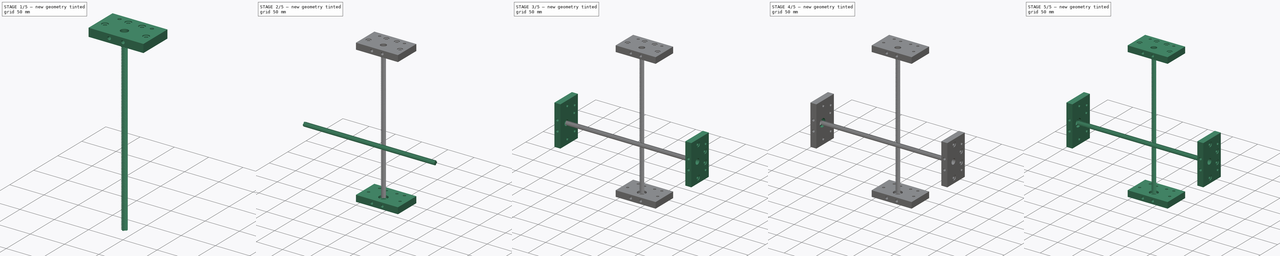
[diagram: build sequence overview — one tinted view per stage of 5, left to right]
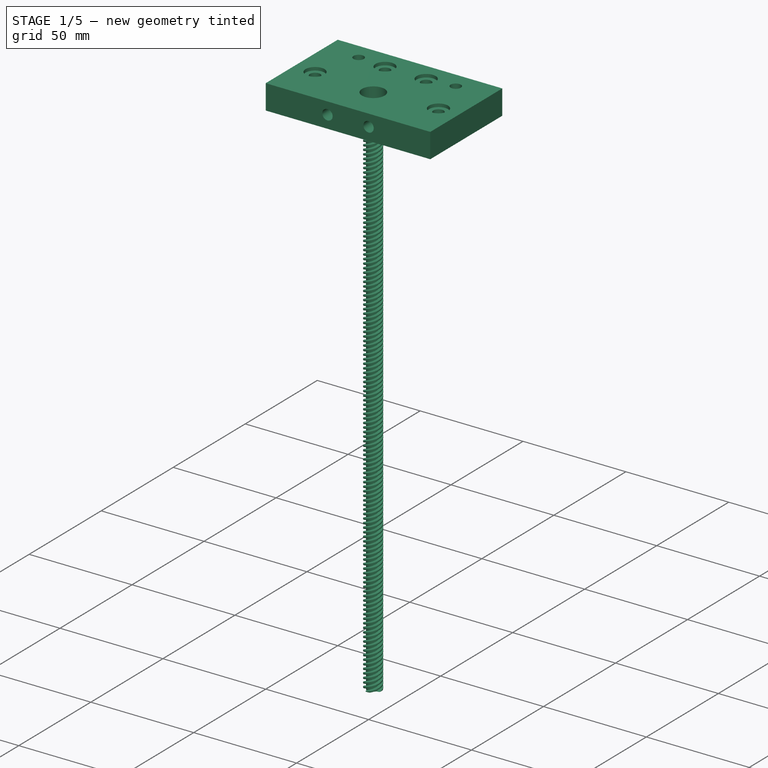
[diagram: stage 1 of 5 — iso view after this stage's code; geometry added in this stage tinted green]
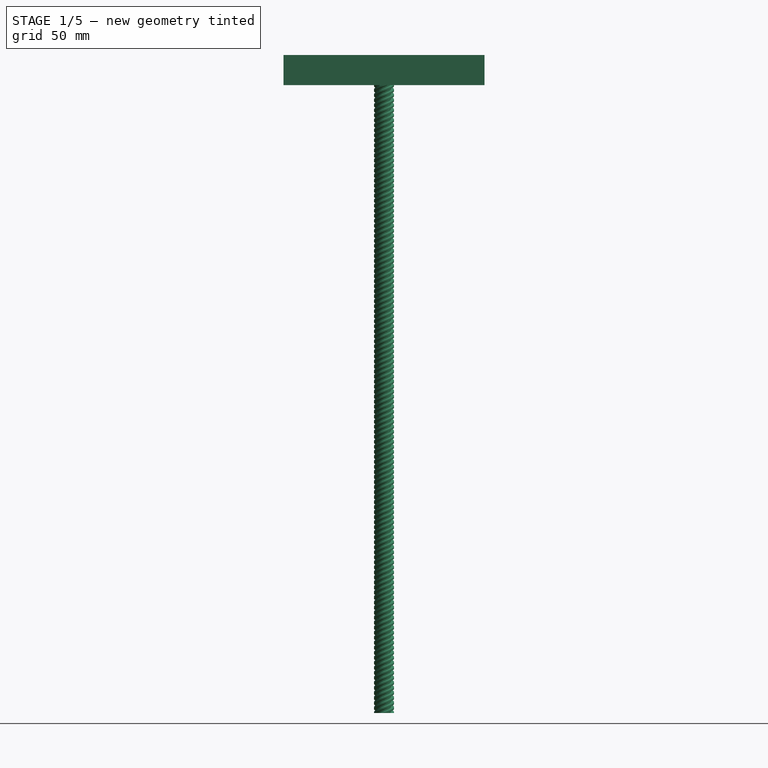
[diagram: stage 1 of 5 — front view after this stage's code; geometry added in this stage tinted green]
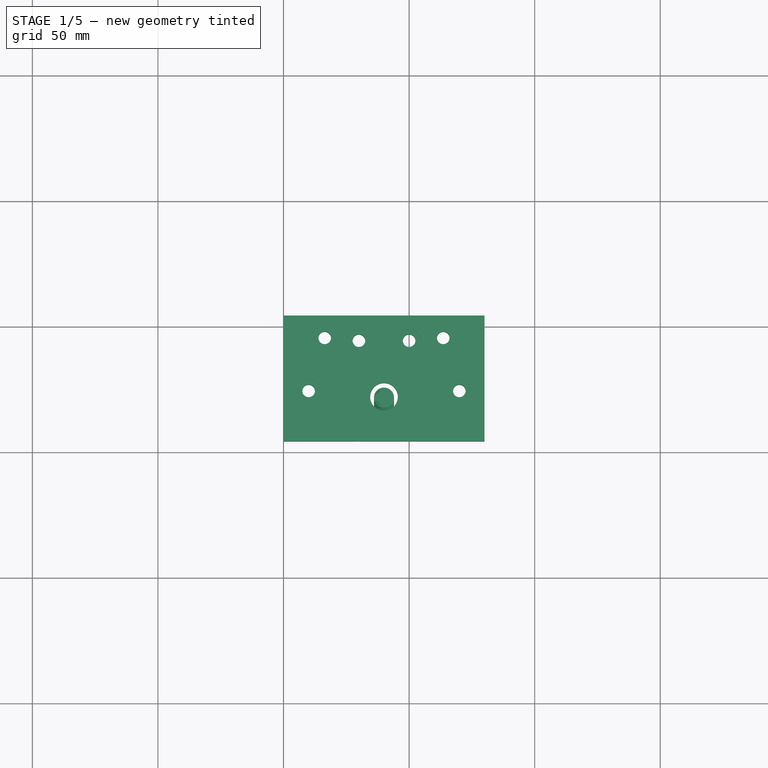
[diagram: stage 1 of 5 — top view after this stage's code; geometry added in this stage tinted green]
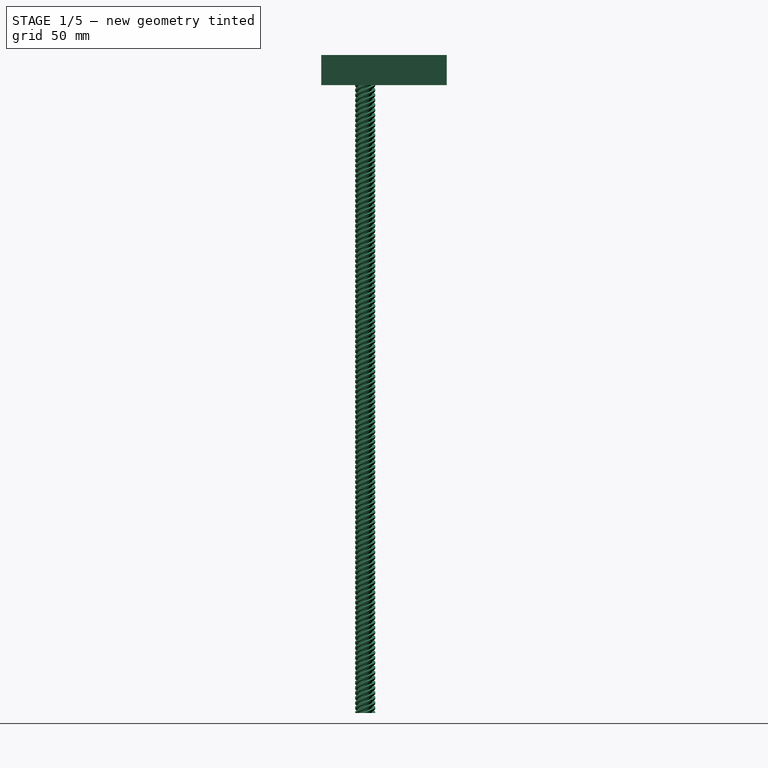
[diagram: stage 1 of 5 — right view after this stage's code; geometry added in this stage tinted green]
FCSTD DOCUMENT  (FreeCAD 0.15R4671 (Git))
Label: XY assembly
License: All rights reserved
LicenseURL: http://en.wikipedia.org/wiki/All_rights_reserved
objects: Part::Feature×129, Sketcher::SketchObject×27, App::DocumentObjectGroup×21, PartDesign::Pocket×18, PartDesign::Pad×6, Part::Extrusion×3, Part::Box×3, Part::Cut×3
note: 213 computed .brp shape members not serialized (recipe doc carries the construction recipe); baked Part::Feature solids carry a one-line shape summary decoded from their .brp

FEATURE [App::DocumentObjectGroup] Group015  label="endplate004"
  Group = -> [Pad004,Pocket012,Pocket013,Pocket014]
FEATURE [Sketcher::SketchObject] Sketch023
  Placement = pos=(0,0,262) rot=(1,0,0;3.14159rad)
  sketch-geometry (11):
    g0: LineSegment StartX=0 StartY=0 StartZ=0 EndX=80 EndY=0 EndZ=0
    g1: LineSegment StartX=80 StartY=0 StartZ=0 EndX=80 EndY=50 EndZ=0
    g2: LineSegment StartX=80 StartY=50 StartZ=0 EndX=0 EndY=50 EndZ=0
    g3: LineSegment StartX=0 StartY=50 StartZ=0 EndX=0 EndY=0 EndZ=0
    g4: Circle CenterX=10 CenterY=30 CenterZ=0 NormalX=0 NormalY=0 NormalZ=1 Radius=2.5
    g5: Circle CenterX=30 CenterY=10 CenterZ=0 NormalX=0 NormalY=0 NormalZ=1 Radius=2.5
    g6: Circle CenterX=16.4 CenterY=8.9 CenterZ=0 NormalX=0 NormalY=0 NormalZ=1 Radius=2.5
    g7: Circle CenterX=50 CenterY=10 CenterZ=0 NormalX=0 NormalY=0 NormalZ=1 Radius=2.5
    g8: Circle CenterX=63.6 CenterY=8.9 CenterZ=0 NormalX=0 NormalY=0 NormalZ=1 Radius=2.5
    g9: Circle CenterX=70 CenterY=30 CenterZ=0 NormalX=0 NormalY=0 NormalZ=1 Radius=2.5
    g10: Circle CenterX=40 CenterY=32.4 CenterZ=0 NormalX=0 NormalY=0 NormalZ=1 Radius=5.5
  constraints (34):
    c: Coincident(g0,g1)
    c: Coincident(g1,g2)
    c: Coincident(g2,g3)
    c: Coincident(g3,g0)
    c: Horizontal(g0)
    c: Horizontal(g2)
    c: Vertical(g1)
    c: Vertical(g3)
    c: Coincident(g0,g-1)
    c: Radius(g4) = 2.5
    c: Radius(g9) = 2.5
    c: Radius(g8) = 2.5
    c: Radius(g7) = 2.5
    c: Radius(g5) = 2.5
    c: Radius(g6) = 2.5
    c: Radius(g10) = 5.5
    c: Equal(g0,g2)
    c: Equal(g3,g1)
    c: DistanceX(g2) = -80
    c: DistanceY(g3) = -50
    c: DistanceX(g1,g9) = -10
    c: DistanceY(g8,g0) = -8.9
    c: DistanceX(g8,g0) = 16.4
    c: DistanceX(g7,g0) = 30
    c: DistanceY(g7,g0) = -10
    c: DistanceX(g-1,g5) = 30
    c: DistanceY(g-1,g5) = 10
    c: DistanceY(g-1,g6) = 8.9
    c: DistanceX(g-1,g6) = 16.4
    c: DistanceX(g10,g2) = -40
    c: DistanceY(g10,g2) = 17.6
    c: DistanceY(g9,g0) = -30
    c: DistanceY(g-1,g4) = 30
    c: DistanceX(g-1,g4) = 10
FEATURE [PartDesign::Pad] Pad005
  Length = 12
  Length2 = 100
  Placement = pos=(0,0,262) rot=(1,0,0;3.14159rad)
  Sketch = -> Sketch023
  Type = 0
FEATURE [Sketcher::SketchObject] Sketch024
  Placement = pos=(0,-50,262) rot=(0,-0.707107,0.707107;3.14159rad)
  Support = -> Pad005 [Face3]
  sketch-geometry (2):
    g0: Circle CenterX=-30.0338 CenterY=5.85009 CenterZ=0 NormalX=0 NormalY=0 NormalZ=1 Radius=2.5
    g1: Circle CenterX=-50.0038 CenterY=5.78884 CenterZ=0 NormalX=0 NormalY=0 NormalZ=1 Radius=2.5
  constraints (2):
    c: Radius(g0) = 2.5
    c: Radius(g1) = 2.5
FEATURE [PartDesign::Pocket] Pocket015
  Length = 11
  Placement = pos=(0,0,262) rot=(1,0,0;3.14159rad)
  Sketch = -> Sketch024
  Type = 0
FEATURE [Sketcher::SketchObject] Sketch025
  Placement = pos=(0,0,250) rot=(1,0,0;3.14159rad)
  Support = -> Pocket015 [Face5]
  sketch-geometry (1):
    g0: Circle CenterX=40 CenterY=32.4 CenterZ=0 NormalX=0 NormalY=0 NormalZ=1 Radius=8.05
  constraints (3):
    c: Radius(g0) = 8.05
    c: DistanceY(g-1,g0) = 32.4
    c: DistanceX(g-1,g0) = 40
FEATURE [PartDesign::Pocket] Pocket016
  Length = 4.5
  Placement = pos=(0,0,262) rot=(1,0,0;3.14159rad)
  Sketch = -> Sketch025
  Type = 0
FEATURE [Sketcher::SketchObject] Sketch026
  Placement = pos=(0,0,262) rot=(0,0,1;0rad)
  Support = -> Pocket016 [Face4]
  sketch-geometry (4):
    g0: Circle CenterX=10 CenterY=-30 CenterZ=0 NormalX=0 NormalY=0 NormalZ=1 Radius=4.6
    g1: Circle CenterX=70 CenterY=-30 CenterZ=0 NormalX=0 NormalY=0 NormalZ=1 Radius=4.62459
    g2: Circle CenterX=30 CenterY=-10 CenterZ=0 NormalX=0 NormalY=0 NormalZ=1 Radius=4.58345
    g3: Circle CenterX=50 CenterY=-10 CenterZ=0 NormalX=0 NormalY=0 NormalZ=1 Radius=4.6246
  constraints (9):
    c: Radius(g0) = 4.6
    c: DistanceX(g-1,g2) = 30
    c: DistanceY(g-1,g2) = -10
    c: DistanceX(g-1,g3) = 50
    c: DistanceY(g-1,g3) = -10
    c: DistanceY(g-1,g0) = -30
    c: DistanceX(g-1,g0) = 10
    c: DistanceY(g-1,g1) = -30
    c: DistanceX(g-1,g1) = 70
FEATURE [PartDesign::Pocket] Pocket017
  Length = 1.55
  Placement = pos=(0,0,262) rot=(1,0,0;3.14159rad)
  Sketch = -> Sketch026
  Type = 0
FEATURE [App::DocumentObjectGroup] Group016  label="endplate005"
  Group = -> [Pad005,Pocket015,Pocket016,Pocket017]
FEATURE [Part::Feature] Part__Feature087  label="gantry assem v035"
  Placement = pos=(39.3463,-41.8643,117.223) rot=(0.57735,0.57735,-0.57735;2.0944rad)
  shape: bbox 77.52 x 6 x 77.51 mm, 60 faces (baked)
FEATURE [Part::Feature] Part__Feature088  label="gantry assem v036"
  Placement = pos=(53.5968,-41.8643,147.273) rot=(0.707107,0.707107,0;3.14159rad)
  shape: bbox 9.087 x 7.62 x 7.901 mm, 13 faces (baked)
FEATURE [Part::Feature] Part__Feature089  label="gantry assem v037"
  Placement = pos=(25.0968,-35.5143,87.2732) rot=(-0.458392,0.458392,-0.761416;1.84006rad)
  shape: bbox 8 x 6.35 x 8 mm, 4 faces (baked)
FEATURE [Part::Feature] Part__Feature090  label="gantry assem v038"
  Placement = pos=(53.5968,-41.8643,87.2732) rot=(0.707107,0.707107,0;3.14159rad)
  shape: bbox 9.087 x 7.62 x 7.901 mm, 13 faces (baked)
FEATURE [Part::Feature] Part__Feature091  label="gantry assem v039"
  Placement = pos=(25.0968,-35.5143,147.273) rot=(-0.458392,0.458392,-0.761416;1.84006rad)
  shape: bbox 8 x 6.35 x 8 mm, 4 faces (baked)
FEATURE [Part::Feature] Part__Feature092  label="gantry assem v040"
  Placement = pos=(25.0968,-48.1143,87.2732) rot=(0.706645,0.706645,-0.036122;3.2138rad)
  shape: bbox 9.5 x 27.17 x 9.5 mm, 18 faces (baked)
FEATURE [Part::Feature] Part__Feature093  label="gantry assem v041"
  Placement = pos=(53.5968,-48.1143,86.4832) rot=(0.706645,0.706645,-0.036122;3.2138rad)
  shape: bbox 9.5 x 27.17 x 9.5 mm, 18 faces (baked)
FEATURE [Part::Feature] Part__Feature094  label="gantry assem v042"
  Placement = pos=(53.5968,-48.1143,146.483) rot=(0.706645,0.706645,-0.036122;3.2138rad)
  shape: bbox 9.5 x 27.17 x 9.5 mm, 18 faces (baked)
FEATURE [Part::Feature] Part__Feature095  label="gantry assem v043"
  Placement = pos=(25.0968,-48.1143,147.273) rot=(0.704114,0.704114,0.09191;2.95829rad)
  shape: bbox 9.5 x 27.17 x 9.5 mm, 18 faces (baked)
FEATURE [Part::Feature] Part__Feature096  label="gantry assem v044"
  Placement = pos=(53.5968,-26.1143,146.483) rot=(0.427043,0.639388,0.639388;3.94879rad)
  shape: bbox 6 x 0.36 x 6 mm, 4 faces (baked)
FEATURE [Part::Feature] Part__Feature097  label="gantry assem v045"
  Placement = pos=(53.5968,-26.1143,146.483) rot=(0.427043,0.639388,0.639388;3.94879rad)
  shape: bbox 8.171 x 4.5 x 8.745 mm, 63 faces (baked)
FEATURE [Part::Feature] Part__Feature098  label="gantry assem v046"
  Placement = pos=(25.0968,-26.1143,87.2732) rot=(0.427043,0.639388,0.639388;3.94879rad)
  shape: bbox 6 x 0.36 x 6 mm, 4 faces (baked)
FEATURE [Part::Feature] Part__Feature099  label="gantry assem v047"
  Placement = pos=(25.0968,-26.1143,87.2732) rot=(0.427043,0.639388,0.639388;3.94879rad)
  shape: bbox 8.171 x 4.5 x 8.745 mm, 63 faces (baked)
FEATURE [Part::Feature] Part__Feature100  label="gantry assem v048"
  Placement = pos=(53.5968,-26.1143,86.4832) rot=(0.427043,0.639388,0.639388;3.94879rad)
  shape: bbox 6 x 0.36 x 6 mm, 4 faces (baked)
FEATURE [Part::Feature] Part__Feature101  label="gantry assem v049"
  Placement = pos=(53.5968,-26.1143,86.4832) rot=(0.427043,0.639388,0.639388;3.94879rad)
  shape: bbox 8.171 x 4.5 x 8.745 mm, 63 faces (baked)
FEATURE [Part::Feature] Part__Feature102  label="gantry assem v050"
  Placement = pos=(25.0968,-26.1143,147.273) rot=(0.427043,0.639388,0.639388;3.94879rad)
  shape: bbox 6 x 0.36 x 6 mm, 4 faces (baked)
FEATURE [Part::Feature] Part__Feature103  label="gantry assem v051"
  Placement = pos=(25.0968,-26.1143,147.273) rot=(0.427043,0.639388,0.639388;3.94879rad)
  shape: bbox 8.171 x 4.5 x 8.745 mm, 63 faces (baked)
FEATURE [Part::Feature] Part__Feature104  label="MINI WHEEL ASSEM032"
  Placement = pos=(25.0968,-30.8143,87.2732) rot=(0.57735,0.57735,-0.57735;2.0944rad)
  shape: bbox 15.23 x 8.8 x 15.23 mm, 12 faces (baked)
FEATURE [Part::Feature] Part__Feature105  label="MINI WHEEL ASSEM033"
  Placement = pos=(25.0968,-30.3143,87.2732) rot=(0,0,-1;1.5708rad)
  shape: bbox 8 x 1 x 8 mm, 4 faces (baked)
FEATURE [Part::Feature] Part__Feature106  label="MINI WHEEL ASSEM034"
  Placement = pos=(25.0968,-28.2143,87.2732) rot=(0,0,-1;1.5708rad)
  shape: bbox 10 x 4.2 x 10 mm, 15 faces (baked)
FEATURE [Part::Feature] Part__Feature107  label="MINI WHEEL ASSEM035"
  Placement = pos=(25.0968,-33.4143,87.2732) rot=(0.7002,0.7002,0.139423;2.86453rad)
  shape: bbox 10 x 4.2 x 10 mm, 15 faces (baked)
FEATURE [Part::Feature] Part__Feature108  label="MINI WHEEL ASSEM036"
  Placement = pos=(53.5968,-30.8143,86.4832) rot=(0.57735,0.57735,-0.57735;2.0944rad)
  shape: bbox 15.23 x 8.8 x 15.23 mm, 12 faces (baked)
FEATURE [Part::Feature] Part__Feature109  label="MINI WHEEL ASSEM037"
  Placement = pos=(53.5968,-30.3143,86.4832) rot=(0,0,-1;1.5708rad)
  shape: bbox 8 x 1 x 8 mm, 4 faces (baked)
FEATURE [Part::Feature] Part__Feature110  label="MINI WHEEL ASSEM038"
  Placement = pos=(53.5968,-28.2143,86.4832) rot=(0,0,-1;1.5708rad)
  shape: bbox 10 x 4.2 x 10 mm, 15 faces (baked)
FEATURE [Part::Feature] Part__Feature111  label="MINI WHEEL ASSEM039"
  Placement = pos=(53.5968,-33.4143,86.4832) rot=(0.7002,0.7002,0.139423;2.86453rad)
  shape: bbox 10 x 4.2 x 10 mm, 15 faces (baked)
FEATURE [Part::Feature] Part__Feature112  label="MINI WHEEL ASSEM040"
  Placement = pos=(25.0968,-30.8143,147.273) rot=(0.57735,0.57735,-0.57735;2.0944rad)
  shape: bbox 15.23 x 8.8 x 15.23 mm, 12 faces (baked)
FEATURE [Part::Feature] Part__Feature113  label="MINI WHEEL ASSEM041"
  Placement = pos=(25.0968,-30.3143,147.273) rot=(0,0,-1;1.5708rad)
  shape: bbox 8 x 1 x 8 mm, 4 faces (baked)
FEATURE [Part::Feature] Part__Feature114  label="MINI WHEEL ASSEM042"
  Placement = pos=(25.0968,-28.2143,147.273) rot=(0,0,-1;1.5708rad)
  shape: bbox 10 x 4.2 x 10 mm, 15 faces (baked)
FEATURE [Part::Feature] Part__Feature115  label="MINI WHEEL ASSEM043"
  Placement = pos=(25.0968,-33.4143,147.273) rot=(0.7002,0.7002,0.139423;2.86453rad)
  shape: bbox 10 x 4.2 x 10 mm, 15 faces (baked)
FEATURE [Part::Feature] Part__Feature116  label="MINI WHEEL ASSEM044"
  Placement = pos=(53.5968,-30.8143,146.483) rot=(0.57735,0.57735,-0.57735;2.0944rad)
  shape: bbox 15.23 x 8.8 x 15.23 mm, 12 faces (baked)
FEATURE [Part::Feature] Part__Feature117  label="MINI WHEEL ASSEM045"
  Placement = pos=(53.5968,-30.3143,146.483) rot=(0,0,-1;1.5708rad)
  shape: bbox 8 x 1 x 8 mm, 4 faces (baked)
FEATURE [Part::Feature] Part__Feature118  label="MINI WHEEL ASSEM046"
  Placement = pos=(53.5968,-28.2143,146.483) rot=(0,0,-1;1.5708rad)
  shape: bbox 10 x 4.2 x 10 mm, 15 faces (baked)
FEATURE [Part::Feature] Part__Feature119  label="MINI WHEEL ASSEM047"
  Placement = pos=(53.5968,-33.4143,146.483) rot=(0.7002,0.7002,0.139423;2.86453rad)
  shape: bbox 10 x 4.2 x 10 mm, 15 faces (baked)
FEATURE [App::DocumentObjectGroup] Group017  label="gantry assembly002"
  Group = -> [Part__Feature087,Part__Feature088,Part__Feature089,Part__Feature090,Part__Feature091,Part__Feature092,Part__Feature093,Part__Feature094,Part__Feature095,Part__Feature096,Part__Feature097,Part__Feature098,Part__Feature099,Part__Feature100,Part__Feature101,Part__Feature102,Part__Feature103,Part__Feature104,Part__Feature105,Part__Feature106,Part__Feature107,Part__Feature108,Part__Feature109,+10 more]
FEATURE [Part::Feature] Part__Feature120  label="1.5 inch Aluminum Spacer004"
  Placement = pos=(63,-7,-12) rot=(0,1,0;1.5708rad)
  shape: bbox 8 x 8 x 38.1 mm, 6 faces (baked)
FEATURE [Part::Feature] Part__Feature121  label="1.5 inch Aluminum Spacer005"
  Placement = pos=(15,-7,-12) rot=(0,1,0;1.5708rad)
  shape: bbox 8 x 8 x 38.1 mm, 6 faces (baked)
FEATURE [Part::Feature] Part__Feature122  label="5mm x 8mm Flexible Coupling014"
  Placement = pos=(40,-32,-15) rot=(0,0,1;0rad)
  shape: bbox 24 x 23.97 x 3.49 mm, 14 faces (baked)
FEATURE [Part::Feature] Part__Feature123  label="5mm x 8mm Flexible Coupling015"
  Placement = pos=(40,-32,-15) rot=(0,0,1;0rad)
  shape: bbox 24 x 23.97 x 3.49 mm, 10 faces (baked)
FEATURE [Part::Feature] Part__Feature124  label="5mm x 8mm Flexible Coupling016"
  Placement = pos=(40,-32,-15) rot=(0,0,1;0rad)
  shape: bbox 24 x 23.97 x 3.49 mm, 10 faces (baked)
FEATURE [Part::Feature] Part__Feature125  label="5mm x 8mm Flexible Coupling017"
  Placement = pos=(40,-32,-15) rot=(0,0,1;0rad)
  shape: bbox 24 x 23.96 x 3.67 mm, 10 faces (baked)
FEATURE [Part::Feature] Part__Feature126  label="5mm x 8mm Flexible Coupling018"
  Placement = pos=(40,-32,-15) rot=(0,0,1;0rad)
  shape: bbox 24 x 23.97 x 9.007 mm, 31 faces (baked)
FEATURE [Part::Feature] Part__Feature127  label="5mm x 8mm Flexible Coupling019"
  Placement = pos=(40,-32,-15) rot=(0,0,1;0rad)
  shape: bbox 24 x 23.96 x 10.64 mm, 31 faces (baked)
FEATURE [App::DocumentObjectGroup] Group018  label="5mm x 8mm Flexible Coupling020"
  Group = -> [Part__Feature122,Part__Feature123,Part__Feature124,Part__Feature125,Part__Feature126,Part__Feature127]
FEATURE [Part::Feature] Part__Feature128  label="Nema23Motor_part002"
  Placement = pos=(-1132,-90,-150) rot=(-1,0,0;1.5708rad)
  shape: bbox 61.91 x 61.91 x 75.2 mm, 24 faces (baked)
FEATURE [Part::Feature] Part__Feature129  label="8mm TR8_8 Leadscrew003"
  Placement = pos=(41,-34,1000) rot=(0,0,1;0rad)
  shape: bbox 8.1 x 8.1 x 1001 mm, 1020 faces (baked)
FEATURE [Part::Box] Box002  label="Cube002"
  Height = 750
  Length = 10
  Placement = pos=(36,-39,0) rot=(0,0,1;0rad)
  Width = 10
FEATURE [Part::Cut] Cut002
  Base = -> Part__Feature129
  Placement = pos=(-1,1.5,-750) rot=(0,0,1;0rad)
  Tool = -> Box002
FEATURE [App::DocumentObjectGroup] Group019  label="8mm TR8_8 Leadscrew 250mm long002"
  Group = -> [Cut002]
FEATURE [App::DocumentObjectGroup] Group020  label="Z axis linear motor"
  Group = -> [Group014,Group015,Group016,Group017,Part__Feature120,Part__Feature121,Group018,Part__Feature128,Group019]
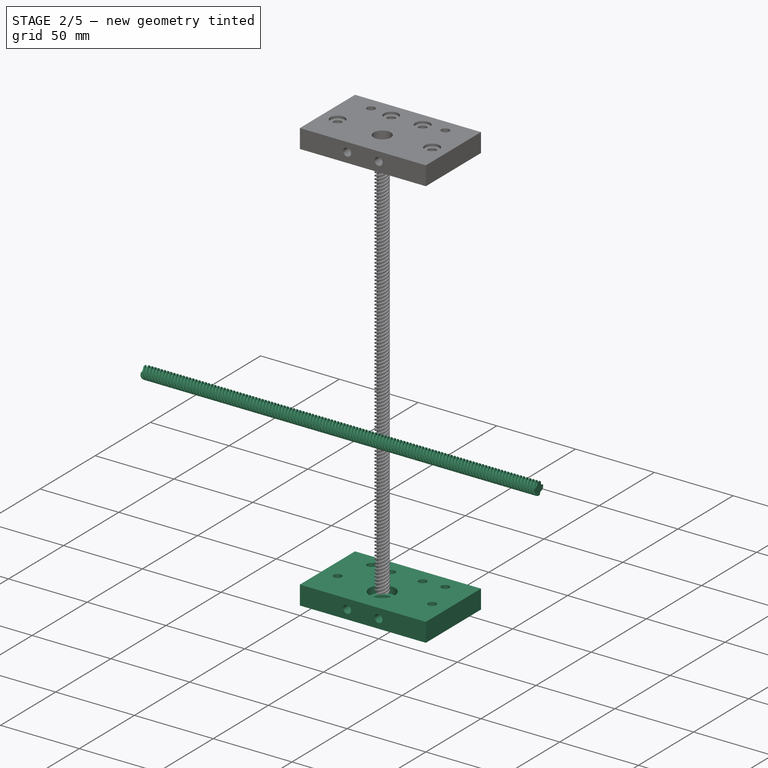
[diagram: stage 2 of 5 — iso view after this stage's code; geometry added in this stage tinted green]
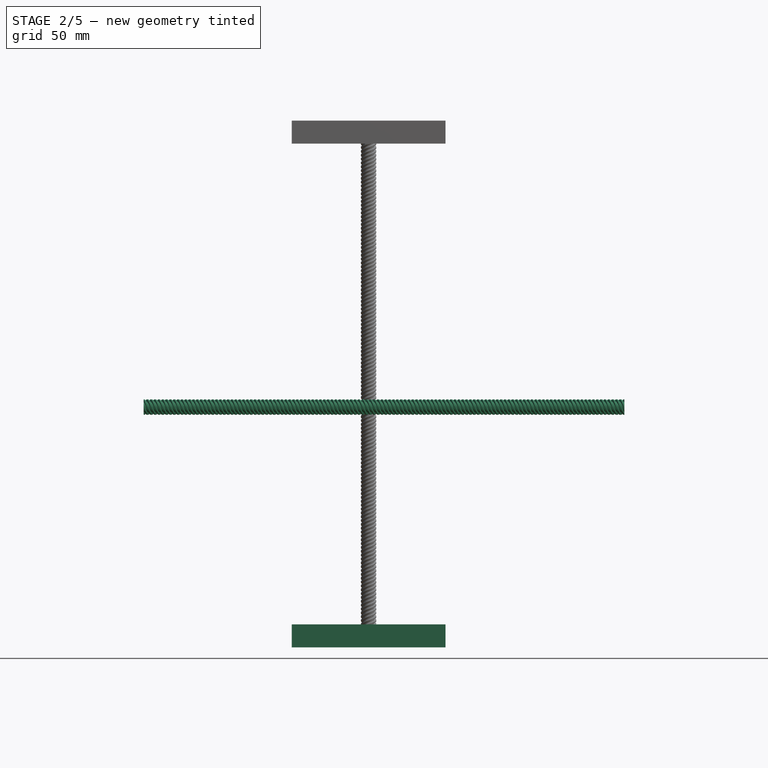
[diagram: stage 2 of 5 — front view after this stage's code; geometry added in this stage tinted green]
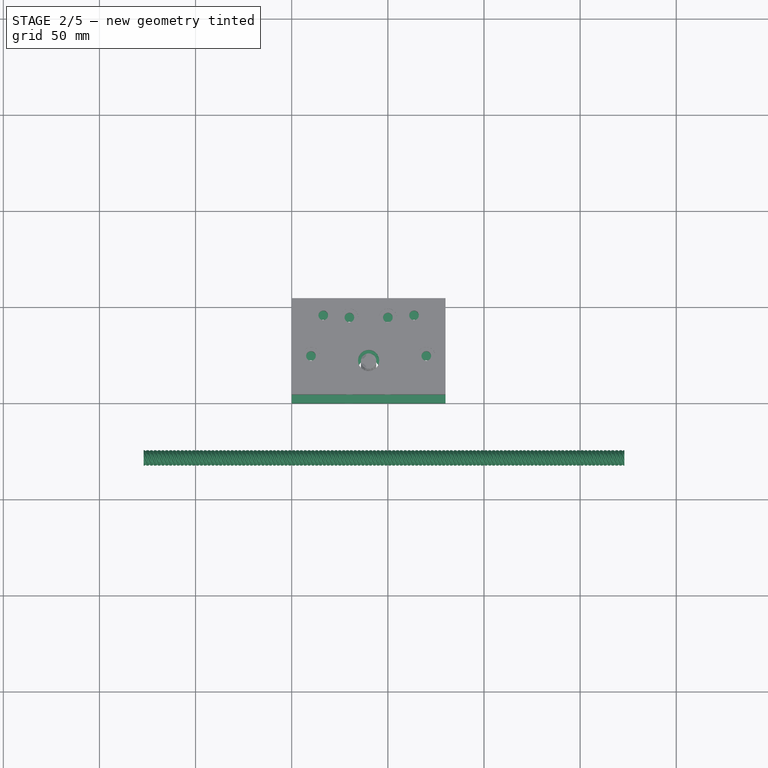
[diagram: stage 2 of 5 — top view after this stage's code; geometry added in this stage tinted green]
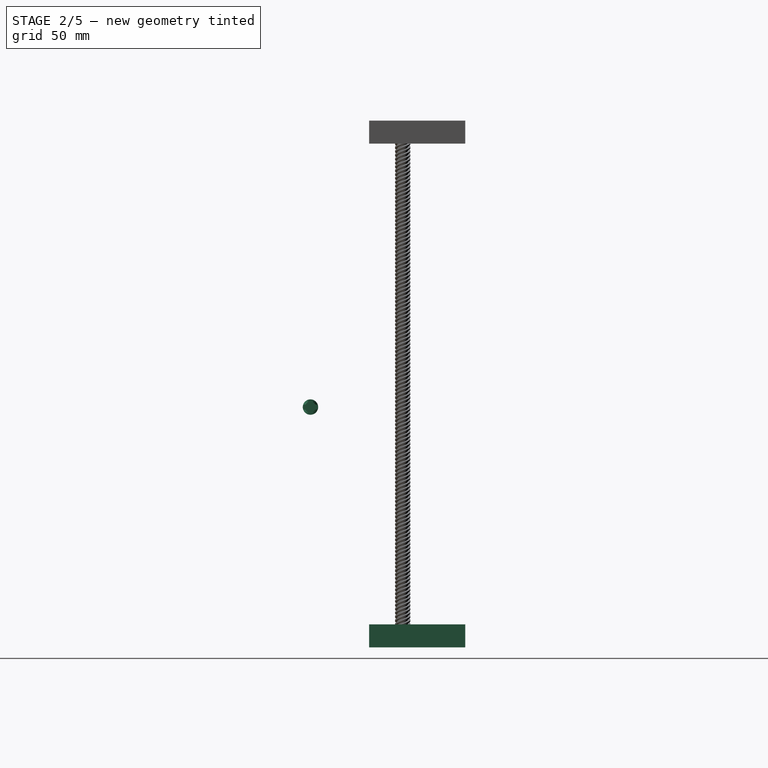
[diagram: stage 2 of 5 — right view after this stage's code; geometry added in this stage tinted green]
FEATURE [App::DocumentObjectGroup] Group009  label="endplate003"
  Group = -> [Pad003,Pocket009,Pocket010,Pocket011]
FEATURE [Part::Feature] Part__Feature044  label="gantry assem v018"
  Placement = pos=(40.2232,-89.8643,113.654) rot=(0,0.707107,-0.707107;3.14159rad)
  shape: bbox 77.51 x 6 x 77.52 mm, 60 faces (baked)
FEATURE [Part::Feature] Part__Feature045  label="gantry assem v019"
  Placement = pos=(70.2732,-89.8643,99.4032) rot=(0.57735,0.57735,-0.57735;4.18879rad)
  shape: bbox 7.901 x 7.62 x 9.087 mm, 13 faces (baked)
FEATURE [Part::Feature] Part__Feature046  label="gantry assem v020"
  Placement = pos=(10.2732,-83.5143,127.903) rot=(-0.696444,0.696444,-0.17301;2.79896rad)
  shape: bbox 8 x 6.35 x 8 mm, 4 faces (baked)
FEATURE [Part::Feature] Part__Feature047  label="gantry assem v021"
  Placement = pos=(10.2732,-89.8643,99.4032) rot=(0.57735,0.57735,-0.57735;4.18879rad)
  shape: bbox 7.901 x 7.62 x 9.087 mm, 13 faces (baked)
FEATURE [Part::Feature] Part__Feature048  label="gantry assem v022"
  Placement = pos=(70.2732,-83.5143,127.903) rot=(-0.696444,0.696444,-0.17301;2.79896rad)
  shape: bbox 8 x 6.35 x 8 mm, 4 faces (baked)
FEATURE [Part::Feature] Part__Feature049  label="gantry assem v023"
  Placement = pos=(10.2732,-96.1143,127.903) rot=(0.556666,0.556666,-0.616642;4.24672rad)
  shape: bbox 9.5 x 27.17 x 9.5 mm, 18 faces (baked)
FEATURE [Part::Feature] Part__Feature050  label="gantry assem v024"
  Placement = pos=(9.48317,-96.1143,99.4032) rot=(0.556666,0.556666,-0.616642;4.24672rad)
  shape: bbox 9.5 x 27.17 x 9.5 mm, 18 faces (baked)
FEATURE [Part::Feature] Part__Feature051  label="gantry assem v025"
  Placement = pos=(69.4832,-96.1143,99.4032) rot=(0.556666,0.556666,-0.616642;4.24672rad)
  shape: bbox 9.5 x 27.17 x 9.5 mm, 18 faces (baked)
FEATURE [Part::Feature] Part__Feature052  label="gantry assem v026"
  Placement = pos=(70.2732,-96.1143,127.903) rot=(0.621193,0.621193,-0.477744;4.03296rad)
  shape: bbox 9.5 x 27.17 x 9.5 mm, 18 faces (baked)
FEATURE [Part::Feature] Part__Feature053  label="gantry assem v027"
  Placement = pos=(69.4832,-74.1143,99.4032) rot=(0.962564,0.191664,0.191664;4.67424rad)
  shape: bbox 6 x 0.36 x 6 mm, 4 faces (baked)
FEATURE [Part::Feature] Part__Feature054  label="gantry assem v028"
  Placement = pos=(69.4832,-74.1143,99.4032) rot=(0.962564,0.191664,0.191664;4.67424rad)
  shape: bbox 8.745 x 4.5 x 8.171 mm, 63 faces (baked)
FEATURE [Part::Feature] Part__Feature055  label="gantry assem v029"
  Placement = pos=(10.2732,-74.1143,127.903) rot=(0.962564,0.191664,0.191664;4.67424rad)
  shape: bbox 6 x 0.36 x 6 mm, 4 faces (baked)
FEATURE [Part::Feature] Part__Feature056  label="gantry assem v030"
  Placement = pos=(10.2732,-74.1143,127.903) rot=(0.962564,0.191664,0.191664;4.67424rad)
  shape: bbox 8.745 x 4.5 x 8.171 mm, 63 faces (baked)
FEATURE [Part::Feature] Part__Feature057  label="gantry assem v031"
  Placement = pos=(9.48317,-74.1143,99.4032) rot=(0.962564,0.191664,0.191664;4.67424rad)
  shape: bbox 6 x 0.36 x 6 mm, 4 faces (baked)
FEATURE [Part::Feature] Part__Feature058  label="gantry assem v032"
  Placement = pos=(9.48317,-74.1143,99.4032) rot=(0.962564,0.191664,0.191664;4.67424rad)
  shape: bbox 8.745 x 4.5 x 8.171 mm, 63 faces (baked)
FEATURE [Part::Feature] Part__Feature059  label="gantry assem v033"
  Placement = pos=(70.2732,-74.1143,127.903) rot=(0.962564,0.191664,0.191664;4.67424rad)
  shape: bbox 6 x 0.36 x 6 mm, 4 faces (baked)
FEATURE [Part::Feature] Part__Feature060  label="gantry assem v034"
  Placement = pos=(70.2732,-74.1143,127.903) rot=(0.962564,0.191664,0.191664;4.67424rad)
  shape: bbox 8.745 x 4.5 x 8.171 mm, 63 faces (baked)
FEATURE [Part::Feature] Part__Feature061  label="MINI WHEEL ASSEM016"
  Placement = pos=(10.2732,-78.8143,127.903) rot=(0,0.707107,-0.707107;3.14159rad)
  shape: bbox 15.23 x 8.8 x 15.23 mm, 12 faces (baked)
FEATURE [Part::Feature] Part__Feature062  label="MINI WHEEL ASSEM017"
  Placement = pos=(10.2732,-78.3143,127.903) rot=(-0.57735,0.57735,-0.57735;2.0944rad)
  shape: bbox 8 x 1 x 8 mm, 4 faces (baked)
FEATURE [Part::Feature] Part__Feature063  label="MINI WHEEL ASSEM018"
  Placement = pos=(10.2732,-76.2143,127.903) rot=(-0.57735,0.57735,-0.57735;2.0944rad)
  shape: bbox 10 x 4.2 x 10 mm, 15 faces (baked)
FEATURE [Part::Feature] Part__Feature064  label="MINI WHEEL ASSEM019"
  Placement = pos=(10.2732,-81.4143,127.903) rot=(0.639388,0.639388,-0.427043;3.94879rad)
  shape: bbox 10 x 4.2 x 10 mm, 15 faces (baked)
FEATURE [Part::Feature] Part__Feature065  label="MINI WHEEL ASSEM020"
  Placement = pos=(9.48317,-78.8143,99.4032) rot=(0,0.707107,-0.707107;3.14159rad)
  shape: bbox 15.23 x 8.8 x 15.23 mm, 12 faces (baked)
FEATURE [Part::Feature] Part__Feature066  label="MINI WHEEL ASSEM021"
  Placement = pos=(9.48317,-78.3143,99.4032) rot=(-0.57735,0.57735,-0.57735;2.0944rad)
  shape: bbox 8 x 1 x 8 mm, 4 faces (baked)
FEATURE [Part::Feature] Part__Feature067  label="MINI WHEEL ASSEM022"
  Placement = pos=(9.48317,-76.2143,99.4032) rot=(-0.57735,0.57735,-0.57735;2.0944rad)
  shape: bbox 10 x 4.2 x 10 mm, 15 faces (baked)
FEATURE [Part::Feature] Part__Feature068  label="MINI WHEEL ASSEM023"
  Placement = pos=(9.48317,-81.4143,99.4032) rot=(0.639388,0.639388,-0.427043;3.94879rad)
  shape: bbox 10 x 4.2 x 10 mm, 15 faces (baked)
FEATURE [Part::Feature] Part__Feature069  label="MINI WHEEL ASSEM024"
  Placement = pos=(70.2732,-78.8143,127.903) rot=(0,0.707107,-0.707107;3.14159rad)
  shape: bbox 15.23 x 8.8 x 15.23 mm, 12 faces (baked)
FEATURE [Part::Feature] Part__Feature070  label="MINI WHEEL ASSEM025"
  Placement = pos=(70.2732,-78.3143,127.903) rot=(-0.57735,0.57735,-0.57735;2.0944rad)
  shape: bbox 8 x 1 x 8 mm, 4 faces (baked)
FEATURE [Part::Feature] Part__Feature071  label="MINI WHEEL ASSEM026"
  Placement = pos=(70.2732,-76.2143,127.903) rot=(-0.57735,0.57735,-0.57735;2.0944rad)
  shape: bbox 10 x 4.2 x 10 mm, 15 faces (baked)
FEATURE [Part::Feature] Part__Feature072  label="MINI WHEEL ASSEM027"
  Placement = pos=(70.2732,-81.4143,127.903) rot=(0.639388,0.639388,-0.427043;3.94879rad)
  shape: bbox 10 x 4.2 x 10 mm, 15 faces (baked)
FEATURE [Part::Feature] Part__Feature073  label="MINI WHEEL ASSEM028"
  Placement = pos=(69.4832,-78.8143,99.4032) rot=(0,0.707107,-0.707107;3.14159rad)
  shape: bbox 15.23 x 8.8 x 15.23 mm, 12 faces (baked)
FEATURE [Part::Feature] Part__Feature074  label="MINI WHEEL ASSEM029"
  Placement = pos=(69.4832,-78.3143,99.4032) rot=(-0.57735,0.57735,-0.57735;2.0944rad)
  shape: bbox 8 x 1 x 8 mm, 4 faces (baked)
FEATURE [Part::Feature] Part__Feature075  label="MINI WHEEL ASSEM030"
  Placement = pos=(69.4832,-76.2143,99.4032) rot=(-0.57735,0.57735,-0.57735;2.0944rad)
  shape: bbox 10 x 4.2 x 10 mm, 15 faces (baked)
FEATURE [Part::Feature] Part__Feature076  label="MINI WHEEL ASSEM031"
  Placement = pos=(69.4832,-81.4143,99.4032) rot=(0.639388,0.639388,-0.427043;3.94879rad)
  shape: bbox 10 x 4.2 x 10 mm, 15 faces (baked)
FEATURE [App::DocumentObjectGroup] Group010  label="gantry assembly001"
  Group = -> [Part__Feature044,Part__Feature045,Part__Feature046,Part__Feature047,Part__Feature048,Part__Feature049,Part__Feature050,Part__Feature051,Part__Feature052,Part__Feature053,Part__Feature054,Part__Feature055,Part__Feature056,Part__Feature057,Part__Feature058,Part__Feature059,Part__Feature060,Part__Feature061,Part__Feature062,Part__Feature063,Part__Feature064,Part__Feature065,Part__Feature066,+10 more]
FEATURE [Part::Feature] Part__Feature077  label="1.5 inch Aluminum Spacer002"
  Placement = pos=(-89,-55,90) rot=(0,1,0;3.14159rad)
  shape: bbox 38.1 x 8 x 8 mm, 6 faces (baked)
FEATURE [Part::Feature] Part__Feature078  label="1.5 inch Aluminum Spacer003"
  Placement = pos=(-89,-55,138) rot=(0,1,0;3.14159rad)
  shape: bbox 38.1 x 8 x 8 mm, 6 faces (baked)
FEATURE [Part::Feature] Part__Feature079  label="5mm x 8mm Flexible Coupling007"
  Placement = pos=(-92,-80,113) rot=(0,1,0;1.5708rad)
  shape: bbox 3.49 x 23.97 x 24 mm, 14 faces (baked)
FEATURE [Part::Feature] Part__Feature080  label="5mm x 8mm Flexible Coupling008"
  Placement = pos=(-92,-80,113) rot=(0,1,0;1.5708rad)
  shape: bbox 3.49 x 23.97 x 24 mm, 10 faces (baked)
FEATURE [Part::Feature] Part__Feature081  label="5mm x 8mm Flexible Coupling009"
  Placement = pos=(-92,-80,113) rot=(0,1,0;1.5708rad)
  shape: bbox 3.49 x 23.97 x 24 mm, 10 faces (baked)
FEATURE [Part::Feature] Part__Feature082  label="5mm x 8mm Flexible Coupling010"
  Placement = pos=(-92,-80,113) rot=(0,1,0;1.5708rad)
  shape: bbox 3.67 x 23.96 x 24 mm, 10 faces (baked)
FEATURE [Part::Feature] Part__Feature083  label="5mm x 8mm Flexible Coupling011"
  Placement = pos=(-92,-80,113) rot=(0,1,0;1.5708rad)
  shape: bbox 9.007 x 23.97 x 24 mm, 31 faces (baked)
FEATURE [Part::Feature] Part__Feature084  label="5mm x 8mm Flexible Coupling012"
  Placement = pos=(-92,-80,113) rot=(0,1,0;1.5708rad)
  shape: bbox 10.64 x 23.96 x 24 mm, 31 faces (baked)
FEATURE [App::DocumentObjectGroup] Group011  label="5mm x 8mm Flexible Coupling013"
  Group = -> [Part__Feature079,Part__Feature080,Part__Feature081,Part__Feature082,Part__Feature083,Part__Feature084]
FEATURE [Part::Feature] Part__Feature085  label="Nema23Motor_part001"
  Placement = pos=(-227,-138,1285) rot=(-0.57735,0.57735,0.57735;2.0944rad)
  shape: bbox 75.2 x 61.91 x 61.91 mm, 24 faces (baked)
FEATURE [Part::Feature] Part__Feature086  label="8mm TR8_8 Leadscrew002"
  Placement = pos=(41,-34,1000) rot=(0,0,1;0rad)
  shape: bbox 8.1 x 8.1 x 1001 mm, 1020 faces (baked)
FEATURE [Part::Box] Box001  label="Cube001"
  Height = 750
  Length = 10
  Placement = pos=(36,-39,0) rot=(0,0,1;0rad)
  Width = 10
FEATURE [Part::Cut] Cut001
  Base = -> Part__Feature086
  Placement = pos=(-827,-46.5,154) rot=(0,1,0;1.5708rad)
  Tool = -> Box001
FEATURE [App::DocumentObjectGroup] Group012  label="8mm TR8_8 Leadscrew 250mm long001"
  Group = -> [Cut001]
FEATURE [App::DocumentObjectGroup] Group013  label="Y axis linear motor"
  Group = -> [Group007,Group008,Group009,Group010,Part__Feature077,Part__Feature078,Group011,Part__Feature085,Group012]
FEATURE [Sketcher::SketchObject] Sketch018
  sketch-geometry (252):
    g0: LineSegment StartX=57.3 StartY=-18.2 StartZ=0 EndX=57.3 EndY=-16.239 EndZ=0
    g1: LineSegment StartX=57.3 StartY=-16.239 StartZ=0 EndX=53.9 EndY=-12.839 EndZ=0
    g2: LineSegment StartX=53.9 StartY=-12.839 StartZ=0 EndX=53.9 EndY=-7.161 EndZ=0
    g3: LineSegment StartX=53.9 StartY=-7.161 StartZ=0 EndX=57.3 EndY=-3.761 EndZ=0
    g4: LineSegment StartX=57.3 StartY=-3.761 StartZ=0 EndX=57.3 EndY=-1.8 EndZ=0
    g5: LineSegment StartX=57.3 StartY=-1.8 StartZ=0 EndX=60 EndY=-1.8 EndZ=0
    g6: LineSegment StartX=60 StartY=-1.8 StartZ=0 EndX=62.7 EndY=-1.8 EndZ=0
    g7: LineSegment StartX=62.7 StartY=-1.8 StartZ=0 EndX=62.7 EndY=-3.761 EndZ=0
    g8: LineSegment StartX=62.7 StartY=-3.761 StartZ=0 EndX=66.1 EndY=-7.161 EndZ=0
    g9: LineSegment StartX=66.1 StartY=-7.161 StartZ=0 EndX=66.1 EndY=-12.839 EndZ=0
    g10: LineSegment StartX=66.1 StartY=-12.839 StartZ=0 EndX=60.6708 EndY=-18.2 EndZ=0
    g11: LineSegment StartX=60.6708 StartY=-18.2 StartZ=0 EndX=60 EndY=-18.2 EndZ=0
    g12: LineSegment StartX=60 StartY=-18.2 StartZ=0 EndX=57.3 EndY=-18.2 EndZ=0
    g13: LineSegment StartX=20 StartY=-18.2 StartZ=0 EndX=19.3292 EndY=-18.2 EndZ=0
    g14: LineSegment StartX=19.3292 StartY=-18.2 StartZ=0 EndX=13.9 EndY=-12.839 EndZ=0
    g15: LineSegment StartX=13.9 StartY=-12.839 StartZ=0 EndX=13.9 EndY=-7.161 EndZ=0
    g16: LineSegment StartX=13.9 StartY=-7.161 StartZ=0 EndX=17.3 EndY=-3.761 EndZ=0
    g17: LineSegment StartX=17.3 StartY=-3.761 StartZ=0 EndX=17.3 EndY=-1.8 EndZ=0
    g18: LineSegment StartX=17.3 StartY=-1.8 StartZ=0 EndX=20 EndY=-1.8 EndZ=0
    g19: LineSegment StartX=20 StartY=-1.8 StartZ=0 EndX=22.7 EndY=-1.8 EndZ=0
    g20: LineSegment StartX=22.7 StartY=-1.8 StartZ=0 EndX=22.7 EndY=-3.761 EndZ=0
    g21: LineSegment StartX=22.7 StartY=-3.761 StartZ=0 EndX=26.1 EndY=-7.161 EndZ=0
    g22: LineSegment StartX=26.1 StartY=-7.161 StartZ=0 EndX=26.1 EndY=-12.839 EndZ=0
    g23: LineSegment StartX=26.1 StartY=-12.839 StartZ=0 EndX=22.7 EndY=-16.239 EndZ=0
    g24: LineSegment StartX=22.7 StartY=-16.239 StartZ=0 EndX=22.7 EndY=-18.2 EndZ=0
    g25: LineSegment StartX=22.7 StartY=-18.2 StartZ=0 EndX=20 EndY=-18.2 EndZ=0
    g26: ArcOfCircle CenterX=1.5 CenterY=-1.5 CenterZ=0 NormalX=0 NormalY=0 NormalZ=1 Radius=1.5 StartAngle=1.5708 EndAngle=3.14159
    g27: LineSegment StartX=5.114 StartY=0 StartZ=0 EndX=1.5 EndY=0 EndZ=0
    g28: LineSegment StartX=0 StartY=-1.5 StartZ=0 EndX=0 EndY=-5.2509 EndZ=0
    g29: LineSegment StartX=0 StartY=-5.2509 StartZ=0 EndX=1.3621 EndY=-6.613 EndZ=0
    g30: LineSegment StartX=1.3621 StartY=-6.613 StartZ=0 EndX=1.6631 EndY=-6.613 EndZ=0
    g31: LineSegment StartX=1.6631 StartY=-6.613 StartZ=0 EndX=1.6631 EndY=-4.5 EndZ=0
    g32: LineSegment StartX=1.6631 StartY=-4.5 StartZ=0 EndX=3.3021 EndY=-4.5 EndZ=0
    g33: LineSegment StartX=3.3021 StartY=-4.5 StartZ=0 EndX=6.1 EndY=-7.2979 EndZ=0
    g34: LineSegment StartX=6.1 StartY=-7.2979 StartZ=0 EndX=6.1 EndY=-12.7021 EndZ=0
    g35: LineSegment StartX=6.1 StartY=-12.7021 StartZ=0 EndX=3.3021 EndY=-15.5 EndZ=0
    g36: LineSegment StartX=3.3021 StartY=-15.5 StartZ=0 EndX=1.6631 EndY=-15.5 EndZ=0
    g37: LineSegment StartX=1.6631 StartY=-15.5 StartZ=0 EndX=1.6631 EndY=-13.387 EndZ=0
    g38: LineSegment StartX=1.6631 StartY=-13.387 StartZ=0 EndX=1.3621 EndY=-13.387 EndZ=0
    g39: LineSegment StartX=1.3621 StartY=-13.387 StartZ=0 EndX=0 EndY=-14.7491 EndZ=0
    g40: LineSegment StartX=0 StartY=-14.7491 StartZ=0 EndX=0 EndY=-25.2509 EndZ=0
    g41: LineSegment StartX=0 StartY=-25.2509 StartZ=0 EndX=1.3621 EndY=-26.613 EndZ=0
    g42: LineSegment StartX=1.3621 StartY=-26.613 StartZ=0 EndX=1.6631 EndY=-26.613 EndZ=0
    g43: LineSegment StartX=1.6631 StartY=-26.613 StartZ=0 EndX=1.6631 EndY=-24.5 EndZ=0
    g44: LineSegment StartX=1.6631 StartY=-24.5 StartZ=0 EndX=3.3021 EndY=-24.5 EndZ=0
    g45: LineSegment StartX=3.3021 StartY=-24.5 StartZ=0 EndX=6.1 EndY=-27.2979 EndZ=0
    g46: LineSegment StartX=6.1 StartY=-27.2979 StartZ=0 EndX=6.1 EndY=-32.7021 EndZ=0
    g47: LineSegment StartX=6.1 StartY=-32.7021 StartZ=0 EndX=3.3021 EndY=-35.5 EndZ=0
    g48: LineSegment StartX=3.3021 StartY=-35.5 StartZ=0 EndX=1.6631 EndY=-35.5 EndZ=0
    g49: LineSegment StartX=1.6631 StartY=-35.5 StartZ=0 EndX=1.6631 EndY=-33.387 EndZ=0
    g50: LineSegment StartX=1.6631 StartY=-33.387 StartZ=0 EndX=1.3621 EndY=-33.387 EndZ=0
    g51: LineSegment StartX=1.3621 StartY=-33.387 StartZ=0 EndX=0 EndY=-34.7491 EndZ=0
    g52: LineSegment StartX=0 StartY=-34.7491 StartZ=0 EndX=0 EndY=-38.5 EndZ=0
    g53: ArcOfCircle CenterX=1.5 CenterY=-38.5 CenterZ=0 NormalX=0 NormalY=0 NormalZ=1 Radius=1.5 StartAngle=3.14159 EndAngle=4.71239
    g54: LineSegment StartX=1.5 StartY=-40 StartZ=0 EndX=5.114 EndY=-40 EndZ=0
    g55: LineSegment StartX=5.114 StartY=-40 StartZ=0 EndX=6.613 EndY=-38.501 EndZ=0
    g56: LineSegment StartX=6.613 StartY=-38.501 StartZ=0 EndX=6.613 EndY=-38.2 EndZ=0
    g57: LineSegment StartX=6.613 StartY=-38.2 StartZ=0 EndX=4.5 EndY=-38.2 EndZ=0
    g58: LineSegment StartX=4.5 StartY=-38.2 StartZ=0 EndX=4.5 EndY=-36.561 EndZ=0
    g59: LineSegment StartX=4.5 StartY=-36.561 StartZ=0 EndX=7.161 EndY=-33.9 EndZ=0
    g60: LineSegment StartX=7.161 StartY=-33.9 StartZ=0 EndX=12.839 EndY=-33.9 EndZ=0
    g61: LineSegment StartX=12.839 StartY=-33.9 StartZ=0 EndX=15.5 EndY=-36.561 EndZ=0
    g62: LineSegment StartX=15.5 StartY=-36.561 StartZ=0 EndX=15.5 EndY=-38.2 EndZ=0
    g63: LineSegment StartX=15.5 StartY=-38.2 StartZ=0 EndX=13.387 EndY=-38.2 EndZ=0
    g64: LineSegment StartX=13.387 StartY=-38.2 StartZ=0 EndX=13.387 EndY=-38.501 EndZ=0
    g65: LineSegment StartX=13.387 StartY=-38.501 StartZ=0 EndX=14.886 EndY=-40 EndZ=0
    g66: LineSegment StartX=14.886 StartY=-40 StartZ=0 EndX=18.5 EndY=-40 EndZ=0
    g67: ArcOfCircle CenterX=18.5 CenterY=-38.5 CenterZ=0 NormalX=0 NormalY=0 NormalZ=1 Radius=1.5 StartAngle=4.71239 EndAngle=6.28319
    g68: LineSegment StartX=20 StartY=-38.5 StartZ=0 EndX=20 EndY=-34.886 EndZ=0
    g69: LineSegment StartX=20 StartY=-34.886 StartZ=0 EndX=18.501 EndY=-33.387 EndZ=0
    g70: LineSegment StartX=18.501 StartY=-33.387 StartZ=0 EndX=18.2 EndY=-33.387 EndZ=0
    g71: LineSegment StartX=18.2 StartY=-33.387 StartZ=0 EndX=18.2 EndY=-35.5 EndZ=0
    g72: LineSegment StartX=18.2 StartY=-35.5 StartZ=0 EndX=16.561 EndY=-35.5 EndZ=0
    g73: LineSegment StartX=16.561 StartY=-35.5 StartZ=0 EndX=13.9 EndY=-32.839 EndZ=0
    g74: LineSegment StartX=13.9 StartY=-32.839 StartZ=0 EndX=13.9 EndY=-27.161 EndZ=0
    g75: LineSegment StartX=13.9 StartY=-27.161 StartZ=0 EndX=16.561 EndY=-24.5 EndZ=0
    g76: LineSegment StartX=16.561 StartY=-24.5 StartZ=0 EndX=18.2 EndY=-24.5 EndZ=0
    g77: LineSegment StartX=18.2 StartY=-24.5 StartZ=0 EndX=18.2 EndY=-26.613 EndZ=0
    g78: LineSegment StartX=18.2 StartY=-26.613 StartZ=0 EndX=18.501 EndY=-26.613 EndZ=0
    g79: LineSegment StartX=18.501 StartY=-26.613 StartZ=0 EndX=20 EndY=-25.114 EndZ=0
    g80: LineSegment StartX=20 StartY=-25.114 StartZ=0 EndX=20 EndY=-20 EndZ=0
    g81: LineSegment StartX=20 StartY=-20 StartZ=0 EndX=25.114 EndY=-20 EndZ=0
    g82: LineSegment StartX=25.114 StartY=-20 StartZ=0 EndX=26.613 EndY=-18.501 EndZ=0
    g83: LineSegment StartX=26.613 StartY=-18.501 StartZ=0 EndX=26.613 EndY=-18.2 EndZ=0
    g84: LineSegment StartX=26.613 StartY=-18.2 StartZ=0 EndX=24.5 EndY=-18.2 EndZ=0
    g85: LineSegment StartX=24.5 StartY=-18.2 StartZ=0 EndX=24.5 EndY=-16.561 EndZ=0
    g86: LineSegment StartX=24.5 StartY=-16.561 StartZ=0 EndX=27.161 EndY=-13.9 EndZ=0
    g87: LineSegment StartX=27.161 StartY=-13.9 StartZ=0 EndX=32.839 EndY=-13.9 EndZ=0
    g88: LineSegment StartX=32.839 StartY=-13.9 StartZ=0 EndX=35.5 EndY=-16.561 EndZ=0
    g89: LineSegment StartX=35.5 StartY=-16.561 StartZ=0 EndX=35.5 EndY=-18.2 EndZ=0
    g90: LineSegment StartX=35.5 StartY=-18.2 StartZ=0 EndX=33.387 EndY=-18.2 EndZ=0
    g91: LineSegment StartX=33.387 StartY=-18.2 StartZ=0 EndX=33.387 EndY=-18.501 EndZ=0
    g92: LineSegment StartX=33.387 StartY=-18.501 StartZ=0 EndX=34.886 EndY=-20 EndZ=0
    g93: LineSegment StartX=34.886 StartY=-20 StartZ=0 EndX=45.114 EndY=-20 EndZ=0
    g94: LineSegment StartX=45.114 StartY=-20 StartZ=0 EndX=46.613 EndY=-18.501 EndZ=0
    g95: LineSegment StartX=46.613 StartY=-18.501 StartZ=0 EndX=46.613 EndY=-18.2 EndZ=0
    g96: LineSegment StartX=46.613 StartY=-18.2 StartZ=0 EndX=44.5 EndY=-18.2 EndZ=0
    g97: LineSegment StartX=44.5 StartY=-18.2 StartZ=0 EndX=44.5 EndY=-16.561 EndZ=0
    g98: LineSegment StartX=44.5 StartY=-16.561 StartZ=0 EndX=47.161 EndY=-13.9 EndZ=0
    g99: LineSegment StartX=47.161 StartY=-13.9 StartZ=0 EndX=52.839 EndY=-13.9 EndZ=0
    g100: LineSegment StartX=52.839 StartY=-13.9 StartZ=0 EndX=55.5 EndY=-16.561 EndZ=0
    g101: LineSegment StartX=55.5 StartY=-16.561 StartZ=0 EndX=55.5 EndY=-18.2 EndZ=0
    g102: LineSegment StartX=55.5 StartY=-18.2 StartZ=0 EndX=53.387 EndY=-18.2 EndZ=0
    g103: LineSegment StartX=53.387 StartY=-18.2 StartZ=0 EndX=53.387 EndY=-18.501 EndZ=0
    g104: LineSegment StartX=53.387 StartY=-18.501 StartZ=0 EndX=54.886 EndY=-20 EndZ=0
    g105: LineSegment StartX=54.886 StartY=-20 StartZ=0 EndX=54.8918 EndY=-20 EndZ=0
    g106: LineSegment StartX=54.8918 StartY=-20 StartZ=0 EndX=55.1918 EndY=-19.9988 EndZ=0
    g107: LineSegment StartX=55.1918 StartY=-19.9988 StartZ=0 EndX=60 EndY=-20 EndZ=0
    g108: LineSegment StartX=60 StartY=-20 StartZ=0 EndX=60 EndY=-25.114 EndZ=0
    g109: LineSegment StartX=60 StartY=-25.114 StartZ=0 EndX=61.499 EndY=-26.613 EndZ=0
    g110: LineSegment StartX=61.499 StartY=-26.613 StartZ=0 EndX=61.8 EndY=-26.613 EndZ=0
    g111: LineSegment StartX=61.8 StartY=-26.613 StartZ=0 EndX=61.8 EndY=-24.5 EndZ=0
    g112: LineSegment StartX=61.8 StartY=-24.5 StartZ=0 EndX=63.439 EndY=-24.5 EndZ=0
    g113: LineSegment StartX=63.439 StartY=-24.5 StartZ=0 EndX=66.1 EndY=-27.161 EndZ=0
    g114: LineSegment StartX=66.1 StartY=-27.161 StartZ=0 EndX=66.1 EndY=-32.839 EndZ=0
    g115: LineSegment StartX=66.1 StartY=-32.839 StartZ=0 EndX=63.439 EndY=-35.5 EndZ=0
    g116: LineSegment StartX=63.439 StartY=-35.5 StartZ=0 EndX=61.8 EndY=-35.5 EndZ=0
    g117: LineSegment StartX=61.8 StartY=-35.5 StartZ=0 EndX=61.8 EndY=-33.387 EndZ=0
    g118: LineSegment StartX=61.8 StartY=-33.387 StartZ=0 EndX=61.499 EndY=-33.387 EndZ=0
    g119: LineSegment StartX=61.499 StartY=-33.387 StartZ=0 EndX=60 EndY=-34.886 EndZ=0
    g120: LineSegment StartX=60 StartY=-34.886 StartZ=0 EndX=60 EndY=-38.5 EndZ=0
    g121: ArcOfCircle CenterX=61.5 CenterY=-38.5 CenterZ=0 NormalX=0 NormalY=0 NormalZ=1 Radius=1.5 StartAngle=3.14159 EndAngle=4.71239
    g122: LineSegment StartX=61.5 StartY=-40 StartZ=0 EndX=65.114 EndY=-40 EndZ=0
    g123: LineSegment StartX=65.114 StartY=-40 StartZ=0 EndX=66.613 EndY=-38.501 EndZ=0
    g124: LineSegment StartX=66.613 StartY=-38.501 StartZ=0 EndX=66.613 EndY=-38.2 EndZ=0
    g125: LineSegment StartX=66.613 StartY=-38.2 StartZ=0 EndX=64.5 EndY=-38.2 EndZ=0
    g126: LineSegment StartX=64.5 StartY=-38.2 StartZ=0 EndX=64.5 EndY=-36.561 EndZ=0
    g127: LineSegment StartX=64.5 StartY=-36.561 StartZ=0 EndX=67.161 EndY=-33.9 EndZ=0
    g128: LineSegment StartX=67.161 StartY=-33.9 StartZ=0 EndX=72.839 EndY=-33.9 EndZ=0
    g129: LineSegment StartX=72.839 StartY=-33.9 StartZ=0 EndX=75.5 EndY=-36.561 EndZ=0
    g130: LineSegment StartX=75.5 StartY=-36.561 StartZ=0 EndX=75.5 EndY=-38.2 EndZ=0
    g131: LineSegment StartX=75.5 StartY=-38.2 StartZ=0 EndX=73.387 EndY=-38.2 EndZ=0
    g132: LineSegment StartX=73.387 StartY=-38.2 StartZ=0 EndX=73.387 EndY=-38.501 EndZ=0
    g133: LineSegment StartX=73.387 StartY=-38.501 StartZ=0 EndX=74.886 EndY=-40 EndZ=0
    g134: LineSegment StartX=74.886 StartY=-40 StartZ=0 EndX=78.5 EndY=-40 EndZ=0
    g135: ArcOfCircle CenterX=78.5 CenterY=-38.5 CenterZ=0 NormalX=0 NormalY=0 NormalZ=1 Radius=1.5 StartAngle=4.71239 EndAngle=6.28319
    g136: LineSegment StartX=80 StartY=-38.5 StartZ=0 EndX=80 EndY=-34.7491 EndZ=0
    g137: LineSegment StartX=80 StartY=-34.7491 StartZ=0 EndX=78.6379 EndY=-33.387 EndZ=0
    g138: LineSegment StartX=78.6379 StartY=-33.387 StartZ=0 EndX=78.3369 EndY=-33.387 EndZ=0
    g139: LineSegment StartX=78.3369 StartY=-33.387 StartZ=0 EndX=78.3369 EndY=-35.5 EndZ=0
    g140: LineSegment StartX=78.3369 StartY=-35.5 StartZ=0 EndX=76.6979 EndY=-35.5 EndZ=0
    g141: LineSegment StartX=76.6979 StartY=-35.5 StartZ=0 EndX=73.9 EndY=-32.7021 EndZ=0
    g142: LineSegment StartX=73.9 StartY=-32.7021 StartZ=0 EndX=73.9 EndY=-27.2979 EndZ=0
    g143: LineSegment StartX=73.9 StartY=-27.2979 StartZ=0 EndX=76.6979 EndY=-24.5 EndZ=0
    g144: LineSegment StartX=76.6979 StartY=-24.5 StartZ=0 EndX=78.3369 EndY=-24.5 EndZ=0
    g145: LineSegment StartX=78.3369 StartY=-24.5 StartZ=0 EndX=78.3369 EndY=-26.613 EndZ=0
    g146: LineSegment StartX=78.3369 StartY=-26.613 StartZ=0 EndX=78.6379 EndY=-26.613 EndZ=0
    g147: LineSegment StartX=78.6379 StartY=-26.613 StartZ=0 EndX=80 EndY=-25.2509 EndZ=0
    g148: LineSegment StartX=80 StartY=-25.2509 StartZ=0 EndX=80 EndY=-14.7491 EndZ=0
    g149: LineSegment StartX=80 StartY=-14.7491 StartZ=0 EndX=78.6379 EndY=-13.387 EndZ=0
    g150: LineSegment StartX=78.6379 StartY=-13.387 StartZ=0 EndX=78.3369 EndY=-13.387 EndZ=0
    g151: LineSegment StartX=78.3369 StartY=-13.387 StartZ=0 EndX=78.3369 EndY=-15.5 EndZ=0
    g152: LineSegment StartX=78.3369 StartY=-15.5 StartZ=0 EndX=76.6979 EndY=-15.5 EndZ=0
    g153: LineSegment StartX=76.6979 StartY=-15.5 StartZ=0 EndX=73.9 EndY=-12.7021 EndZ=0
    g154: LineSegment StartX=73.9 StartY=-12.7021 StartZ=0 EndX=73.9 EndY=-7.2979 EndZ=0
    g155: LineSegment StartX=73.9 StartY=-7.2979 StartZ=0 EndX=76.6979 EndY=-4.5 EndZ=0
    g156: LineSegment StartX=76.6979 StartY=-4.5 StartZ=0 EndX=78.3369 EndY=-4.5 EndZ=0
    g157: LineSegment StartX=78.3369 StartY=-4.5 StartZ=0 EndX=78.3369 EndY=-6.613 EndZ=0
    g158: LineSegment StartX=78.3369 StartY=-6.613 StartZ=0 EndX=78.6379 EndY=-6.613 EndZ=0
    g159: LineSegment StartX=78.6379 StartY=-6.613 StartZ=0 EndX=80 EndY=-5.2509 EndZ=0
    g160: LineSegment StartX=80 StartY=-5.2509 StartZ=0 EndX=80 EndY=-1.5 EndZ=0
    g161: ArcOfCircle CenterX=78.5 CenterY=-1.5 CenterZ=0 NormalX=0 NormalY=0 NormalZ=1 Radius=1.5 StartAngle=0 EndAngle=1.5708
    g162: LineSegment StartX=78.5 StartY=0 StartZ=0 EndX=74.886 EndY=0 EndZ=0
    g163: LineSegment StartX=74.886 StartY=0 StartZ=0 EndX=73.387 EndY=-1.499 EndZ=0
    g164: LineSegment StartX=73.387 StartY=-1.499 StartZ=0 EndX=73.387 EndY=-1.8 EndZ=0
    g165: LineSegment StartX=73.387 StartY=-1.8 StartZ=0 EndX=75.5 EndY=-1.8 EndZ=0
    g166: LineSegment StartX=75.5 StartY=-1.8 StartZ=0 EndX=75.5 EndY=-3.439 EndZ=0
    g167: LineSegment StartX=75.5 StartY=-3.439 StartZ=0 EndX=72.839 EndY=-6.1 EndZ=0
    g168: LineSegment StartX=72.839 StartY=-6.1 StartZ=0 EndX=67.161 EndY=-6.1 EndZ=0
    g169: LineSegment StartX=67.161 StartY=-6.1 StartZ=0 EndX=64.5 EndY=-3.439 EndZ=0
    g170: LineSegment StartX=64.5 StartY=-3.439 StartZ=0 EndX=64.5 EndY=-1.8 EndZ=0
    g171: LineSegment StartX=64.5 StartY=-1.8 StartZ=0 EndX=66.613 EndY=-1.8 EndZ=0
    g172: LineSegment StartX=66.613 StartY=-1.8 StartZ=0 EndX=66.613 EndY=-1.499 EndZ=0
    g173: LineSegment StartX=66.613 StartY=-1.499 StartZ=0 EndX=65.114 EndY=0 EndZ=0
    g174: LineSegment StartX=65.114 StartY=0 StartZ=0 EndX=54.886 EndY=0 EndZ=0
    g175: LineSegment StartX=54.886 StartY=0 StartZ=0 EndX=53.387 EndY=-1.499 EndZ=0
    g176: LineSegment StartX=53.387 StartY=-1.499 StartZ=0 EndX=53.387 EndY=-1.8 EndZ=0
    g177: LineSegment StartX=53.387 StartY=-1.8 StartZ=0 EndX=55.5 EndY=-1.8 EndZ=0
    g178: LineSegment StartX=55.5 StartY=-1.8 StartZ=0 EndX=55.5 EndY=-3.439 EndZ=0
    g179: LineSegment StartX=55.5 StartY=-3.439 StartZ=0 EndX=52.839 EndY=-6.1 EndZ=0
    g180: LineSegment StartX=52.839 StartY=-6.1 StartZ=0 EndX=47.161 EndY=-6.1 EndZ=0
    g181: LineSegment StartX=47.161 StartY=-6.1 StartZ=0 EndX=44.5 EndY=-3.439 EndZ=0
    g182: LineSegment StartX=44.5 StartY=-3.439 StartZ=0 EndX=44.5 EndY=-1.8 EndZ=0
    g183: LineSegment StartX=44.5 StartY=-1.8 StartZ=0 EndX=46.613 EndY=-1.8 EndZ=0
    g184: LineSegment StartX=46.613 StartY=-1.8 StartZ=0 EndX=46.613 EndY=-1.499 EndZ=0
    g185: LineSegment StartX=46.613 StartY=-1.499 StartZ=0 EndX=45.114 EndY=0 EndZ=0
    g186: LineSegment StartX=45.114 StartY=0 StartZ=0 EndX=34.886 EndY=0 EndZ=0
    g187: LineSegment StartX=34.886 StartY=0 StartZ=0 EndX=33.387 EndY=-1.499 EndZ=0
    g188: LineSegment StartX=33.387 StartY=-1.499 StartZ=0 EndX=33.387 EndY=-1.8 EndZ=0
    g189: LineSegment StartX=33.387 StartY=-1.8 StartZ=0 EndX=35.5 EndY=-1.8 EndZ=0
    g190: LineSegment StartX=35.5 StartY=-1.8 StartZ=0 EndX=35.5 EndY=-3.439 EndZ=0
    g191: LineSegment StartX=35.5 StartY=-3.439 StartZ=0 EndX=32.839 EndY=-6.1 EndZ=0
    g192: LineSegment StartX=32.839 StartY=-6.1 StartZ=0 EndX=27.161 EndY=-6.1 EndZ=0
    g193: LineSegment StartX=27.161 StartY=-6.1 StartZ=0 EndX=24.5 EndY=-3.439 EndZ=0
    g194: LineSegment StartX=24.5 StartY=-3.439 StartZ=0 EndX=24.5 EndY=-1.8 EndZ=0
    g195: LineSegment StartX=24.5 StartY=-1.8 StartZ=0 EndX=26.613 EndY=-1.8 EndZ=0
    g196: LineSegment StartX=26.613 StartY=-1.8 StartZ=0 EndX=26.613 EndY=-1.499 EndZ=0
    g197: LineSegment StartX=26.613 StartY=-1.499 StartZ=0 EndX=25.114 EndY=0 EndZ=0
    g198: LineSegment StartX=25.114 StartY=0 StartZ=0 EndX=14.886 EndY=0 EndZ=0
    g199: LineSegment StartX=14.886 StartY=0 StartZ=0 EndX=13.387 EndY=-1.499 EndZ=0
    g200: LineSegment StartX=13.387 StartY=-1.499 StartZ=0 EndX=13.387 EndY=-1.8 EndZ=0
    g201: LineSegment StartX=13.387 StartY=-1.8 StartZ=0 EndX=15.5 EndY=-1.8 EndZ=0
    g202: LineSegment StartX=15.5 StartY=-1.8 StartZ=0 EndX=15.5 EndY=-3.439 EndZ=0
    g203: LineSegment StartX=15.5 StartY=-3.439 StartZ=0 EndX=12.839 EndY=-6.1 EndZ=0
    g204: LineSegment StartX=12.839 StartY=-6.1 StartZ=0 EndX=7.161 EndY=-6.1 EndZ=0
    g205: LineSegment StartX=7.161 StartY=-6.1 StartZ=0 EndX=4.5 EndY=-3.439 EndZ=0
    g206: LineSegment StartX=4.5 StartY=-3.439 StartZ=0 EndX=4.5 EndY=-1.8 EndZ=0
    g207: LineSegment StartX=4.5 StartY=-1.8 StartZ=0 EndX=6.613 EndY=-1.8 EndZ=0
    g208: LineSegment StartX=6.613 StartY=-1.8 StartZ=0 EndX=6.613 EndY=-1.499 EndZ=0
    g209: LineSegment StartX=6.613 StartY=-1.499 StartZ=0 EndX=5.114 EndY=0 EndZ=0
    g210: Circle CenterX=10 CenterY=-30 CenterZ=0 NormalX=0 NormalY=0 NormalZ=-1 Radius=2.1
    g211: Circle CenterX=70 CenterY=-30 CenterZ=0 NormalX=0 NormalY=0 NormalZ=-1 Radius=2.1
    g212: Circle CenterX=70 CenterY=-10 CenterZ=0 NormalX=0 NormalY=0 NormalZ=-1 Radius=2.1
    g213: Circle CenterX=10 CenterY=-10 CenterZ=0 NormalX=0 NormalY=0 NormalZ=-1 Radius=2.1
    g214: Circle CenterX=30 CenterY=-10 CenterZ=0 NormalX=0 NormalY=0 NormalZ=-1 Radius=2.1
    g215: Circle CenterX=50 CenterY=-10 CenterZ=0 NormalX=0 NormalY=0 NormalZ=-1 Radius=2.1
    g216: LineSegment StartX=42.7156 StartY=-3.79115 StartZ=0 EndX=46.1296 EndY=-7.17706 EndZ=0
    g217: LineSegment StartX=46.1296 StartY=-7.17706 StartZ=0 EndX=46.1531 EndY=-12.855 EndZ=0
    g218: LineSegment StartX=46.1531 StartY=-12.855 StartZ=0 EndX=42.7672 EndY=-16.269 EndZ=0
    g219: LineSegment StartX=42.7672 StartY=-16.269 StartZ=0 EndX=42.7753 EndY=-18.23 EndZ=0
    g220: LineSegment StartX=42.7753 StartY=-18.23 StartZ=0 EndX=39.9247 EndY=-18.2412 EndZ=0
    g221: LineSegment StartX=39.9247 StartY=-18.2412 StartZ=0 EndX=37.2247 EndY=-18.23 EndZ=0
    g222: LineSegment StartX=37.2247 StartY=-18.23 StartZ=0 EndX=37.2328 EndY=-16.269 EndZ=0
    g223: LineSegment StartX=37.2328 StartY=-16.269 StartZ=0 EndX=33.8469 EndY=-12.855 EndZ=0
    g224: LineSegment StartX=33.8469 StartY=-12.855 StartZ=0 EndX=33.8704 EndY=-7.17706 EndZ=0
    g225: LineSegment StartX=33.8704 StartY=-7.17706 StartZ=0 EndX=37.2844 EndY=-3.79115 EndZ=0
    g226: LineSegment StartX=37.2844 StartY=-3.79115 StartZ=0 EndX=37.2925 EndY=-1.83017 EndZ=0
    g227: LineSegment StartX=37.2925 StartY=-1.83017 StartZ=0 EndX=39.9925 EndY=-1.84133 EndZ=0
    g228: LineSegment StartX=39.9925 StartY=-1.84133 StartZ=0 EndX=42.7075 EndY=-1.83017 EndZ=0
    g229: LineSegment StartX=42.7075 StartY=-1.83017 StartZ=0 EndX=42.7156 EndY=-3.79115 EndZ=0
    g230: LineSegment StartX=15.939 StartY=-23 StartZ=0 EndX=12.839 EndY=-26.1 EndZ=0
    g231: LineSegment StartX=12.839 StartY=-26.1 StartZ=0 EndX=7.161 EndY=-26.1 EndZ=0
    g232: LineSegment StartX=7.161 StartY=-26.1 StartZ=0 EndX=4.061 EndY=-23 EndZ=0
    g233: LineSegment StartX=4.061 StartY=-23 StartZ=0 EndX=1.6631 EndY=-23 EndZ=0
    g234: LineSegment StartX=1.6631 StartY=-23 StartZ=0 EndX=1.6631 EndY=-17 EndZ=0
    g235: LineSegment StartX=1.6631 StartY=-17 StartZ=0 EndX=4.061 EndY=-17 EndZ=0
    g236: LineSegment StartX=4.061 StartY=-17 StartZ=0 EndX=7.161 EndY=-13.9 EndZ=0
    g237: LineSegment StartX=7.161 StartY=-13.9 StartZ=0 EndX=12.839 EndY=-13.9 EndZ=0
    g238: LineSegment StartX=12.839 StartY=-13.9 StartZ=0 EndX=18.2 EndY=-19.261 EndZ=0
    g239: LineSegment StartX=18.2 StartY=-19.261 StartZ=0 EndX=18.2 EndY=-23 EndZ=0
    g240: LineSegment StartX=18.2 StartY=-23 StartZ=0 EndX=15.939 EndY=-23 EndZ=0
    g241: LineSegment StartX=78.3369 StartY=-23 StartZ=0 EndX=75.939 EndY=-23 EndZ=0
    g242: LineSegment StartX=75.939 StartY=-23 StartZ=0 EndX=72.839 EndY=-26.1 EndZ=0
    g243: LineSegment StartX=72.839 StartY=-26.1 StartZ=0 EndX=67.161 EndY=-26.1 EndZ=0
    g244: LineSegment StartX=67.161 StartY=-26.1 StartZ=0 EndX=64.061 EndY=-23 EndZ=0
    g245: LineSegment StartX=64.061 StartY=-23 StartZ=0 EndX=61.8 EndY=-23 EndZ=0
    g246: LineSegment StartX=61.8 StartY=-23 StartZ=0 EndX=61.8 EndY=-19.261 EndZ=0
    g247: LineSegment StartX=61.8 StartY=-19.261 StartZ=0 EndX=67.161 EndY=-13.9 EndZ=0
    g248: LineSegment StartX=67.161 StartY=-13.9 StartZ=0 EndX=72.839 EndY=-13.9 EndZ=0
    g249: LineSegment StartX=72.839 StartY=-13.9 StartZ=0 EndX=75.939 EndY=-17 EndZ=0
    g250: LineSegment StartX=75.939 StartY=-17 StartZ=0 EndX=78.3369 EndY=-17 EndZ=0
    g251: LineSegment StartX=78.3369 StartY=-17 StartZ=0 EndX=78.3369 EndY=-23 EndZ=0
FEATURE [Part::Extrusion] Extrude002
  Base = -> Sketch018
  Dir = (0,0,250)
  Solid = false
FEATURE [App::DocumentObjectGroup] Group014  label="profile002"
  Group = -> [Extrude002]
FEATURE [Sketcher::SketchObject] Sketch019
  Placement = pos=(80,0,-12) rot=(0,0,1;3.14159rad)
  sketch-geometry (11):
    g0: LineSegment StartX=0 StartY=0 StartZ=0 EndX=80 EndY=0 EndZ=0
    g1: LineSegment StartX=80 StartY=0 StartZ=0 EndX=80 EndY=50 EndZ=0
    g2: LineSegment StartX=80 StartY=50 StartZ=0 EndX=0 EndY=50 EndZ=0
    g3: LineSegment StartX=0 StartY=50 StartZ=0 EndX=0 EndY=0 EndZ=0
    g4: Circle CenterX=10 CenterY=30 CenterZ=0 NormalX=0 NormalY=0 NormalZ=1 Radius=2.5
    g5: Circle CenterX=30 CenterY=10 CenterZ=0 NormalX=0 NormalY=0 NormalZ=1 Radius=2.5
    g6: Circle CenterX=16.4 CenterY=8.9 CenterZ=0 NormalX=0 NormalY=0 NormalZ=1 Radius=2.5
    g7: Circle CenterX=50 CenterY=10 CenterZ=0 NormalX=0 NormalY=0 NormalZ=1 Radius=2.5
    g8: Circle CenterX=63.6 CenterY=8.9 CenterZ=0 NormalX=0 NormalY=0 NormalZ=1 Radius=2.5
    g9: Circle CenterX=70 CenterY=30 CenterZ=0 NormalX=0 NormalY=0 NormalZ=1 Radius=2.5
    g10: Circle CenterX=40 CenterY=32.4 CenterZ=0 NormalX=0 NormalY=0 NormalZ=1 Radius=5.5
  constraints (34):
    c: Coincident(g0,g1)
    c: Coincident(g1,g2)
    c: Coincident(g2,g3)
    c: Coincident(g3,g0)
    c: Horizontal(g0)
    c: Horizontal(g2)
    c: Vertical(g1)
    c: Vertical(g3)
    c: Coincident(g0,g-1)
    c: Radius(g4) = 2.5
    c: Radius(g9) = 2.5
    c: Radius(g8) = 2.5
    c: Radius(g7) = 2.5
    c: Radius(g5) = 2.5
    c: Radius(g6) = 2.5
    c: Radius(g10) = 5.5
    c: Equal(g0,g2)
    c: Equal(g3,g1)
    c: DistanceX(g2) = -80
    c: DistanceY(g3) = -50
    c: DistanceX(g1,g9) = -10
    c: DistanceY(g8,g0) = -8.9
    c: DistanceX(g8,g0) = 16.4
    c: DistanceX(g7,g0) = 30
    c: DistanceY(g7,g0) = -10
    c: DistanceX(g-1,g5) = 30
    c: DistanceY(g-1,g5) = 10
    c: DistanceY(g-1,g6) = 8.9
    c: DistanceX(g-1,g6) = 16.4
    c: DistanceX(g10,g2) = -40
    c: DistanceY(g10,g2) = 17.6
    c: DistanceY(g9,g0) = -30
    c: DistanceY(g-1,g4) = 30
    c: DistanceX(g-1,g4) = 10
FEATURE [PartDesign::Pad] Pad004
  Length = 12
  Length2 = 100
  Placement = pos=(80,0,-12) rot=(0,0,1;3.14159rad)
  Sketch = -> Sketch019
  Type = 0
FEATURE [Sketcher::SketchObject] Sketch020
  Placement = pos=(80,-50,-12) rot=(1,0,0;1.5708rad)
  Support = -> Pad004 [Face3]
  sketch-geometry (2):
    g0: Circle CenterX=-30.0338 CenterY=5.85009 CenterZ=0 NormalX=0 NormalY=0 NormalZ=1 Radius=2.5
    g1: Circle CenterX=-50.0038 CenterY=5.78884 CenterZ=0 NormalX=0 NormalY=0 NormalZ=1 Radius=2.5
  constraints (2):
    c: Radius(g0) = 2.5
    c: Radius(g1) = 2.5
FEATURE [PartDesign::Pocket] Pocket012
  Length = 11
  Placement = pos=(80,0,-12) rot=(0,0,1;3.14159rad)
  Sketch = -> Sketch020
  Type = 0
FEATURE [Sketcher::SketchObject] Sketch021
  Placement = pos=(80,0,0) rot=(0,0,1;3.14159rad)
  Support = -> Pocket012 [Face5]
  sketch-geometry (1):
    g0: Circle CenterX=40 CenterY=32.4 CenterZ=0 NormalX=0 NormalY=0 NormalZ=1 Radius=8.05
  constraints (3):
    c: Radius(g0) = 8.05
    c: DistanceY(g-1,g0) = 32.4
    c: DistanceX(g-1,g0) = 40
FEATURE [PartDesign::Pocket] Pocket013
  Length = 4.5
  Placement = pos=(80,0,-12) rot=(0,0,1;3.14159rad)
  Sketch = -> Sketch021
  Type = 0
FEATURE [Sketcher::SketchObject] Sketch022
  Placement = pos=(80,0,-12) rot=(0,1,0;3.14159rad)
  Support = -> Pocket013 [Face4]
  sketch-geometry (4):
    g0: Circle CenterX=10 CenterY=-30 CenterZ=0 NormalX=0 NormalY=0 NormalZ=1 Radius=4.6
    g1: Circle CenterX=70 CenterY=-30 CenterZ=0 NormalX=0 NormalY=0 NormalZ=1 Radius=4.62459
    g2: Circle CenterX=30 CenterY=-10 CenterZ=0 NormalX=0 NormalY=0 NormalZ=1 Radius=4.58345
    g3: Circle CenterX=50 CenterY=-10 CenterZ=0 NormalX=0 NormalY=0 NormalZ=1 Radius=4.6246
  constraints (9):
    c: Radius(g0) = 4.6
    c: DistanceX(g-1,g2) = 30
    c: DistanceY(g-1,g2) = -10
    c: DistanceX(g-1,g3) = 50
    c: DistanceY(g-1,g3) = -10
    c: DistanceY(g-1,g0) = -30
    c: DistanceX(g-1,g0) = 10
    c: DistanceY(g-1,g1) = -30
    c: DistanceX(g-1,g1) = 70
FEATURE [PartDesign::Pocket] Pocket014
  Length = 1.55
  Placement = pos=(80,0,-12) rot=(0,0,1;3.14159rad)
  Sketch = -> Sketch022
  Type = 0
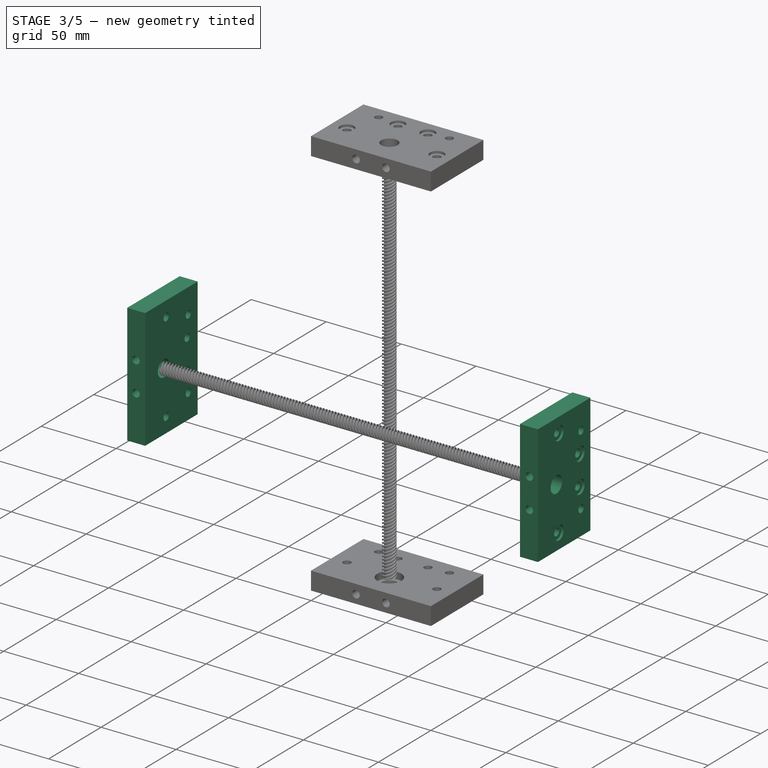
[diagram: stage 3 of 5 — iso view after this stage's code; geometry added in this stage tinted green]
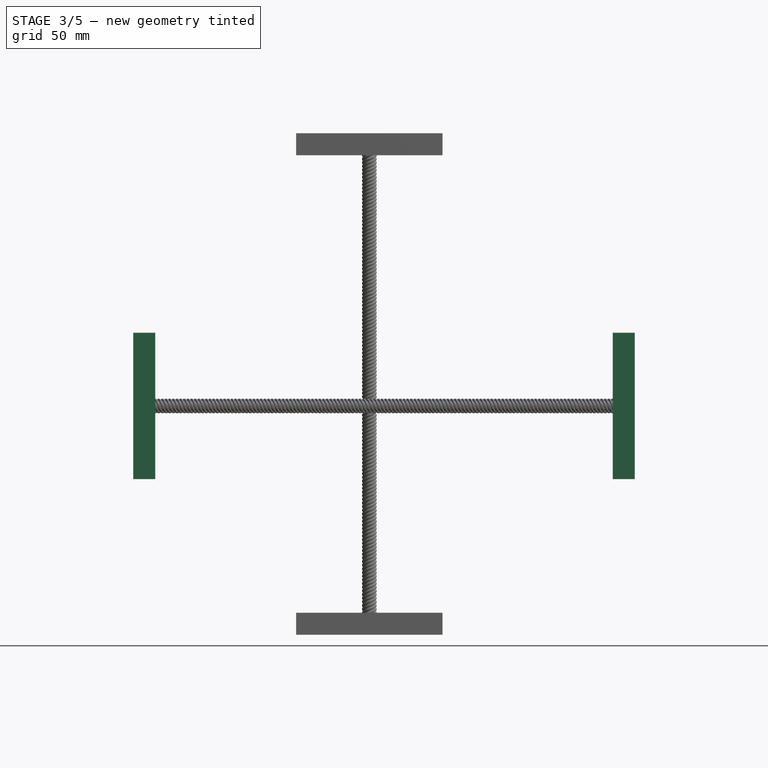
[diagram: stage 3 of 5 — front view after this stage's code; geometry added in this stage tinted green]
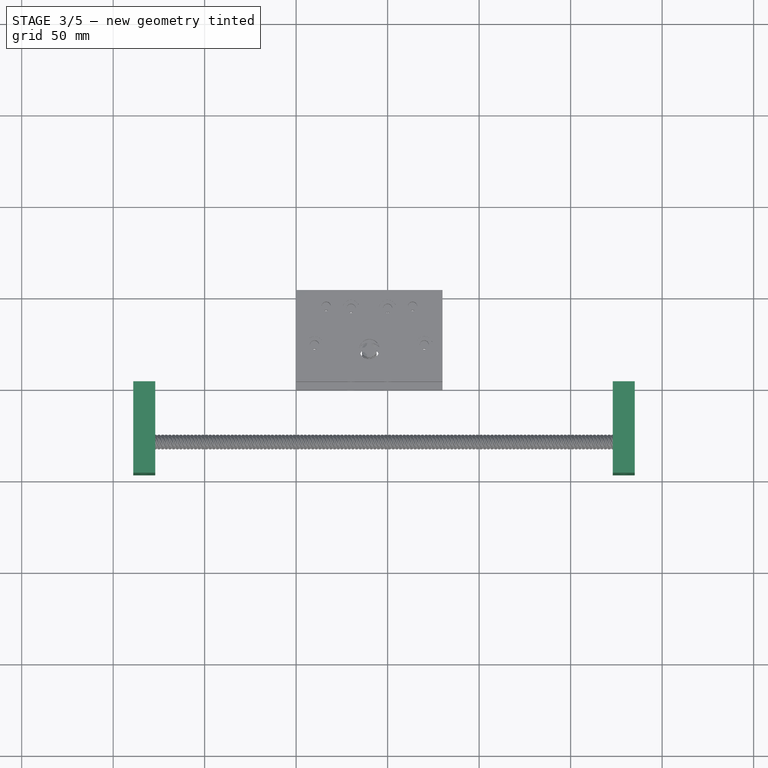
[diagram: stage 3 of 5 — top view after this stage's code; geometry added in this stage tinted green]
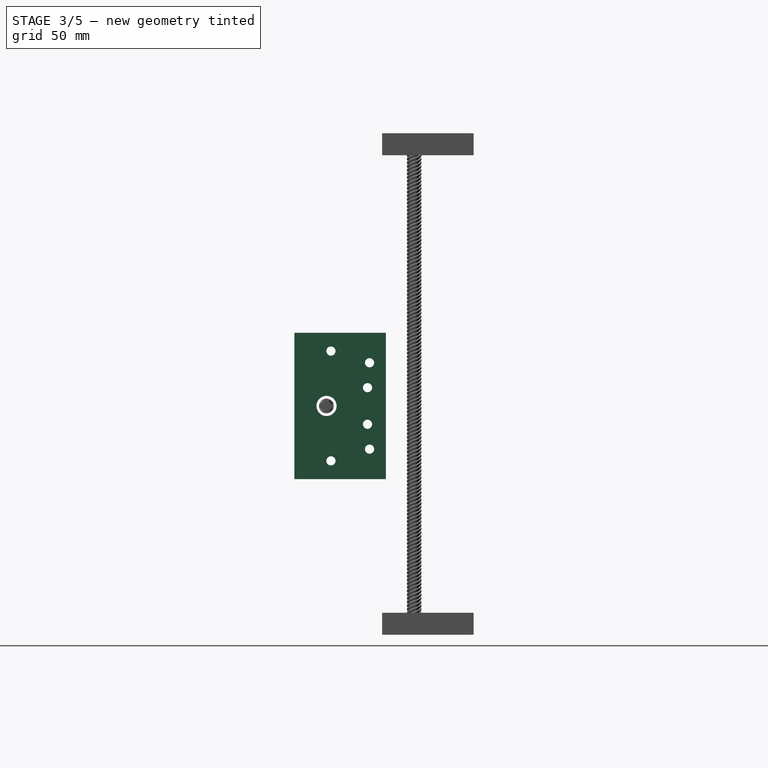
[diagram: stage 3 of 5 — right view after this stage's code; geometry added in this stage tinted green]
FEATURE [App::DocumentObjectGroup] Group005  label="8mm TR8_8 Leadscrew 250mm long"
  Group = -> [Cut]
FEATURE [App::DocumentObjectGroup] Group006  label="X axis linear motor"
  Group = -> [Group,Group001,Group002,Group003,Part__Feature033,Part__Feature034,Group004,Part__Feature042,Group005]
FEATURE [Sketcher::SketchObject] Sketch009
  sketch-geometry (252):
    g0: LineSegment StartX=57.3 StartY=-18.2 StartZ=0 EndX=57.3 EndY=-16.239 EndZ=0
    g1: LineSegment StartX=57.3 StartY=-16.239 StartZ=0 EndX=53.9 EndY=-12.839 EndZ=0
    g2: LineSegment StartX=53.9 StartY=-12.839 StartZ=0 EndX=53.9 EndY=-7.161 EndZ=0
    g3: LineSegment StartX=53.9 StartY=-7.161 StartZ=0 EndX=57.3 EndY=-3.761 EndZ=0
    g4: LineSegment StartX=57.3 StartY=-3.761 StartZ=0 EndX=57.3 EndY=-1.8 EndZ=0
    g5: LineSegment StartX=57.3 StartY=-1.8 StartZ=0 EndX=60 EndY=-1.8 EndZ=0
    g6: LineSegment StartX=60 StartY=-1.8 StartZ=0 EndX=62.7 EndY=-1.8 EndZ=0
    g7: LineSegment StartX=62.7 StartY=-1.8 StartZ=0 EndX=62.7 EndY=-3.761 EndZ=0
    g8: LineSegment StartX=62.7 StartY=-3.761 StartZ=0 EndX=66.1 EndY=-7.161 EndZ=0
    g9: LineSegment StartX=66.1 StartY=-7.161 StartZ=0 EndX=66.1 EndY=-12.839 EndZ=0
    g10: LineSegment StartX=66.1 StartY=-12.839 StartZ=0 EndX=60.6708 EndY=-18.2 EndZ=0
    g11: LineSegment StartX=60.6708 StartY=-18.2 StartZ=0 EndX=60 EndY=-18.2 EndZ=0
    g12: LineSegment StartX=60 StartY=-18.2 StartZ=0 EndX=57.3 EndY=-18.2 EndZ=0
    g13: LineSegment StartX=20 StartY=-18.2 StartZ=0 EndX=19.3292 EndY=-18.2 EndZ=0
    g14: LineSegment StartX=19.3292 StartY=-18.2 StartZ=0 EndX=13.9 EndY=-12.839 EndZ=0
    g15: LineSegment StartX=13.9 StartY=-12.839 StartZ=0 EndX=13.9 EndY=-7.161 EndZ=0
    g16: LineSegment StartX=13.9 StartY=-7.161 StartZ=0 EndX=17.3 EndY=-3.761 EndZ=0
    g17: LineSegment StartX=17.3 StartY=-3.761 StartZ=0 EndX=17.3 EndY=-1.8 EndZ=0
    g18: LineSegment StartX=17.3 StartY=-1.8 StartZ=0 EndX=20 EndY=-1.8 EndZ=0
    g19: LineSegment StartX=20 StartY=-1.8 StartZ=0 EndX=22.7 EndY=-1.8 EndZ=0
    g20: LineSegment StartX=22.7 StartY=-1.8 StartZ=0 EndX=22.7 EndY=-3.761 EndZ=0
    g21: LineSegment StartX=22.7 StartY=-3.761 StartZ=0 EndX=26.1 EndY=-7.161 EndZ=0
    g22: LineSegment StartX=26.1 StartY=-7.161 StartZ=0 EndX=26.1 EndY=-12.839 EndZ=0
    g23: LineSegment StartX=26.1 StartY=-12.839 StartZ=0 EndX=22.7 EndY=-16.239 EndZ=0
    g24: LineSegment StartX=22.7 StartY=-16.239 StartZ=0 EndX=22.7 EndY=-18.2 EndZ=0
    g25: LineSegment StartX=22.7 StartY=-18.2 StartZ=0 EndX=20 EndY=-18.2 EndZ=0
    g26: ArcOfCircle CenterX=1.5 CenterY=-1.5 CenterZ=0 NormalX=0 NormalY=0 NormalZ=1 Radius=1.5 StartAngle=1.5708 EndAngle=3.14159
    g27: LineSegment StartX=5.114 StartY=0 StartZ=0 EndX=1.5 EndY=0 EndZ=0
    g28: LineSegment StartX=0 StartY=-1.5 StartZ=0 EndX=0 EndY=-5.2509 EndZ=0
    g29: LineSegment StartX=0 StartY=-5.2509 StartZ=0 EndX=1.3621 EndY=-6.613 EndZ=0
    g30: LineSegment StartX=1.3621 StartY=-6.613 StartZ=0 EndX=1.6631 EndY=-6.613 EndZ=0
    g31: LineSegment StartX=1.6631 StartY=-6.613 StartZ=0 EndX=1.6631 EndY=-4.5 EndZ=0
    g32: LineSegment StartX=1.6631 StartY=-4.5 StartZ=0 EndX=3.3021 EndY=-4.5 EndZ=0
    g33: LineSegment StartX=3.3021 StartY=-4.5 StartZ=0 EndX=6.1 EndY=-7.2979 EndZ=0
    g34: LineSegment StartX=6.1 StartY=-7.2979 StartZ=0 EndX=6.1 EndY=-12.7021 EndZ=0
    g35: LineSegment StartX=6.1 StartY=-12.7021 StartZ=0 EndX=3.3021 EndY=-15.5 EndZ=0
    g36: LineSegment StartX=3.3021 StartY=-15.5 StartZ=0 EndX=1.6631 EndY=-15.5 EndZ=0
    g37: LineSegment StartX=1.6631 StartY=-15.5 StartZ=0 EndX=1.6631 EndY=-13.387 EndZ=0
    g38: LineSegment StartX=1.6631 StartY=-13.387 StartZ=0 EndX=1.3621 EndY=-13.387 EndZ=0
    g39: LineSegment StartX=1.3621 StartY=-13.387 StartZ=0 EndX=0 EndY=-14.7491 EndZ=0
    g40: LineSegment StartX=0 StartY=-14.7491 StartZ=0 EndX=0 EndY=-25.2509 EndZ=0
    g41: LineSegment StartX=0 StartY=-25.2509 StartZ=0 EndX=1.3621 EndY=-26.613 EndZ=0
    g42: LineSegment StartX=1.3621 StartY=-26.613 StartZ=0 EndX=1.6631 EndY=-26.613 EndZ=0
    g43: LineSegment StartX=1.6631 StartY=-26.613 StartZ=0 EndX=1.6631 EndY=-24.5 EndZ=0
    g44: LineSegment StartX=1.6631 StartY=-24.5 StartZ=0 EndX=3.3021 EndY=-24.5 EndZ=0
    g45: LineSegment StartX=3.3021 StartY=-24.5 StartZ=0 EndX=6.1 EndY=-27.2979 EndZ=0
    g46: LineSegment StartX=6.1 StartY=-27.2979 StartZ=0 EndX=6.1 EndY=-32.7021 EndZ=0
    g47: LineSegment StartX=6.1 StartY=-32.7021 StartZ=0 EndX=3.3021 EndY=-35.5 EndZ=0
    g48: LineSegment StartX=3.3021 StartY=-35.5 StartZ=0 EndX=1.6631 EndY=-35.5 EndZ=0
    g49: LineSegment StartX=1.6631 StartY=-35.5 StartZ=0 EndX=1.6631 EndY=-33.387 EndZ=0
    g50: LineSegment StartX=1.6631 StartY=-33.387 StartZ=0 EndX=1.3621 EndY=-33.387 EndZ=0
    g51: LineSegment StartX=1.3621 StartY=-33.387 StartZ=0 EndX=0 EndY=-34.7491 EndZ=0
    g52: LineSegment StartX=0 StartY=-34.7491 StartZ=0 EndX=0 EndY=-38.5 EndZ=0
    g53: ArcOfCircle CenterX=1.5 CenterY=-38.5 CenterZ=0 NormalX=0 NormalY=0 NormalZ=1 Radius=1.5 StartAngle=3.14159 EndAngle=4.71239
    g54: LineSegment StartX=1.5 StartY=-40 StartZ=0 EndX=5.114 EndY=-40 EndZ=0
    g55: LineSegment StartX=5.114 StartY=-40 StartZ=0 EndX=6.613 EndY=-38.501 EndZ=0
    g56: LineSegment StartX=6.613 StartY=-38.501 StartZ=0 EndX=6.613 EndY=-38.2 EndZ=0
    g57: LineSegment StartX=6.613 StartY=-38.2 StartZ=0 EndX=4.5 EndY=-38.2 EndZ=0
    g58: LineSegment StartX=4.5 StartY=-38.2 StartZ=0 EndX=4.5 EndY=-36.561 EndZ=0
    g59: LineSegment StartX=4.5 StartY=-36.561 StartZ=0 EndX=7.161 EndY=-33.9 EndZ=0
    g60: LineSegment StartX=7.161 StartY=-33.9 StartZ=0 EndX=12.839 EndY=-33.9 EndZ=0
    g61: LineSegment StartX=12.839 StartY=-33.9 StartZ=0 EndX=15.5 EndY=-36.561 EndZ=0
    g62: LineSegment StartX=15.5 StartY=-36.561 StartZ=0 EndX=15.5 EndY=-38.2 EndZ=0
    g63: LineSegment StartX=15.5 StartY=-38.2 StartZ=0 EndX=13.387 EndY=-38.2 EndZ=0
    g64: LineSegment StartX=13.387 StartY=-38.2 StartZ=0 EndX=13.387 EndY=-38.501 EndZ=0
    g65: LineSegment StartX=13.387 StartY=-38.501 StartZ=0 EndX=14.886 EndY=-40 EndZ=0
    g66: LineSegment StartX=14.886 StartY=-40 StartZ=0 EndX=18.5 EndY=-40 EndZ=0
    g67: ArcOfCircle CenterX=18.5 CenterY=-38.5 CenterZ=0 NormalX=0 NormalY=0 NormalZ=1 Radius=1.5 StartAngle=4.71239 EndAngle=6.28319
    g68: LineSegment StartX=20 StartY=-38.5 StartZ=0 EndX=20 EndY=-34.886 EndZ=0
    g69: LineSegment StartX=20 StartY=-34.886 StartZ=0 EndX=18.501 EndY=-33.387 EndZ=0
    g70: LineSegment StartX=18.501 StartY=-33.387 StartZ=0 EndX=18.2 EndY=-33.387 EndZ=0
    g71: LineSegment StartX=18.2 StartY=-33.387 StartZ=0 EndX=18.2 EndY=-35.5 EndZ=0
    g72: LineSegment StartX=18.2 StartY=-35.5 StartZ=0 EndX=16.561 EndY=-35.5 EndZ=0
    g73: LineSegment StartX=16.561 StartY=-35.5 StartZ=0 EndX=13.9 EndY=-32.839 EndZ=0
    g74: LineSegment StartX=13.9 StartY=-32.839 StartZ=0 EndX=13.9 EndY=-27.161 EndZ=0
    g75: LineSegment StartX=13.9 StartY=-27.161 StartZ=0 EndX=16.561 EndY=-24.5 EndZ=0
    g76: LineSegment StartX=16.561 StartY=-24.5 StartZ=0 EndX=18.2 EndY=-24.5 EndZ=0
    g77: LineSegment StartX=18.2 StartY=-24.5 StartZ=0 EndX=18.2 EndY=-26.613 EndZ=0
    g78: LineSegment StartX=18.2 StartY=-26.613 StartZ=0 EndX=18.501 EndY=-26.613 EndZ=0
    g79: LineSegment StartX=18.501 StartY=-26.613 StartZ=0 EndX=20 EndY=-25.114 EndZ=0
    g80: LineSegment StartX=20 StartY=-25.114 StartZ=0 EndX=20 EndY=-20 EndZ=0
    g81: LineSegment StartX=20 StartY=-20 StartZ=0 EndX=25.114 EndY=-20 EndZ=0
    g82: LineSegment StartX=25.114 StartY=-20 StartZ=0 EndX=26.613 EndY=-18.501 EndZ=0
    g83: LineSegment StartX=26.613 StartY=-18.501 StartZ=0 EndX=26.613 EndY=-18.2 EndZ=0
    g84: LineSegment StartX=26.613 StartY=-18.2 StartZ=0 EndX=24.5 EndY=-18.2 EndZ=0
    g85: LineSegment StartX=24.5 StartY=-18.2 StartZ=0 EndX=24.5 EndY=-16.561 EndZ=0
    g86: LineSegment StartX=24.5 StartY=-16.561 StartZ=0 EndX=27.161 EndY=-13.9 EndZ=0
    g87: LineSegment StartX=27.161 StartY=-13.9 StartZ=0 EndX=32.839 EndY=-13.9 EndZ=0
    g88: LineSegment StartX=32.839 StartY=-13.9 StartZ=0 EndX=35.5 EndY=-16.561 EndZ=0
    g89: LineSegment StartX=35.5 StartY=-16.561 StartZ=0 EndX=35.5 EndY=-18.2 EndZ=0
    g90: LineSegment StartX=35.5 StartY=-18.2 StartZ=0 EndX=33.387 EndY=-18.2 EndZ=0
    g91: LineSegment StartX=33.387 StartY=-18.2 StartZ=0 EndX=33.387 EndY=-18.501 EndZ=0
    g92: LineSegment StartX=33.387 StartY=-18.501 StartZ=0 EndX=34.886 EndY=-20 EndZ=0
    g93: LineSegment StartX=34.886 StartY=-20 StartZ=0 EndX=45.114 EndY=-20 EndZ=0
    g94: LineSegment StartX=45.114 StartY=-20 StartZ=0 EndX=46.613 EndY=-18.501 EndZ=0
    g95: LineSegment StartX=46.613 StartY=-18.501 StartZ=0 EndX=46.613 EndY=-18.2 EndZ=0
    g96: LineSegment StartX=46.613 StartY=-18.2 StartZ=0 EndX=44.5 EndY=-18.2 EndZ=0
    g97: LineSegment StartX=44.5 StartY=-18.2 StartZ=0 EndX=44.5 EndY=-16.561 EndZ=0
    g98: LineSegment StartX=44.5 StartY=-16.561 StartZ=0 EndX=47.161 EndY=-13.9 EndZ=0
    g99: LineSegment StartX=47.161 StartY=-13.9 StartZ=0 EndX=52.839 EndY=-13.9 EndZ=0
    g100: LineSegment StartX=52.839 StartY=-13.9 StartZ=0 EndX=55.5 EndY=-16.561 EndZ=0
    g101: LineSegment StartX=55.5 StartY=-16.561 StartZ=0 EndX=55.5 EndY=-18.2 EndZ=0
    g102: LineSegment StartX=55.5 StartY=-18.2 StartZ=0 EndX=53.387 EndY=-18.2 EndZ=0
    g103: LineSegment StartX=53.387 StartY=-18.2 StartZ=0 EndX=53.387 EndY=-18.501 EndZ=0
    g104: LineSegment StartX=53.387 StartY=-18.501 StartZ=0 EndX=54.886 EndY=-20 EndZ=0
    g105: LineSegment StartX=54.886 StartY=-20 StartZ=0 EndX=54.8918 EndY=-20 EndZ=0
    g106: LineSegment StartX=54.8918 StartY=-20 StartZ=0 EndX=55.1918 EndY=-19.9988 EndZ=0
    g107: LineSegment StartX=55.1918 StartY=-19.9988 StartZ=0 EndX=60 EndY=-20 EndZ=0
    g108: LineSegment StartX=60 StartY=-20 StartZ=0 EndX=60 EndY=-25.114 EndZ=0
    g109: LineSegment StartX=60 StartY=-25.114 StartZ=0 EndX=61.499 EndY=-26.613 EndZ=0
    g110: LineSegment StartX=61.499 StartY=-26.613 StartZ=0 EndX=61.8 EndY=-26.613 EndZ=0
    g111: LineSegment StartX=61.8 StartY=-26.613 StartZ=0 EndX=61.8 EndY=-24.5 EndZ=0
    g112: LineSegment StartX=61.8 StartY=-24.5 StartZ=0 EndX=63.439 EndY=-24.5 EndZ=0
    g113: LineSegment StartX=63.439 StartY=-24.5 StartZ=0 EndX=66.1 EndY=-27.161 EndZ=0
    g114: LineSegment StartX=66.1 StartY=-27.161 StartZ=0 EndX=66.1 EndY=-32.839 EndZ=0
    g115: LineSegment StartX=66.1 StartY=-32.839 StartZ=0 EndX=63.439 EndY=-35.5 EndZ=0
    g116: LineSegment StartX=63.439 StartY=-35.5 StartZ=0 EndX=61.8 EndY=-35.5 EndZ=0
    g117: LineSegment StartX=61.8 StartY=-35.5 StartZ=0 EndX=61.8 EndY=-33.387 EndZ=0
    g118: LineSegment StartX=61.8 StartY=-33.387 StartZ=0 EndX=61.499 EndY=-33.387 EndZ=0
    g119: LineSegment StartX=61.499 StartY=-33.387 StartZ=0 EndX=60 EndY=-34.886 EndZ=0
    g120: LineSegment StartX=60 StartY=-34.886 StartZ=0 EndX=60 EndY=-38.5 EndZ=0
    g121: ArcOfCircle CenterX=61.5 CenterY=-38.5 CenterZ=0 NormalX=0 NormalY=0 NormalZ=1 Radius=1.5 StartAngle=3.14159 EndAngle=4.71239
    g122: LineSegment StartX=61.5 StartY=-40 StartZ=0 EndX=65.114 EndY=-40 EndZ=0
    g123: LineSegment StartX=65.114 StartY=-40 StartZ=0 EndX=66.613 EndY=-38.501 EndZ=0
    g124: LineSegment StartX=66.613 StartY=-38.501 StartZ=0 EndX=66.613 EndY=-38.2 EndZ=0
    g125: LineSegment StartX=66.613 StartY=-38.2 StartZ=0 EndX=64.5 EndY=-38.2 EndZ=0
    g126: LineSegment StartX=64.5 StartY=-38.2 StartZ=0 EndX=64.5 EndY=-36.561 EndZ=0
    g127: LineSegment StartX=64.5 StartY=-36.561 StartZ=0 EndX=67.161 EndY=-33.9 EndZ=0
    g128: LineSegment StartX=67.161 StartY=-33.9 StartZ=0 EndX=72.839 EndY=-33.9 EndZ=0
    g129: LineSegment StartX=72.839 StartY=-33.9 StartZ=0 EndX=75.5 EndY=-36.561 EndZ=0
    g130: LineSegment StartX=75.5 StartY=-36.561 StartZ=0 EndX=75.5 EndY=-38.2 EndZ=0
    g131: LineSegment StartX=75.5 StartY=-38.2 StartZ=0 EndX=73.387 EndY=-38.2 EndZ=0
    g132: LineSegment StartX=73.387 StartY=-38.2 StartZ=0 EndX=73.387 EndY=-38.501 EndZ=0
    g133: LineSegment StartX=73.387 StartY=-38.501 StartZ=0 EndX=74.886 EndY=-40 EndZ=0
    g134: LineSegment StartX=74.886 StartY=-40 StartZ=0 EndX=78.5 EndY=-40 EndZ=0
    g135: ArcOfCircle CenterX=78.5 CenterY=-38.5 CenterZ=0 NormalX=0 NormalY=0 NormalZ=1 Radius=1.5 StartAngle=4.71239 EndAngle=6.28319
    g136: LineSegment StartX=80 StartY=-38.5 StartZ=0 EndX=80 EndY=-34.7491 EndZ=0
    g137: LineSegment StartX=80 StartY=-34.7491 StartZ=0 EndX=78.6379 EndY=-33.387 EndZ=0
    g138: LineSegment StartX=78.6379 StartY=-33.387 StartZ=0 EndX=78.3369 EndY=-33.387 EndZ=0
    g139: LineSegment StartX=78.3369 StartY=-33.387 StartZ=0 EndX=78.3369 EndY=-35.5 EndZ=0
    g140: LineSegment StartX=78.3369 StartY=-35.5 StartZ=0 EndX=76.6979 EndY=-35.5 EndZ=0
    g141: LineSegment StartX=76.6979 StartY=-35.5 StartZ=0 EndX=73.9 EndY=-32.7021 EndZ=0
    g142: LineSegment StartX=73.9 StartY=-32.7021 StartZ=0 EndX=73.9 EndY=-27.2979 EndZ=0
    g143: LineSegment StartX=73.9 StartY=-27.2979 StartZ=0 EndX=76.6979 EndY=-24.5 EndZ=0
    g144: LineSegment StartX=76.6979 StartY=-24.5 StartZ=0 EndX=78.3369 EndY=-24.5 EndZ=0
    g145: LineSegment StartX=78.3369 StartY=-24.5 StartZ=0 EndX=78.3369 EndY=-26.613 EndZ=0
    g146: LineSegment StartX=78.3369 StartY=-26.613 StartZ=0 EndX=78.6379 EndY=-26.613 EndZ=0
    g147: LineSegment StartX=78.6379 StartY=-26.613 StartZ=0 EndX=80 EndY=-25.2509 EndZ=0
    g148: LineSegment StartX=80 StartY=-25.2509 StartZ=0 EndX=80 EndY=-14.7491 EndZ=0
    g149: LineSegment StartX=80 StartY=-14.7491 StartZ=0 EndX=78.6379 EndY=-13.387 EndZ=0
    g150: LineSegment StartX=78.6379 StartY=-13.387 StartZ=0 EndX=78.3369 EndY=-13.387 EndZ=0
    g151: LineSegment StartX=78.3369 StartY=-13.387 StartZ=0 EndX=78.3369 EndY=-15.5 EndZ=0
    g152: LineSegment StartX=78.3369 StartY=-15.5 StartZ=0 EndX=76.6979 EndY=-15.5 EndZ=0
    g153: LineSegment StartX=76.6979 StartY=-15.5 StartZ=0 EndX=73.9 EndY=-12.7021 EndZ=0
    g154: LineSegment StartX=73.9 StartY=-12.7021 StartZ=0 EndX=73.9 EndY=-7.2979 EndZ=0
    g155: LineSegment StartX=73.9 StartY=-7.2979 StartZ=0 EndX=76.6979 EndY=-4.5 EndZ=0
    g156: LineSegment StartX=76.6979 StartY=-4.5 StartZ=0 EndX=78.3369 EndY=-4.5 EndZ=0
    g157: LineSegment StartX=78.3369 StartY=-4.5 StartZ=0 EndX=78.3369 EndY=-6.613 EndZ=0
    g158: LineSegment StartX=78.3369 StartY=-6.613 StartZ=0 EndX=78.6379 EndY=-6.613 EndZ=0
    g159: LineSegment StartX=78.6379 StartY=-6.613 StartZ=0 EndX=80 EndY=-5.2509 EndZ=0
    g160: LineSegment StartX=80 StartY=-5.2509 StartZ=0 EndX=80 EndY=-1.5 EndZ=0
    g161: ArcOfCircle CenterX=78.5 CenterY=-1.5 CenterZ=0 NormalX=0 NormalY=0 NormalZ=1 Radius=1.5 StartAngle=0 EndAngle=1.5708
    g162: LineSegment StartX=78.5 StartY=0 StartZ=0 EndX=74.886 EndY=0 EndZ=0
    g163: LineSegment StartX=74.886 StartY=0 StartZ=0 EndX=73.387 EndY=-1.499 EndZ=0
    g164: LineSegment StartX=73.387 StartY=-1.499 StartZ=0 EndX=73.387 EndY=-1.8 EndZ=0
    g165: LineSegment StartX=73.387 StartY=-1.8 StartZ=0 EndX=75.5 EndY=-1.8 EndZ=0
    g166: LineSegment StartX=75.5 StartY=-1.8 StartZ=0 EndX=75.5 EndY=-3.439 EndZ=0
    g167: LineSegment StartX=75.5 StartY=-3.439 StartZ=0 EndX=72.839 EndY=-6.1 EndZ=0
    g168: LineSegment StartX=72.839 StartY=-6.1 StartZ=0 EndX=67.161 EndY=-6.1 EndZ=0
    g169: LineSegment StartX=67.161 StartY=-6.1 StartZ=0 EndX=64.5 EndY=-3.439 EndZ=0
    g170: LineSegment StartX=64.5 StartY=-3.439 StartZ=0 EndX=64.5 EndY=-1.8 EndZ=0
    g171: LineSegment StartX=64.5 StartY=-1.8 StartZ=0 EndX=66.613 EndY=-1.8 EndZ=0
    g172: LineSegment StartX=66.613 StartY=-1.8 StartZ=0 EndX=66.613 EndY=-1.499 EndZ=0
    g173: LineSegment StartX=66.613 StartY=-1.499 StartZ=0 EndX=65.114 EndY=0 EndZ=0
    g174: LineSegment StartX=65.114 StartY=0 StartZ=0 EndX=54.886 EndY=0 EndZ=0
    g175: LineSegment StartX=54.886 StartY=0 StartZ=0 EndX=53.387 EndY=-1.499 EndZ=0
    g176: LineSegment StartX=53.387 StartY=-1.499 StartZ=0 EndX=53.387 EndY=-1.8 EndZ=0
    g177: LineSegment StartX=53.387 StartY=-1.8 StartZ=0 EndX=55.5 EndY=-1.8 EndZ=0
    g178: LineSegment StartX=55.5 StartY=-1.8 StartZ=0 EndX=55.5 EndY=-3.439 EndZ=0
    g179: LineSegment StartX=55.5 StartY=-3.439 StartZ=0 EndX=52.839 EndY=-6.1 EndZ=0
    g180: LineSegment StartX=52.839 StartY=-6.1 StartZ=0 EndX=47.161 EndY=-6.1 EndZ=0
    g181: LineSegment StartX=47.161 StartY=-6.1 StartZ=0 EndX=44.5 EndY=-3.439 EndZ=0
    g182: LineSegment StartX=44.5 StartY=-3.439 StartZ=0 EndX=44.5 EndY=-1.8 EndZ=0
    g183: LineSegment StartX=44.5 StartY=-1.8 StartZ=0 EndX=46.613 EndY=-1.8 EndZ=0
    g184: LineSegment StartX=46.613 StartY=-1.8 StartZ=0 EndX=46.613 EndY=-1.499 EndZ=0
    g185: LineSegment StartX=46.613 StartY=-1.499 StartZ=0 EndX=45.114 EndY=0 EndZ=0
    g186: LineSegment StartX=45.114 StartY=0 StartZ=0 EndX=34.886 EndY=0 EndZ=0
    g187: LineSegment StartX=34.886 StartY=0 StartZ=0 EndX=33.387 EndY=-1.499 EndZ=0
    g188: LineSegment StartX=33.387 StartY=-1.499 StartZ=0 EndX=33.387 EndY=-1.8 EndZ=0
    g189: LineSegment StartX=33.387 StartY=-1.8 StartZ=0 EndX=35.5 EndY=-1.8 EndZ=0
    g190: LineSegment StartX=35.5 StartY=-1.8 StartZ=0 EndX=35.5 EndY=-3.439 EndZ=0
    g191: LineSegment StartX=35.5 StartY=-3.439 StartZ=0 EndX=32.839 EndY=-6.1 EndZ=0
    g192: LineSegment StartX=32.839 StartY=-6.1 StartZ=0 EndX=27.161 EndY=-6.1 EndZ=0
    g193: LineSegment StartX=27.161 StartY=-6.1 StartZ=0 EndX=24.5 EndY=-3.439 EndZ=0
    g194: LineSegment StartX=24.5 StartY=-3.439 StartZ=0 EndX=24.5 EndY=-1.8 EndZ=0
    g195: LineSegment StartX=24.5 StartY=-1.8 StartZ=0 EndX=26.613 EndY=-1.8 EndZ=0
    g196: LineSegment StartX=26.613 StartY=-1.8 StartZ=0 EndX=26.613 EndY=-1.499 EndZ=0
    g197: LineSegment StartX=26.613 StartY=-1.499 StartZ=0 EndX=25.114 EndY=0 EndZ=0
    g198: LineSegment StartX=25.114 StartY=0 StartZ=0 EndX=14.886 EndY=0 EndZ=0
    g199: LineSegment StartX=14.886 StartY=0 StartZ=0 EndX=13.387 EndY=-1.499 EndZ=0
    g200: LineSegment StartX=13.387 StartY=-1.499 StartZ=0 EndX=13.387 EndY=-1.8 EndZ=0
    g201: LineSegment StartX=13.387 StartY=-1.8 StartZ=0 EndX=15.5 EndY=-1.8 EndZ=0
    g202: LineSegment StartX=15.5 StartY=-1.8 StartZ=0 EndX=15.5 EndY=-3.439 EndZ=0
    g203: LineSegment StartX=15.5 StartY=-3.439 StartZ=0 EndX=12.839 EndY=-6.1 EndZ=0
    g204: LineSegment StartX=12.839 StartY=-6.1 StartZ=0 EndX=7.161 EndY=-6.1 EndZ=0
    g205: LineSegment StartX=7.161 StartY=-6.1 StartZ=0 EndX=4.5 EndY=-3.439 EndZ=0
    g206: LineSegment StartX=4.5 StartY=-3.439 StartZ=0 EndX=4.5 EndY=-1.8 EndZ=0
    g207: LineSegment StartX=4.5 StartY=-1.8 StartZ=0 EndX=6.613 EndY=-1.8 EndZ=0
    g208: LineSegment StartX=6.613 StartY=-1.8 StartZ=0 EndX=6.613 EndY=-1.499 EndZ=0
    g209: LineSegment StartX=6.613 StartY=-1.499 StartZ=0 EndX=5.114 EndY=0 EndZ=0
    g210: Circle CenterX=10 CenterY=-30 CenterZ=0 NormalX=0 NormalY=0 NormalZ=-1 Radius=2.1
    g211: Circle CenterX=70 CenterY=-30 CenterZ=0 NormalX=0 NormalY=0 NormalZ=-1 Radius=2.1
    g212: Circle CenterX=70 CenterY=-10 CenterZ=0 NormalX=0 NormalY=0 NormalZ=-1 Radius=2.1
    g213: Circle CenterX=10 CenterY=-10 CenterZ=0 NormalX=0 NormalY=0 NormalZ=-1 Radius=2.1
    g214: Circle CenterX=30 CenterY=-10 CenterZ=0 NormalX=0 NormalY=0 NormalZ=-1 Radius=2.1
    g215: Circle CenterX=50 CenterY=-10 CenterZ=0 NormalX=0 NormalY=0 NormalZ=-1 Radius=2.1
    g216: LineSegment StartX=42.7156 StartY=-3.79115 StartZ=0 EndX=46.1296 EndY=-7.17706 EndZ=0
    g217: LineSegment StartX=46.1296 StartY=-7.17706 StartZ=0 EndX=46.1531 EndY=-12.855 EndZ=0
    g218: LineSegment StartX=46.1531 StartY=-12.855 StartZ=0 EndX=42.7672 EndY=-16.269 EndZ=0
    g219: LineSegment StartX=42.7672 StartY=-16.269 StartZ=0 EndX=42.7753 EndY=-18.23 EndZ=0
    g220: LineSegment StartX=42.7753 StartY=-18.23 StartZ=0 EndX=39.9247 EndY=-18.2412 EndZ=0
    g221: LineSegment StartX=39.9247 StartY=-18.2412 StartZ=0 EndX=37.2247 EndY=-18.23 EndZ=0
    g222: LineSegment StartX=37.2247 StartY=-18.23 StartZ=0 EndX=37.2328 EndY=-16.269 EndZ=0
    g223: LineSegment StartX=37.2328 StartY=-16.269 StartZ=0 EndX=33.8469 EndY=-12.855 EndZ=0
    g224: LineSegment StartX=33.8469 StartY=-12.855 StartZ=0 EndX=33.8704 EndY=-7.17706 EndZ=0
    g225: LineSegment StartX=33.8704 StartY=-7.17706 StartZ=0 EndX=37.2844 EndY=-3.79115 EndZ=0
    g226: LineSegment StartX=37.2844 StartY=-3.79115 StartZ=0 EndX=37.2925 EndY=-1.83017 EndZ=0
    g227: LineSegment StartX=37.2925 StartY=-1.83017 StartZ=0 EndX=39.9925 EndY=-1.84133 EndZ=0
    g228: LineSegment StartX=39.9925 StartY=-1.84133 StartZ=0 EndX=42.7075 EndY=-1.83017 EndZ=0
    g229: LineSegment StartX=42.7075 StartY=-1.83017 StartZ=0 EndX=42.7156 EndY=-3.79115 EndZ=0
    g230: LineSegment StartX=15.939 StartY=-23 StartZ=0 EndX=12.839 EndY=-26.1 EndZ=0
    g231: LineSegment StartX=12.839 StartY=-26.1 StartZ=0 EndX=7.161 EndY=-26.1 EndZ=0
    g232: LineSegment StartX=7.161 StartY=-26.1 StartZ=0 EndX=4.061 EndY=-23 EndZ=0
    g233: LineSegment StartX=4.061 StartY=-23 StartZ=0 EndX=1.6631 EndY=-23 EndZ=0
    g234: LineSegment StartX=1.6631 StartY=-23 StartZ=0 EndX=1.6631 EndY=-17 EndZ=0
    g235: LineSegment StartX=1.6631 StartY=-17 StartZ=0 EndX=4.061 EndY=-17 EndZ=0
    g236: LineSegment StartX=4.061 StartY=-17 StartZ=0 EndX=7.161 EndY=-13.9 EndZ=0
    g237: LineSegment StartX=7.161 StartY=-13.9 StartZ=0 EndX=12.839 EndY=-13.9 EndZ=0
    g238: LineSegment StartX=12.839 StartY=-13.9 StartZ=0 EndX=18.2 EndY=-19.261 EndZ=0
    g239: LineSegment StartX=18.2 StartY=-19.261 StartZ=0 EndX=18.2 EndY=-23 EndZ=0
    g240: LineSegment StartX=18.2 StartY=-23 StartZ=0 EndX=15.939 EndY=-23 EndZ=0
    g241: LineSegment StartX=78.3369 StartY=-23 StartZ=0 EndX=75.939 EndY=-23 EndZ=0
    g242: LineSegment StartX=75.939 StartY=-23 StartZ=0 EndX=72.839 EndY=-26.1 EndZ=0
    g243: LineSegment StartX=72.839 StartY=-26.1 StartZ=0 EndX=67.161 EndY=-26.1 EndZ=0
    g244: LineSegment StartX=67.161 StartY=-26.1 StartZ=0 EndX=64.061 EndY=-23 EndZ=0
    g245: LineSegment StartX=64.061 StartY=-23 StartZ=0 EndX=61.8 EndY=-23 EndZ=0
    g246: LineSegment StartX=61.8 StartY=-23 StartZ=0 EndX=61.8 EndY=-19.261 EndZ=0
    g247: LineSegment StartX=61.8 StartY=-19.261 StartZ=0 EndX=67.161 EndY=-13.9 EndZ=0
    g248: LineSegment StartX=67.161 StartY=-13.9 StartZ=0 EndX=72.839 EndY=-13.9 EndZ=0
    g249: LineSegment StartX=72.839 StartY=-13.9 StartZ=0 EndX=75.939 EndY=-17 EndZ=0
    g250: LineSegment StartX=75.939 StartY=-17 StartZ=0 EndX=78.3369 EndY=-17 EndZ=0
    g251: LineSegment StartX=78.3369 StartY=-17 StartZ=0 EndX=78.3369 EndY=-23 EndZ=0
FEATURE [Part::Extrusion] Extrude001
  Base = -> Sketch009
  Dir = (0,0,250)
  Placement = pos=(-77,-48,153) rot=(0,1,0;1.5708rad)
  Solid = false
FEATURE [App::DocumentObjectGroup] Group007  label="profile001"
  Group = -> [Extrude001]
FEATURE [Sketcher::SketchObject] Sketch010
  Placement = pos=(-89,-48,73) rot=(0.707107,0,0.707107;3.14159rad)
  sketch-geometry (11):
    g0: LineSegment StartX=0 StartY=0 StartZ=0 EndX=80 EndY=0 EndZ=0
    g1: LineSegment StartX=80 StartY=0 StartZ=0 EndX=80 EndY=50 EndZ=0
    g2: LineSegment StartX=80 StartY=50 StartZ=0 EndX=0 EndY=50 EndZ=0
    g3: LineSegment StartX=0 StartY=50 StartZ=0 EndX=0 EndY=0 EndZ=0
    g4: Circle CenterX=10 CenterY=30 CenterZ=0 NormalX=0 NormalY=0 NormalZ=1 Radius=2.5
    g5: Circle CenterX=30 CenterY=10 CenterZ=0 NormalX=0 NormalY=0 NormalZ=1 Radius=2.5
    g6: Circle CenterX=16.4 CenterY=8.9 CenterZ=0 NormalX=0 NormalY=0 NormalZ=1 Radius=2.5
    g7: Circle CenterX=50 CenterY=10 CenterZ=0 NormalX=0 NormalY=0 NormalZ=1 Radius=2.5
    g8: Circle CenterX=63.6 CenterY=8.9 CenterZ=0 NormalX=0 NormalY=0 NormalZ=1 Radius=2.5
    g9: Circle CenterX=70 CenterY=30 CenterZ=0 NormalX=0 NormalY=0 NormalZ=1 Radius=2.5
    g10: Circle CenterX=40 CenterY=32.4 CenterZ=0 NormalX=0 NormalY=0 NormalZ=1 Radius=5.5
  constraints (34):
    c: Coincident(g0,g1)
    c: Coincident(g1,g2)
    c: Coincident(g2,g3)
    c: Coincident(g3,g0)
    c: Horizontal(g0)
    c: Horizontal(g2)
    c: Vertical(g1)
    c: Vertical(g3)
    c: Coincident(g0,g-1)
    c: Radius(g4) = 2.5
    c: Radius(g9) = 2.5
    c: Radius(g8) = 2.5
    c: Radius(g7) = 2.5
    c: Radius(g5) = 2.5
    c: Radius(g6) = 2.5
    c: Radius(g10) = 5.5
    c: Equal(g0,g2)
    c: Equal(g3,g1)
    c: DistanceX(g2) = -80
    c: DistanceY(g3) = -50
    c: DistanceX(g1,g9) = -10
    c: DistanceY(g8,g0) = -8.9
    c: DistanceX(g8,g0) = 16.4
    c: DistanceX(g7,g0) = 30
    c: DistanceY(g7,g0) = -10
    c: DistanceX(g-1,g5) = 30
    c: DistanceY(g-1,g5) = 10
    c: DistanceY(g-1,g6) = 8.9
    c: DistanceX(g-1,g6) = 16.4
    c: DistanceX(g10,g2) = -40
    c: DistanceY(g10,g2) = 17.6
    c: DistanceY(g9,g0) = -30
    c: DistanceY(g-1,g4) = 30
    c: DistanceX(g-1,g4) = 10
FEATURE [PartDesign::Pad] Pad002
  Length = 12
  Length2 = 100
  Placement = pos=(-89,-48,73) rot=(0.707107,0,0.707107;3.14159rad)
  Sketch = -> Sketch010
  Type = 0
FEATURE [Sketcher::SketchObject] Sketch011
  Placement = pos=(-89,-98,73) rot=(0.57735,0.57735,-0.57735;2.0944rad)
  Support = -> Pad002 [Face3]
  sketch-geometry (2):
    g0: Circle CenterX=-30.0338 CenterY=5.85009 CenterZ=0 NormalX=0 NormalY=0 NormalZ=1 Radius=2.5
    g1: Circle CenterX=-50.0038 CenterY=5.78884 CenterZ=0 NormalX=0 NormalY=0 NormalZ=1 Radius=2.5
  constraints (2):
    c: Radius(g0) = 2.5
    c: Radius(g1) = 2.5
FEATURE [PartDesign::Pocket] Pocket006
  Length = 11
  Placement = pos=(-89,-48,73) rot=(0.707107,0,0.707107;3.14159rad)
  Sketch = -> Sketch011
  Type = 0
FEATURE [App::DocumentObjectGroup] Group008  label="endplate002"
  Group = -> [Pad002,Pocket006,Pocket007,Pocket008]
FEATURE [Sketcher::SketchObject] Sketch014
  Placement = pos=(185,-48,153) rot=(0.707107,0,-0.707107;3.14159rad)
  sketch-geometry (11):
    g0: LineSegment StartX=0 StartY=0 StartZ=0 EndX=80 EndY=0 EndZ=0
    g1: LineSegment StartX=80 StartY=0 StartZ=0 EndX=80 EndY=50 EndZ=0
    g2: LineSegment StartX=80 StartY=50 StartZ=0 EndX=0 EndY=50 EndZ=0
    g3: LineSegment StartX=0 StartY=50 StartZ=0 EndX=0 EndY=0 EndZ=0
    g4: Circle CenterX=10 CenterY=30 CenterZ=0 NormalX=0 NormalY=0 NormalZ=1 Radius=2.5
    g5: Circle CenterX=30 CenterY=10 CenterZ=0 NormalX=0 NormalY=0 NormalZ=1 Radius=2.5
    g6: Circle CenterX=16.4 CenterY=8.9 CenterZ=0 NormalX=0 NormalY=0 NormalZ=1 Radius=2.5
    g7: Circle CenterX=50 CenterY=10 CenterZ=0 NormalX=0 NormalY=0 NormalZ=1 Radius=2.5
    g8: Circle CenterX=63.6 CenterY=8.9 CenterZ=0 NormalX=0 NormalY=0 NormalZ=1 Radius=2.5
    g9: Circle CenterX=70 CenterY=30 CenterZ=0 NormalX=0 NormalY=0 NormalZ=1 Radius=2.5
    g10: Circle CenterX=40 CenterY=32.4 CenterZ=0 NormalX=0 NormalY=0 NormalZ=1 Radius=5.5
  constraints (34):
    c: Coincident(g0,g1)
    c: Coincident(g1,g2)
    c: Coincident(g2,g3)
    c: Coincident(g3,g0)
    c: Horizontal(g0)
    c: Horizontal(g2)
    c: Vertical(g1)
    c: Vertical(g3)
    c: Coincident(g0,g-1)
    c: Radius(g4) = 2.5
    c: Radius(g9) = 2.5
    c: Radius(g8) = 2.5
    c: Radius(g7) = 2.5
    c: Radius(g5) = 2.5
    c: Radius(g6) = 2.5
    c: Radius(g10) = 5.5
    c: Equal(g0,g2)
    c: Equal(g3,g1)
    c: DistanceX(g2) = -80
    c: DistanceY(g3) = -50
    c: DistanceX(g1,g9) = -10
    c: DistanceY(g8,g0) = -8.9
    c: DistanceX(g8,g0) = 16.4
    c: DistanceX(g7,g0) = 30
    c: DistanceY(g7,g0) = -10
    c: DistanceX(g-1,g5) = 30
    c: DistanceY(g-1,g5) = 10
    c: DistanceY(g-1,g6) = 8.9
    c: DistanceX(g-1,g6) = 16.4
    c: DistanceX(g10,g2) = -40
    c: DistanceY(g10,g2) = 17.6
    c: DistanceY(g9,g0) = -30
    c: DistanceY(g-1,g4) = 30
    c: DistanceX(g-1,g4) = 10
FEATURE [PartDesign::Pad] Pad003
  Length = 12
  Length2 = 100
  Placement = pos=(185,-48,153) rot=(0.707107,0,-0.707107;3.14159rad)
  Sketch = -> Sketch014
  Type = 0
FEATURE [Sketcher::SketchObject] Sketch015
  Placement = pos=(185,-98,153) rot=(0.57735,-0.57735,0.57735;2.0944rad)
  Support = -> Pad003 [Face3]
  sketch-geometry (2):
    g0: Circle CenterX=-30.0338 CenterY=5.85009 CenterZ=0 NormalX=0 NormalY=0 NormalZ=1 Radius=2.5
    g1: Circle CenterX=-50.0038 CenterY=5.78884 CenterZ=0 NormalX=0 NormalY=0 NormalZ=1 Radius=2.5
  constraints (2):
    c: Radius(g0) = 2.5
    c: Radius(g1) = 2.5
FEATURE [PartDesign::Pocket] Pocket009
  Length = 11
  Placement = pos=(185,-48,153) rot=(0.707107,0,-0.707107;3.14159rad)
  Sketch = -> Sketch015
  Type = 0
FEATURE [Sketcher::SketchObject] Sketch016
  Placement = pos=(173,-48,153) rot=(-0.707107,0,0.707107;3.14159rad)
  Support = -> Pocket009 [Face5]
  sketch-geometry (1):
    g0: Circle CenterX=40 CenterY=32.4 CenterZ=0 NormalX=0 NormalY=0 NormalZ=1 Radius=8.05
  constraints (3):
    c: Radius(g0) = 8.05
    c: DistanceY(g-1,g0) = 32.4
    c: DistanceX(g-1,g0) = 40
FEATURE [PartDesign::Pocket] Pocket010
  Length = 4.5
  Placement = pos=(185,-48,153) rot=(0.707107,0,-0.707107;3.14159rad)
  Sketch = -> Sketch016
  Type = 0
FEATURE [Sketcher::SketchObject] Sketch017
  Placement = pos=(185,-48,153) rot=(0,1,0;1.5708rad)
  Support = -> Pocket010 [Face4]
  sketch-geometry (4):
    g0: Circle CenterX=10 CenterY=-30 CenterZ=0 NormalX=0 NormalY=0 NormalZ=1 Radius=4.6
    g1: Circle CenterX=70 CenterY=-30 CenterZ=0 NormalX=0 NormalY=0 NormalZ=1 Radius=4.62459
    g2: Circle CenterX=30 CenterY=-10 CenterZ=0 NormalX=0 NormalY=0 NormalZ=1 Radius=4.58345
    g3: Circle CenterX=50 CenterY=-10 CenterZ=0 NormalX=0 NormalY=0 NormalZ=1 Radius=4.6246
  constraints (9):
    c: Radius(g0) = 4.6
    c: DistanceX(g-1,g2) = 30
    c: DistanceY(g-1,g2) = -10
    c: DistanceX(g-1,g3) = 50
    c: DistanceY(g-1,g3) = -10
    c: DistanceY(g-1,g0) = -30
    c: DistanceX(g-1,g0) = 10
    c: DistanceY(g-1,g1) = -30
    c: DistanceX(g-1,g1) = 70
FEATURE [PartDesign::Pocket] Pocket011
  Length = 1.55
  Placement = pos=(185,-48,153) rot=(0.707107,0,-0.707107;3.14159rad)
  Sketch = -> Sketch017
  Type = 0
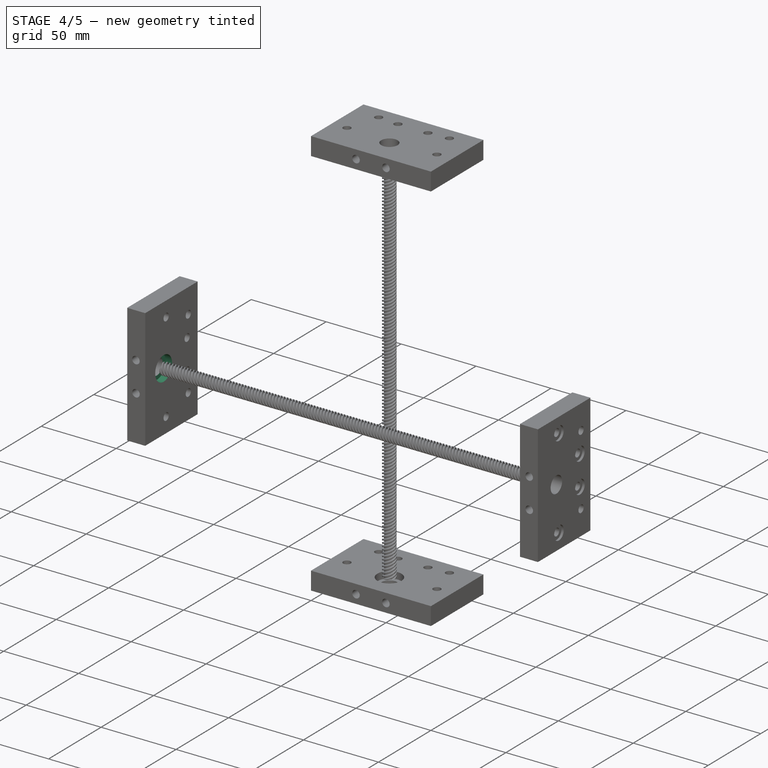
[diagram: stage 4 of 5 — iso view after this stage's code; geometry added in this stage tinted green]
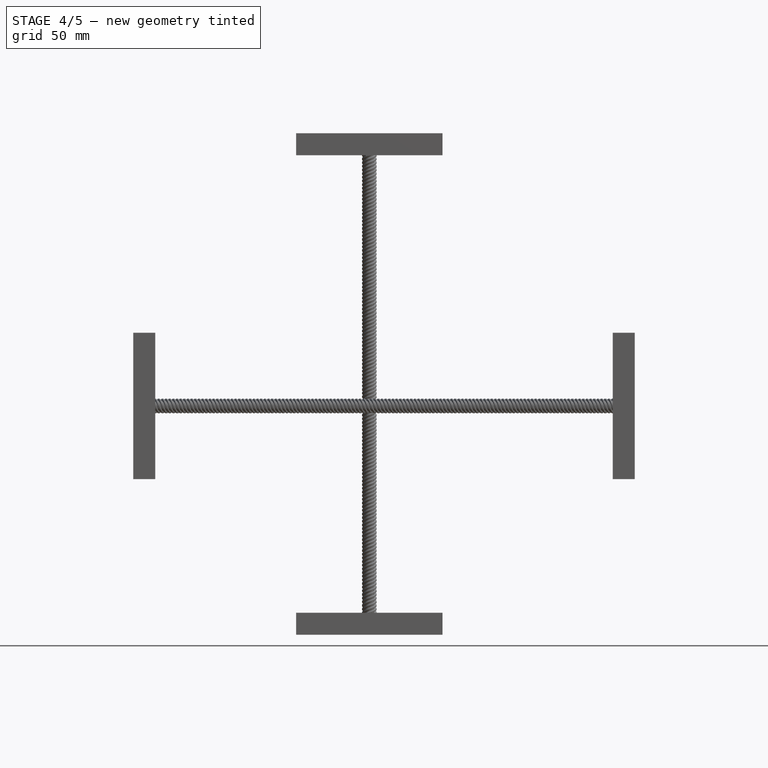
[diagram: stage 4 of 5 — front view after this stage's code; geometry added in this stage tinted green]
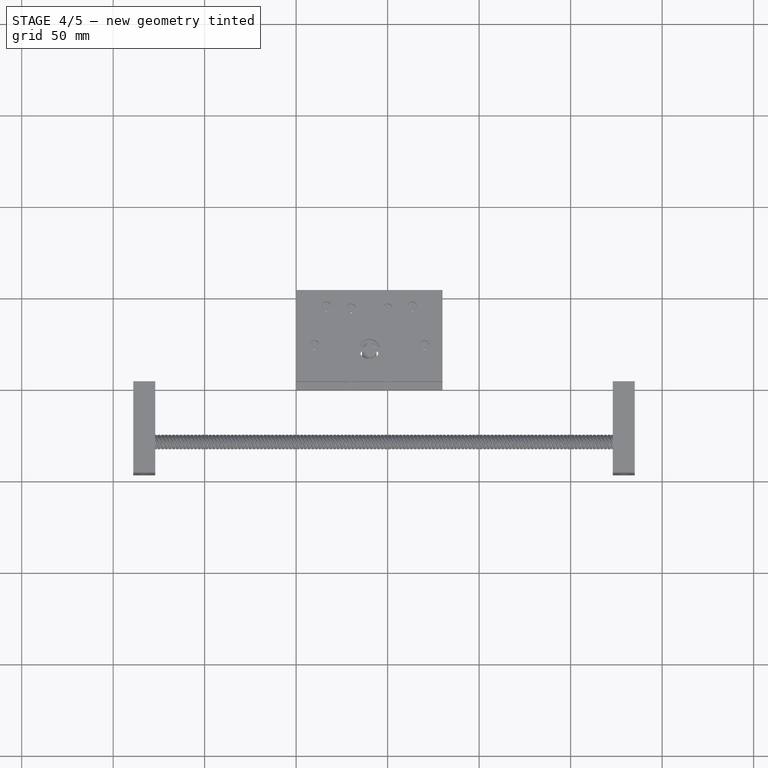
[diagram: stage 4 of 5 — top view after this stage's code; geometry added in this stage tinted green]
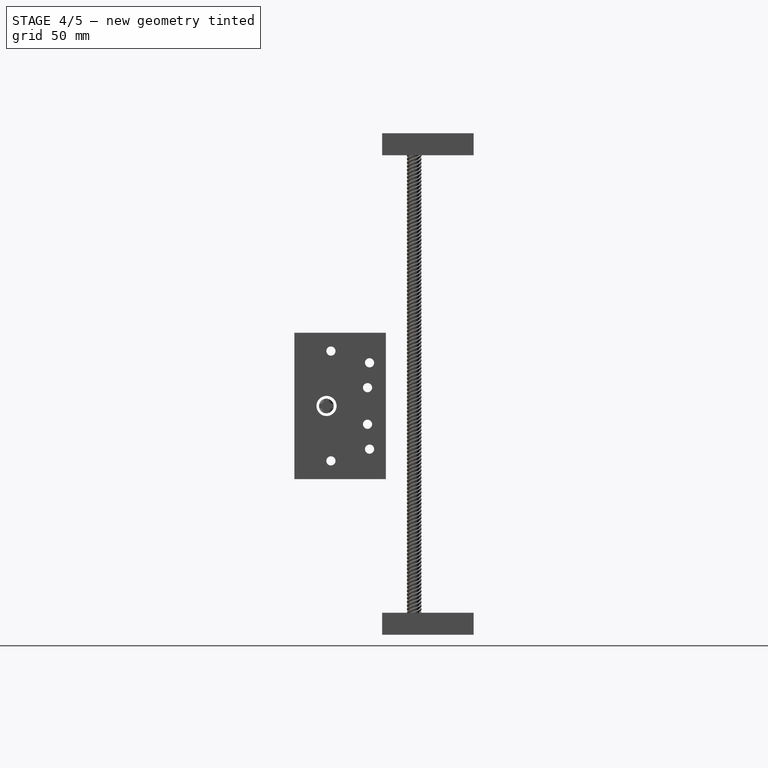
[diagram: stage 4 of 5 — right view after this stage's code; geometry added in this stage tinted green]
FEATURE [App::DocumentObjectGroup] Group001  label="endplate"
  Group = -> [Pad,Pocket,Pocket001,Pocket002]
FEATURE [Sketcher::SketchObject] Sketch005
  Placement = pos=(0,0,262) rot=(1,0,0;3.14159rad)
  sketch-geometry (11):
    g0: LineSegment StartX=0 StartY=0 StartZ=0 EndX=80 EndY=0 EndZ=0
    g1: LineSegment StartX=80 StartY=0 StartZ=0 EndX=80 EndY=50 EndZ=0
    g2: LineSegment StartX=80 StartY=50 StartZ=0 EndX=0 EndY=50 EndZ=0
    g3: LineSegment StartX=0 StartY=50 StartZ=0 EndX=0 EndY=0 EndZ=0
    g4: Circle CenterX=10 CenterY=30 CenterZ=0 NormalX=0 NormalY=0 NormalZ=1 Radius=2.5
    g5: Circle CenterX=30 CenterY=10 CenterZ=0 NormalX=0 NormalY=0 NormalZ=1 Radius=2.5
    g6: Circle CenterX=16.4 CenterY=8.9 CenterZ=0 NormalX=0 NormalY=0 NormalZ=1 Radius=2.5
    g7: Circle CenterX=50 CenterY=10 CenterZ=0 NormalX=0 NormalY=0 NormalZ=1 Radius=2.5
    g8: Circle CenterX=63.6 CenterY=8.9 CenterZ=0 NormalX=0 NormalY=0 NormalZ=1 Radius=2.5
    g9: Circle CenterX=70 CenterY=30 CenterZ=0 NormalX=0 NormalY=0 NormalZ=1 Radius=2.5
    g10: Circle CenterX=40 CenterY=32.4 CenterZ=0 NormalX=0 NormalY=0 NormalZ=1 Radius=5.5
  constraints (34):
    c: Coincident(g0,g1)
    c: Coincident(g1,g2)
    c: Coincident(g2,g3)
    c: Coincident(g3,g0)
    c: Horizontal(g0)
    c: Horizontal(g2)
    c: Vertical(g1)
    c: Vertical(g3)
    c: Coincident(g0,g-1)
    c: Radius(g4) = 2.5
    c: Radius(g9) = 2.5
    c: Radius(g8) = 2.5
    c: Radius(g7) = 2.5
    c: Radius(g5) = 2.5
    c: Radius(g6) = 2.5
    c: Radius(g10) = 5.5
    c: Equal(g0,g2)
    c: Equal(g3,g1)
    c: DistanceX(g2) = -80
    c: DistanceY(g3) = -50
    c: DistanceX(g1,g9) = -10
    c: DistanceY(g8,g0) = -8.9
    c: DistanceX(g8,g0) = 16.4
    c: DistanceX(g7,g0) = 30
    c: DistanceY(g7,g0) = -10
    c: DistanceX(g-1,g5) = 30
    c: DistanceY(g-1,g5) = 10
    c: DistanceY(g-1,g6) = 8.9
    c: DistanceX(g-1,g6) = 16.4
    c: DistanceX(g10,g2) = -40
    c: DistanceY(g10,g2) = 17.6
    c: DistanceY(g9,g0) = -30
    c: DistanceY(g-1,g4) = 30
    c: DistanceX(g-1,g4) = 10
FEATURE [PartDesign::Pad] Pad001
  Length = 12
  Length2 = 100
  Placement = pos=(0,0,262) rot=(1,0,0;3.14159rad)
  Sketch = -> Sketch005
  Type = 0
FEATURE [Sketcher::SketchObject] Sketch006
  Placement = pos=(0,-50,262) rot=(0,-0.707107,0.707107;3.14159rad)
  Support = -> Pad001 [Face3]
  sketch-geometry (2):
    g0: Circle CenterX=-30.0338 CenterY=5.85009 CenterZ=0 NormalX=0 NormalY=0 NormalZ=1 Radius=2.5
    g1: Circle CenterX=-50.0038 CenterY=5.78884 CenterZ=0 NormalX=0 NormalY=0 NormalZ=1 Radius=2.5
  constraints (2):
    c: Radius(g0) = 2.5
    c: Radius(g1) = 2.5
FEATURE [PartDesign::Pocket] Pocket003
  Length = 11
  Placement = pos=(0,0,262) rot=(1,0,0;3.14159rad)
  Sketch = -> Sketch006
  Type = 0
FEATURE [App::DocumentObjectGroup] Group002  label="endplate001"
  Group = -> [Pad001,Pocket003,Pocket004,Pocket005]
FEATURE [Part::Feature] Part__Feature  label="gantry assem v1"
  Placement = pos=(39.3463,-41.8643,117.223) rot=(0.57735,0.57735,-0.57735;2.0944rad)
  shape: bbox 77.52 x 6 x 77.51 mm, 60 faces (baked)
FEATURE [Part::Feature] Part__Feature001  label="gantry assem v002"
  Placement = pos=(53.5968,-41.8643,147.273) rot=(0.707107,0.707107,0;3.14159rad)
  shape: bbox 9.087 x 7.62 x 7.901 mm, 13 faces (baked)
FEATURE [Part::Feature] Part__Feature002  label="gantry assem v003"
  Placement = pos=(25.0968,-35.5143,87.2732) rot=(-0.458392,0.458392,-0.761416;1.84006rad)
  shape: bbox 8 x 6.35 x 8 mm, 4 faces (baked)
FEATURE [Part::Feature] Part__Feature003  label="gantry assem v004"
  Placement = pos=(53.5968,-41.8643,87.2732) rot=(0.707107,0.707107,0;3.14159rad)
  shape: bbox 9.087 x 7.62 x 7.901 mm, 13 faces (baked)
FEATURE [Part::Feature] Part__Feature004  label="gantry assem v005"
  Placement = pos=(25.0968,-35.5143,147.273) rot=(-0.458392,0.458392,-0.761416;1.84006rad)
  shape: bbox 8 x 6.35 x 8 mm, 4 faces (baked)
FEATURE [Part::Feature] Part__Feature005  label="gantry assem v006"
  Placement = pos=(25.0968,-48.1143,87.2732) rot=(0.706645,0.706645,-0.036122;3.2138rad)
  shape: bbox 9.5 x 27.17 x 9.5 mm, 18 faces (baked)
FEATURE [Part::Feature] Part__Feature006  label="gantry assem v007"
  Placement = pos=(53.5968,-48.1143,86.4832) rot=(0.706645,0.706645,-0.036122;3.2138rad)
  shape: bbox 9.5 x 27.17 x 9.5 mm, 18 faces (baked)
FEATURE [Part::Feature] Part__Feature007  label="gantry assem v008"
  Placement = pos=(53.5968,-48.1143,146.483) rot=(0.706645,0.706645,-0.036122;3.2138rad)
  shape: bbox 9.5 x 27.17 x 9.5 mm, 18 faces (baked)
FEATURE [Part::Feature] Part__Feature008  label="gantry assem v009"
  Placement = pos=(25.0968,-48.1143,147.273) rot=(0.704114,0.704114,0.09191;2.95829rad)
  shape: bbox 9.5 x 27.17 x 9.5 mm, 18 faces (baked)
FEATURE [Part::Feature] Part__Feature009  label="gantry assem v010"
  Placement = pos=(53.5968,-26.1143,146.483) rot=(0.427043,0.639388,0.639388;3.94879rad)
  shape: bbox 6 x 0.36 x 6 mm, 4 faces (baked)
FEATURE [Part::Feature] Part__Feature010  label="gantry assem v011"
  Placement = pos=(53.5968,-26.1143,146.483) rot=(0.427043,0.639388,0.639388;3.94879rad)
  shape: bbox 8.171 x 4.5 x 8.745 mm, 63 faces (baked)
FEATURE [Part::Feature] Part__Feature011  label="gantry assem v012"
  Placement = pos=(25.0968,-26.1143,87.2732) rot=(0.427043,0.639388,0.639388;3.94879rad)
  shape: bbox 6 x 0.36 x 6 mm, 4 faces (baked)
FEATURE [Part::Feature] Part__Feature012  label="gantry assem v013"
  Placement = pos=(25.0968,-26.1143,87.2732) rot=(0.427043,0.639388,0.639388;3.94879rad)
  shape: bbox 8.171 x 4.5 x 8.745 mm, 63 faces (baked)
FEATURE [Part::Feature] Part__Feature013  label="gantry assem v014"
  Placement = pos=(53.5968,-26.1143,86.4832) rot=(0.427043,0.639388,0.639388;3.94879rad)
  shape: bbox 6 x 0.36 x 6 mm, 4 faces (baked)
FEATURE [Part::Feature] Part__Feature014  label="gantry assem v015"
  Placement = pos=(53.5968,-26.1143,86.4832) rot=(0.427043,0.639388,0.639388;3.94879rad)
  shape: bbox 8.171 x 4.5 x 8.745 mm, 63 faces (baked)
FEATURE [Part::Feature] Part__Feature015  label="gantry assem v016"
  Placement = pos=(25.0968,-26.1143,147.273) rot=(0.427043,0.639388,0.639388;3.94879rad)
  shape: bbox 6 x 0.36 x 6 mm, 4 faces (baked)
FEATURE [Part::Feature] Part__Feature016  label="gantry assem v017"
  Placement = pos=(25.0968,-26.1143,147.273) rot=(0.427043,0.639388,0.639388;3.94879rad)
  shape: bbox 8.171 x 4.5 x 8.745 mm, 63 faces (baked)
FEATURE [Part::Feature] Part__Feature017  label="MINI WHEEL ASSEM"
  Placement = pos=(25.0968,-30.8143,87.2732) rot=(0.57735,0.57735,-0.57735;2.0944rad)
  shape: bbox 15.23 x 8.8 x 15.23 mm, 12 faces (baked)
FEATURE [Part::Feature] Part__Feature018  label="MINI WHEEL ASSEM001"
  Placement = pos=(25.0968,-30.3143,87.2732) rot=(0,0,-1;1.5708rad)
  shape: bbox 8 x 1 x 8 mm, 4 faces (baked)
FEATURE [Part::Feature] Part__Feature019  label="MINI WHEEL ASSEM002"
  Placement = pos=(25.0968,-28.2143,87.2732) rot=(0,0,-1;1.5708rad)
  shape: bbox 10 x 4.2 x 10 mm, 15 faces (baked)
FEATURE [Part::Feature] Part__Feature020  label="MINI WHEEL ASSEM003"
  Placement = pos=(25.0968,-33.4143,87.2732) rot=(0.7002,0.7002,0.139423;2.86453rad)
  shape: bbox 10 x 4.2 x 10 mm, 15 faces (baked)
FEATURE [Part::Feature] Part__Feature021  label="MINI WHEEL ASSEM004"
  Placement = pos=(53.5968,-30.8143,86.4832) rot=(0.57735,0.57735,-0.57735;2.0944rad)
  shape: bbox 15.23 x 8.8 x 15.23 mm, 12 faces (baked)
FEATURE [Part::Feature] Part__Feature022  label="MINI WHEEL ASSEM005"
  Placement = pos=(53.5968,-30.3143,86.4832) rot=(0,0,-1;1.5708rad)
  shape: bbox 8 x 1 x 8 mm, 4 faces (baked)
FEATURE [Part::Feature] Part__Feature023  label="MINI WHEEL ASSEM006"
  Placement = pos=(53.5968,-28.2143,86.4832) rot=(0,0,-1;1.5708rad)
  shape: bbox 10 x 4.2 x 10 mm, 15 faces (baked)
FEATURE [Part::Feature] Part__Feature024  label="MINI WHEEL ASSEM007"
  Placement = pos=(53.5968,-33.4143,86.4832) rot=(0.7002,0.7002,0.139423;2.86453rad)
  shape: bbox 10 x 4.2 x 10 mm, 15 faces (baked)
FEATURE [Part::Feature] Part__Feature025  label="MINI WHEEL ASSEM008"
  Placement = pos=(25.0968,-30.8143,147.273) rot=(0.57735,0.57735,-0.57735;2.0944rad)
  shape: bbox 15.23 x 8.8 x 15.23 mm, 12 faces (baked)
FEATURE [Part::Feature] Part__Feature026  label="MINI WHEEL ASSEM009"
  Placement = pos=(25.0968,-30.3143,147.273) rot=(0,0,-1;1.5708rad)
  shape: bbox 8 x 1 x 8 mm, 4 faces (baked)
FEATURE [Part::Feature] Part__Feature027  label="MINI WHEEL ASSEM010"
  Placement = pos=(25.0968,-28.2143,147.273) rot=(0,0,-1;1.5708rad)
  shape: bbox 10 x 4.2 x 10 mm, 15 faces (baked)
FEATURE [Part::Feature] Part__Feature028  label="MINI WHEEL ASSEM011"
  Placement = pos=(25.0968,-33.4143,147.273) rot=(0.7002,0.7002,0.139423;2.86453rad)
  shape: bbox 10 x 4.2 x 10 mm, 15 faces (baked)
FEATURE [Part::Feature] Part__Feature029  label="MINI WHEEL ASSEM012"
  Placement = pos=(53.5968,-30.8143,146.483) rot=(0.57735,0.57735,-0.57735;2.0944rad)
  shape: bbox 15.23 x 8.8 x 15.23 mm, 12 faces (baked)
FEATURE [Part::Feature] Part__Feature030  label="MINI WHEEL ASSEM013"
  Placement = pos=(53.5968,-30.3143,146.483) rot=(0,0,-1;1.5708rad)
  shape: bbox 8 x 1 x 8 mm, 4 faces (baked)
FEATURE [Part::Feature] Part__Feature031  label="MINI WHEEL ASSEM014"
  Placement = pos=(53.5968,-28.2143,146.483) rot=(0,0,-1;1.5708rad)
  shape: bbox 10 x 4.2 x 10 mm, 15 faces (baked)
FEATURE [Part::Feature] Part__Feature032  label="MINI WHEEL ASSEM015"
  Placement = pos=(53.5968,-33.4143,146.483) rot=(0.7002,0.7002,0.139423;2.86453rad)
  shape: bbox 10 x 4.2 x 10 mm, 15 faces (baked)
FEATURE [App::DocumentObjectGroup] Group003  label="gantry assembly"
  Group = -> [Part__Feature,Part__Feature001,Part__Feature002,Part__Feature003,Part__Feature004,Part__Feature005,Part__Feature006,Part__Feature007,Part__Feature008,Part__Feature009,Part__Feature010,Part__Feature011,Part__Feature012,Part__Feature013,Part__Feature014,Part__Feature015,Part__Feature016,Part__Feature017,Part__Feature018,Part__Feature019,Part__Feature020,Part__Feature021,Part__Feature022,+10 more]
FEATURE [Part::Feature] Part__Feature033  label="1.5 inch Aluminum Spacer"
  Placement = pos=(63,-7,-12) rot=(0,1,0;1.5708rad)
  shape: bbox 8 x 8 x 38.1 mm, 6 faces (baked)
FEATURE [Part::Feature] Part__Feature034  label="1.5 inch Aluminum Spacer001"
  Placement = pos=(15,-7,-12) rot=(0,1,0;1.5708rad)
  shape: bbox 8 x 8 x 38.1 mm, 6 faces (baked)
FEATURE [Part::Feature] Part__Feature036  label="5mm x 8mm Flexible Coupling"
  Placement = pos=(40,-32,-15) rot=(0,0,1;0rad)
  shape: bbox 24 x 23.97 x 3.49 mm, 14 faces (baked)
FEATURE [Part::Feature] Part__Feature037  label="5mm x 8mm Flexible Coupling001"
  Placement = pos=(40,-32,-15) rot=(0,0,1;0rad)
  shape: bbox 24 x 23.97 x 3.49 mm, 10 faces (baked)
FEATURE [Part::Feature] Part__Feature038  label="5mm x 8mm Flexible Coupling002"
  Placement = pos=(40,-32,-15) rot=(0,0,1;0rad)
  shape: bbox 24 x 23.97 x 3.49 mm, 10 faces (baked)
FEATURE [Part::Feature] Part__Feature039  label="5mm x 8mm Flexible Coupling003"
  Placement = pos=(40,-32,-15) rot=(0,0,1;0rad)
  shape: bbox 24 x 23.96 x 3.67 mm, 10 faces (baked)
FEATURE [Part::Feature] Part__Feature040  label="5mm x 8mm Flexible Coupling004"
  Placement = pos=(40,-32,-15) rot=(0,0,1;0rad)
  shape: bbox 24 x 23.97 x 9.007 mm, 31 faces (baked)
FEATURE [Part::Feature] Part__Feature041  label="5mm x 8mm Flexible Coupling005"
  Placement = pos=(40,-32,-15) rot=(0,0,1;0rad)
  shape: bbox 24 x 23.96 x 10.64 mm, 31 faces (baked)
FEATURE [App::DocumentObjectGroup] Group004  label="5mm x 8mm Flexible Coupling006"
  Group = -> [Part__Feature036,Part__Feature037,Part__Feature038,Part__Feature039,Part__Feature040,Part__Feature041]
FEATURE [Part::Feature] Part__Feature042  label="Nema23Motor_part"
  Placement = pos=(-1132,-90,-150) rot=(-1,0,0;1.5708rad)
  shape: bbox 61.91 x 61.91 x 75.2 mm, 24 faces (baked)
FEATURE [Part::Feature] Part__Feature043  label="8mm TR8_8 Leadscrew001"
  Placement = pos=(41,-34,1000) rot=(0,0,1;0rad)
  shape: bbox 8.1 x 8.1 x 1001 mm, 1020 faces (baked)
FEATURE [Part::Box] Box  label="Cube"
  Height = 750
  Length = 10
  Placement = pos=(36,-39,0) rot=(0,0,1;0rad)
  Width = 10
FEATURE [Part::Cut] Cut
  Base = -> Part__Feature043
  Placement = pos=(-1,1.5,-750) rot=(0,0,1;0rad)
  Tool = -> Box
FEATURE [Sketcher::SketchObject] Sketch012
  Placement = pos=(-77,-48,73) rot=(0.707107,0,0.707107;3.14159rad)
  Support = -> Pocket006 [Face5]
  sketch-geometry (1):
    g0: Circle CenterX=40 CenterY=32.4 CenterZ=0 NormalX=0 NormalY=0 NormalZ=1 Radius=8.05
  constraints (3):
    c: Radius(g0) = 8.05
    c: DistanceY(g-1,g0) = 32.4
    c: DistanceX(g-1,g0) = 40
FEATURE [PartDesign::Pocket] Pocket007
  Length = 4.5
  Placement = pos=(-89,-48,73) rot=(0.707107,0,0.707107;3.14159rad)
  Sketch = -> Sketch012
  Type = 0
FEATURE [Sketcher::SketchObject] Sketch013
  Placement = pos=(-89,-48,73) rot=(0,-1,0;1.5708rad)
  Support = -> Pocket007 [Face4]
  sketch-geometry (4):
    g0: Circle CenterX=10 CenterY=-30 CenterZ=0 NormalX=0 NormalY=0 NormalZ=1 Radius=4.6
    g1: Circle CenterX=70 CenterY=-30 CenterZ=0 NormalX=0 NormalY=0 NormalZ=1 Radius=4.62459
    g2: Circle CenterX=30 CenterY=-10 CenterZ=0 NormalX=0 NormalY=0 NormalZ=1 Radius=4.58345
    g3: Circle CenterX=50 CenterY=-10 CenterZ=0 NormalX=0 NormalY=0 NormalZ=1 Radius=4.6246
  constraints (9):
    c: Radius(g0) = 4.6
    c: DistanceX(g-1,g2) = 30
    c: DistanceY(g-1,g2) = -10
    c: DistanceX(g-1,g3) = 50
    c: DistanceY(g-1,g3) = -10
    c: DistanceY(g-1,g0) = -30
    c: DistanceX(g-1,g0) = 10
    c: DistanceY(g-1,g1) = -30
    c: DistanceX(g-1,g1) = 70
FEATURE [PartDesign::Pocket] Pocket008
  Length = 1.55
  Placement = pos=(-89,-48,73) rot=(0.707107,0,0.707107;3.14159rad)
  Sketch = -> Sketch013
  Type = 0
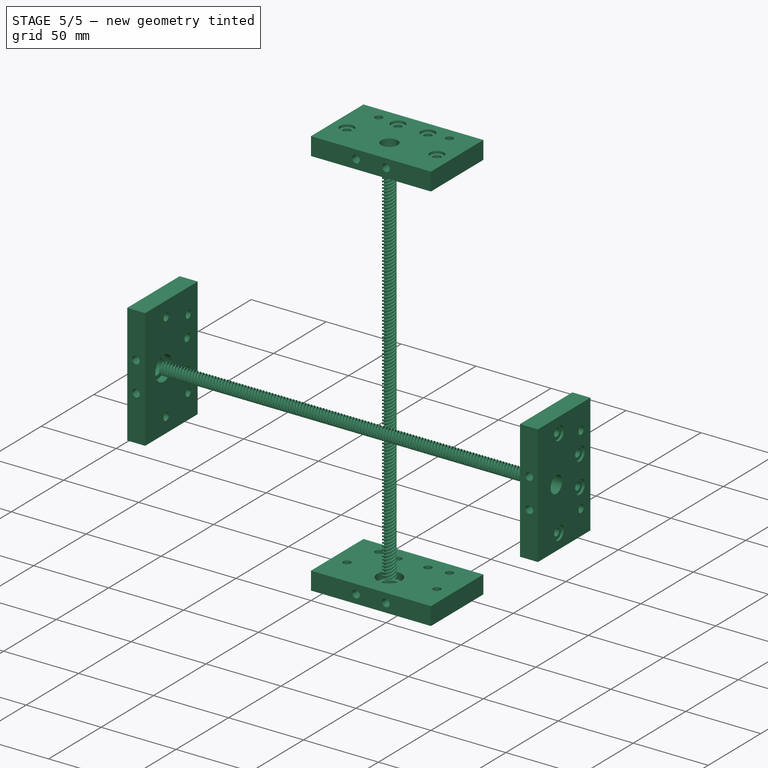
[diagram: stage 5 of 5 — iso view after this stage's code; geometry added in this stage tinted green]
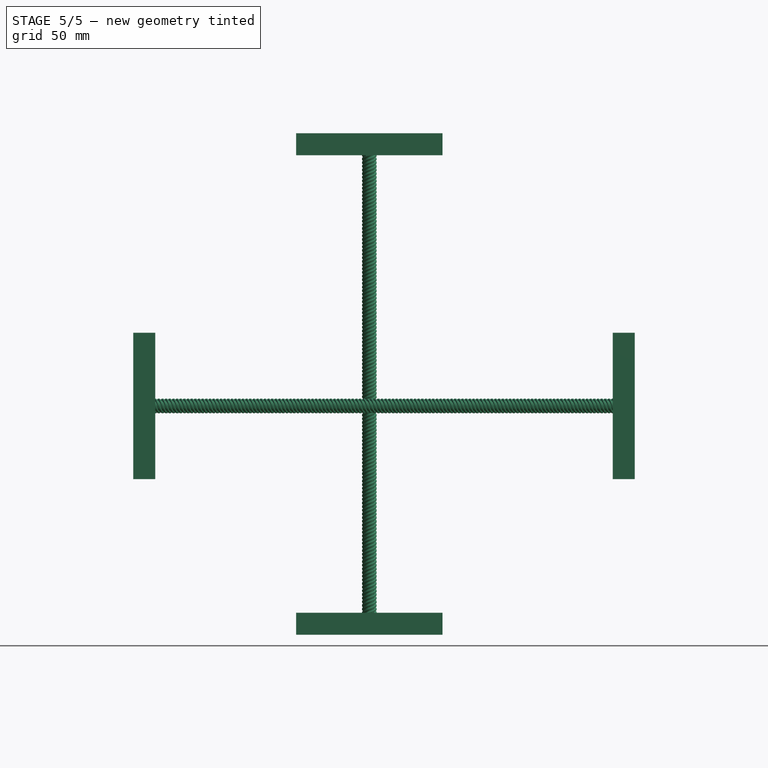
[diagram: stage 5 of 5 — front view after this stage's code; geometry added in this stage tinted green]
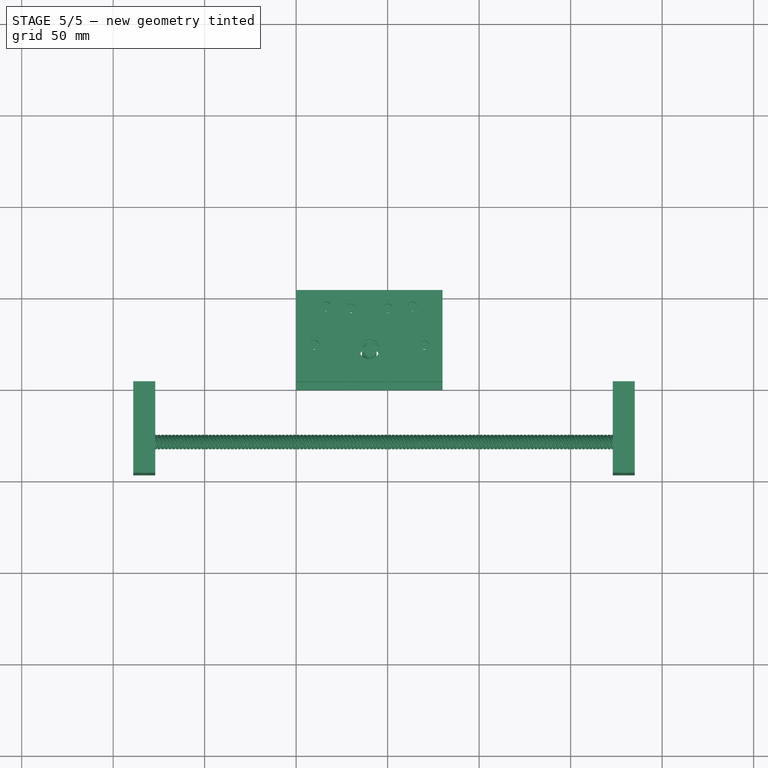
[diagram: stage 5 of 5 — top view after this stage's code; geometry added in this stage tinted green]
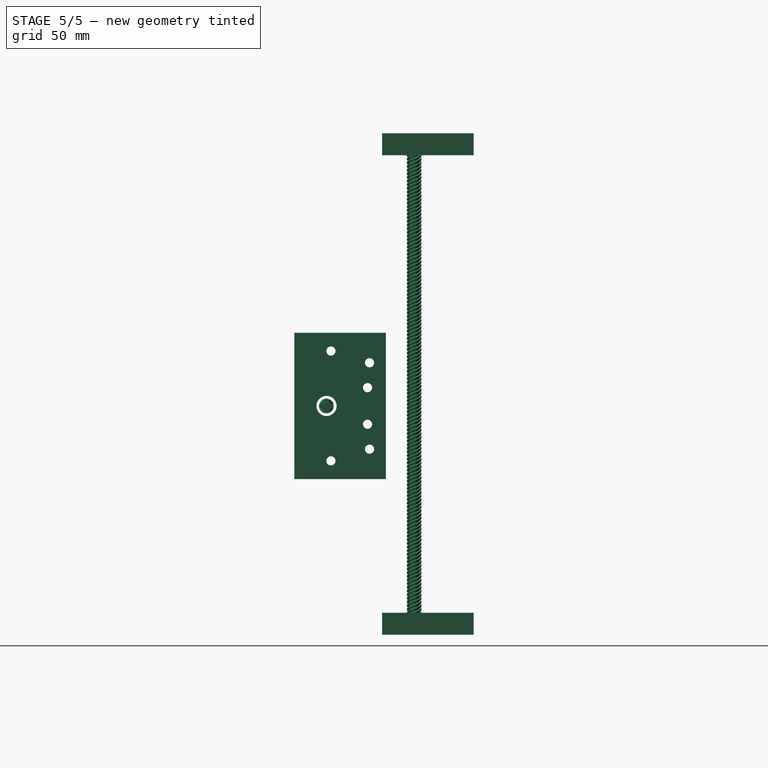
[diagram: stage 5 of 5 — right view after this stage's code; geometry added in this stage tinted green]
FEATURE [Sketcher::SketchObject] Sketch
  sketch-geometry (252):
    g0: LineSegment StartX=57.3 StartY=-18.2 StartZ=0 EndX=57.3 EndY=-16.239 EndZ=0
    g1: LineSegment StartX=57.3 StartY=-16.239 StartZ=0 EndX=53.9 EndY=-12.839 EndZ=0
    g2: LineSegment StartX=53.9 StartY=-12.839 StartZ=0 EndX=53.9 EndY=-7.161 EndZ=0
    g3: LineSegment StartX=53.9 StartY=-7.161 StartZ=0 EndX=57.3 EndY=-3.761 EndZ=0
    g4: LineSegment StartX=57.3 StartY=-3.761 StartZ=0 EndX=57.3 EndY=-1.8 EndZ=0
    g5: LineSegment StartX=57.3 StartY=-1.8 StartZ=0 EndX=60 EndY=-1.8 EndZ=0
    g6: LineSegment StartX=60 StartY=-1.8 StartZ=0 EndX=62.7 EndY=-1.8 EndZ=0
    g7: LineSegment StartX=62.7 StartY=-1.8 StartZ=0 EndX=62.7 EndY=-3.761 EndZ=0
    g8: LineSegment StartX=62.7 StartY=-3.761 StartZ=0 EndX=66.1 EndY=-7.161 EndZ=0
    g9: LineSegment StartX=66.1 StartY=-7.161 StartZ=0 EndX=66.1 EndY=-12.839 EndZ=0
    g10: LineSegment StartX=66.1 StartY=-12.839 StartZ=0 EndX=60.6708 EndY=-18.2 EndZ=0
    g11: LineSegment StartX=60.6708 StartY=-18.2 StartZ=0 EndX=60 EndY=-18.2 EndZ=0
    g12: LineSegment StartX=60 StartY=-18.2 StartZ=0 EndX=57.3 EndY=-18.2 EndZ=0
    g13: LineSegment StartX=20 StartY=-18.2 StartZ=0 EndX=19.3292 EndY=-18.2 EndZ=0
    g14: LineSegment StartX=19.3292 StartY=-18.2 StartZ=0 EndX=13.9 EndY=-12.839 EndZ=0
    g15: LineSegment StartX=13.9 StartY=-12.839 StartZ=0 EndX=13.9 EndY=-7.161 EndZ=0
    g16: LineSegment StartX=13.9 StartY=-7.161 StartZ=0 EndX=17.3 EndY=-3.761 EndZ=0
    g17: LineSegment StartX=17.3 StartY=-3.761 StartZ=0 EndX=17.3 EndY=-1.8 EndZ=0
    g18: LineSegment StartX=17.3 StartY=-1.8 StartZ=0 EndX=20 EndY=-1.8 EndZ=0
    g19: LineSegment StartX=20 StartY=-1.8 StartZ=0 EndX=22.7 EndY=-1.8 EndZ=0
    g20: LineSegment StartX=22.7 StartY=-1.8 StartZ=0 EndX=22.7 EndY=-3.761 EndZ=0
    g21: LineSegment StartX=22.7 StartY=-3.761 StartZ=0 EndX=26.1 EndY=-7.161 EndZ=0
    g22: LineSegment StartX=26.1 StartY=-7.161 StartZ=0 EndX=26.1 EndY=-12.839 EndZ=0
    g23: LineSegment StartX=26.1 StartY=-12.839 StartZ=0 EndX=22.7 EndY=-16.239 EndZ=0
    g24: LineSegment StartX=22.7 StartY=-16.239 StartZ=0 EndX=22.7 EndY=-18.2 EndZ=0
    g25: LineSegment StartX=22.7 StartY=-18.2 StartZ=0 EndX=20 EndY=-18.2 EndZ=0
    g26: ArcOfCircle CenterX=1.5 CenterY=-1.5 CenterZ=0 NormalX=0 NormalY=0 NormalZ=1 Radius=1.5 StartAngle=1.5708 EndAngle=3.14159
    g27: LineSegment StartX=5.114 StartY=0 StartZ=0 EndX=1.5 EndY=0 EndZ=0
    g28: LineSegment StartX=0 StartY=-1.5 StartZ=0 EndX=0 EndY=-5.2509 EndZ=0
    g29: LineSegment StartX=0 StartY=-5.2509 StartZ=0 EndX=1.3621 EndY=-6.613 EndZ=0
    g30: LineSegment StartX=1.3621 StartY=-6.613 StartZ=0 EndX=1.6631 EndY=-6.613 EndZ=0
    g31: LineSegment StartX=1.6631 StartY=-6.613 StartZ=0 EndX=1.6631 EndY=-4.5 EndZ=0
    g32: LineSegment StartX=1.6631 StartY=-4.5 StartZ=0 EndX=3.3021 EndY=-4.5 EndZ=0
    g33: LineSegment StartX=3.3021 StartY=-4.5 StartZ=0 EndX=6.1 EndY=-7.2979 EndZ=0
    g34: LineSegment StartX=6.1 StartY=-7.2979 StartZ=0 EndX=6.1 EndY=-12.7021 EndZ=0
    g35: LineSegment StartX=6.1 StartY=-12.7021 StartZ=0 EndX=3.3021 EndY=-15.5 EndZ=0
    g36: LineSegment StartX=3.3021 StartY=-15.5 StartZ=0 EndX=1.6631 EndY=-15.5 EndZ=0
    g37: LineSegment StartX=1.6631 StartY=-15.5 StartZ=0 EndX=1.6631 EndY=-13.387 EndZ=0
    g38: LineSegment StartX=1.6631 StartY=-13.387 StartZ=0 EndX=1.3621 EndY=-13.387 EndZ=0
    g39: LineSegment StartX=1.3621 StartY=-13.387 StartZ=0 EndX=0 EndY=-14.7491 EndZ=0
    g40: LineSegment StartX=0 StartY=-14.7491 StartZ=0 EndX=0 EndY=-25.2509 EndZ=0
    g41: LineSegment StartX=0 StartY=-25.2509 StartZ=0 EndX=1.3621 EndY=-26.613 EndZ=0
    g42: LineSegment StartX=1.3621 StartY=-26.613 StartZ=0 EndX=1.6631 EndY=-26.613 EndZ=0
    g43: LineSegment StartX=1.6631 StartY=-26.613 StartZ=0 EndX=1.6631 EndY=-24.5 EndZ=0
    g44: LineSegment StartX=1.6631 StartY=-24.5 StartZ=0 EndX=3.3021 EndY=-24.5 EndZ=0
    g45: LineSegment StartX=3.3021 StartY=-24.5 StartZ=0 EndX=6.1 EndY=-27.2979 EndZ=0
    g46: LineSegment StartX=6.1 StartY=-27.2979 StartZ=0 EndX=6.1 EndY=-32.7021 EndZ=0
    g47: LineSegment StartX=6.1 StartY=-32.7021 StartZ=0 EndX=3.3021 EndY=-35.5 EndZ=0
    g48: LineSegment StartX=3.3021 StartY=-35.5 StartZ=0 EndX=1.6631 EndY=-35.5 EndZ=0
    g49: LineSegment StartX=1.6631 StartY=-35.5 StartZ=0 EndX=1.6631 EndY=-33.387 EndZ=0
    g50: LineSegment StartX=1.6631 StartY=-33.387 StartZ=0 EndX=1.3621 EndY=-33.387 EndZ=0
    g51: LineSegment StartX=1.3621 StartY=-33.387 StartZ=0 EndX=0 EndY=-34.7491 EndZ=0
    g52: LineSegment StartX=0 StartY=-34.7491 StartZ=0 EndX=0 EndY=-38.5 EndZ=0
    g53: ArcOfCircle CenterX=1.5 CenterY=-38.5 CenterZ=0 NormalX=0 NormalY=0 NormalZ=1 Radius=1.5 StartAngle=3.14159 EndAngle=4.71239
    g54: LineSegment StartX=1.5 StartY=-40 StartZ=0 EndX=5.114 EndY=-40 EndZ=0
    g55: LineSegment StartX=5.114 StartY=-40 StartZ=0 EndX=6.613 EndY=-38.501 EndZ=0
    g56: LineSegment StartX=6.613 StartY=-38.501 StartZ=0 EndX=6.613 EndY=-38.2 EndZ=0
    g57: LineSegment StartX=6.613 StartY=-38.2 StartZ=0 EndX=4.5 EndY=-38.2 EndZ=0
    g58: LineSegment StartX=4.5 StartY=-38.2 StartZ=0 EndX=4.5 EndY=-36.561 EndZ=0
    g59: LineSegment StartX=4.5 StartY=-36.561 StartZ=0 EndX=7.161 EndY=-33.9 EndZ=0
    g60: LineSegment StartX=7.161 StartY=-33.9 StartZ=0 EndX=12.839 EndY=-33.9 EndZ=0
    g61: LineSegment StartX=12.839 StartY=-33.9 StartZ=0 EndX=15.5 EndY=-36.561 EndZ=0
    g62: LineSegment StartX=15.5 StartY=-36.561 StartZ=0 EndX=15.5 EndY=-38.2 EndZ=0
    g63: LineSegment StartX=15.5 StartY=-38.2 StartZ=0 EndX=13.387 EndY=-38.2 EndZ=0
    g64: LineSegment StartX=13.387 StartY=-38.2 StartZ=0 EndX=13.387 EndY=-38.501 EndZ=0
    g65: LineSegment StartX=13.387 StartY=-38.501 StartZ=0 EndX=14.886 EndY=-40 EndZ=0
    g66: LineSegment StartX=14.886 StartY=-40 StartZ=0 EndX=18.5 EndY=-40 EndZ=0
    g67: ArcOfCircle CenterX=18.5 CenterY=-38.5 CenterZ=0 NormalX=0 NormalY=0 NormalZ=1 Radius=1.5 StartAngle=4.71239 EndAngle=6.28319
    g68: LineSegment StartX=20 StartY=-38.5 StartZ=0 EndX=20 EndY=-34.886 EndZ=0
    g69: LineSegment StartX=20 StartY=-34.886 StartZ=0 EndX=18.501 EndY=-33.387 EndZ=0
    g70: LineSegment StartX=18.501 StartY=-33.387 StartZ=0 EndX=18.2 EndY=-33.387 EndZ=0
    g71: LineSegment StartX=18.2 StartY=-33.387 StartZ=0 EndX=18.2 EndY=-35.5 EndZ=0
    g72: LineSegment StartX=18.2 StartY=-35.5 StartZ=0 EndX=16.561 EndY=-35.5 EndZ=0
    g73: LineSegment StartX=16.561 StartY=-35.5 StartZ=0 EndX=13.9 EndY=-32.839 EndZ=0
    g74: LineSegment StartX=13.9 StartY=-32.839 StartZ=0 EndX=13.9 EndY=-27.161 EndZ=0
    g75: LineSegment StartX=13.9 StartY=-27.161 StartZ=0 EndX=16.561 EndY=-24.5 EndZ=0
    g76: LineSegment StartX=16.561 StartY=-24.5 StartZ=0 EndX=18.2 EndY=-24.5 EndZ=0
    g77: LineSegment StartX=18.2 StartY=-24.5 StartZ=0 EndX=18.2 EndY=-26.613 EndZ=0
    g78: LineSegment StartX=18.2 StartY=-26.613 StartZ=0 EndX=18.501 EndY=-26.613 EndZ=0
    g79: LineSegment StartX=18.501 StartY=-26.613 StartZ=0 EndX=20 EndY=-25.114 EndZ=0
    g80: LineSegment StartX=20 StartY=-25.114 StartZ=0 EndX=20 EndY=-20 EndZ=0
    g81: LineSegment StartX=20 StartY=-20 StartZ=0 EndX=25.114 EndY=-20 EndZ=0
    g82: LineSegment StartX=25.114 StartY=-20 StartZ=0 EndX=26.613 EndY=-18.501 EndZ=0
    g83: LineSegment StartX=26.613 StartY=-18.501 StartZ=0 EndX=26.613 EndY=-18.2 EndZ=0
    g84: LineSegment StartX=26.613 StartY=-18.2 StartZ=0 EndX=24.5 EndY=-18.2 EndZ=0
    g85: LineSegment StartX=24.5 StartY=-18.2 StartZ=0 EndX=24.5 EndY=-16.561 EndZ=0
    g86: LineSegment StartX=24.5 StartY=-16.561 StartZ=0 EndX=27.161 EndY=-13.9 EndZ=0
    g87: LineSegment StartX=27.161 StartY=-13.9 StartZ=0 EndX=32.839 EndY=-13.9 EndZ=0
    g88: LineSegment StartX=32.839 StartY=-13.9 StartZ=0 EndX=35.5 EndY=-16.561 EndZ=0
    g89: LineSegment StartX=35.5 StartY=-16.561 StartZ=0 EndX=35.5 EndY=-18.2 EndZ=0
    g90: LineSegment StartX=35.5 StartY=-18.2 StartZ=0 EndX=33.387 EndY=-18.2 EndZ=0
    g91: LineSegment StartX=33.387 StartY=-18.2 StartZ=0 EndX=33.387 EndY=-18.501 EndZ=0
    g92: LineSegment StartX=33.387 StartY=-18.501 StartZ=0 EndX=34.886 EndY=-20 EndZ=0
    g93: LineSegment StartX=34.886 StartY=-20 StartZ=0 EndX=45.114 EndY=-20 EndZ=0
    g94: LineSegment StartX=45.114 StartY=-20 StartZ=0 EndX=46.613 EndY=-18.501 EndZ=0
    g95: LineSegment StartX=46.613 StartY=-18.501 StartZ=0 EndX=46.613 EndY=-18.2 EndZ=0
    g96: LineSegment StartX=46.613 StartY=-18.2 StartZ=0 EndX=44.5 EndY=-18.2 EndZ=0
    g97: LineSegment StartX=44.5 StartY=-18.2 StartZ=0 EndX=44.5 EndY=-16.561 EndZ=0
    g98: LineSegment StartX=44.5 StartY=-16.561 StartZ=0 EndX=47.161 EndY=-13.9 EndZ=0
    g99: LineSegment StartX=47.161 StartY=-13.9 StartZ=0 EndX=52.839 EndY=-13.9 EndZ=0
    g100: LineSegment StartX=52.839 StartY=-13.9 StartZ=0 EndX=55.5 EndY=-16.561 EndZ=0
    g101: LineSegment StartX=55.5 StartY=-16.561 StartZ=0 EndX=55.5 EndY=-18.2 EndZ=0
    g102: LineSegment StartX=55.5 StartY=-18.2 StartZ=0 EndX=53.387 EndY=-18.2 EndZ=0
    g103: LineSegment StartX=53.387 StartY=-18.2 StartZ=0 EndX=53.387 EndY=-18.501 EndZ=0
    g104: LineSegment StartX=53.387 StartY=-18.501 StartZ=0 EndX=54.886 EndY=-20 EndZ=0
    g105: LineSegment StartX=54.886 StartY=-20 StartZ=0 EndX=54.8918 EndY=-20 EndZ=0
    g106: LineSegment StartX=54.8918 StartY=-20 StartZ=0 EndX=55.1918 EndY=-19.9988 EndZ=0
    g107: LineSegment StartX=55.1918 StartY=-19.9988 StartZ=0 EndX=60 EndY=-20 EndZ=0
    g108: LineSegment StartX=60 StartY=-20 StartZ=0 EndX=60 EndY=-25.114 EndZ=0
    g109: LineSegment StartX=60 StartY=-25.114 StartZ=0 EndX=61.499 EndY=-26.613 EndZ=0
    g110: LineSegment StartX=61.499 StartY=-26.613 StartZ=0 EndX=61.8 EndY=-26.613 EndZ=0
    g111: LineSegment StartX=61.8 StartY=-26.613 StartZ=0 EndX=61.8 EndY=-24.5 EndZ=0
    g112: LineSegment StartX=61.8 StartY=-24.5 StartZ=0 EndX=63.439 EndY=-24.5 EndZ=0
    g113: LineSegment StartX=63.439 StartY=-24.5 StartZ=0 EndX=66.1 EndY=-27.161 EndZ=0
    g114: LineSegment StartX=66.1 StartY=-27.161 StartZ=0 EndX=66.1 EndY=-32.839 EndZ=0
    g115: LineSegment StartX=66.1 StartY=-32.839 StartZ=0 EndX=63.439 EndY=-35.5 EndZ=0
    g116: LineSegment StartX=63.439 StartY=-35.5 StartZ=0 EndX=61.8 EndY=-35.5 EndZ=0
    g117: LineSegment StartX=61.8 StartY=-35.5 StartZ=0 EndX=61.8 EndY=-33.387 EndZ=0
    g118: LineSegment StartX=61.8 StartY=-33.387 StartZ=0 EndX=61.499 EndY=-33.387 EndZ=0
    g119: LineSegment StartX=61.499 StartY=-33.387 StartZ=0 EndX=60 EndY=-34.886 EndZ=0
    g120: LineSegment StartX=60 StartY=-34.886 StartZ=0 EndX=60 EndY=-38.5 EndZ=0
    g121: ArcOfCircle CenterX=61.5 CenterY=-38.5 CenterZ=0 NormalX=0 NormalY=0 NormalZ=1 Radius=1.5 StartAngle=3.14159 EndAngle=4.71239
    g122: LineSegment StartX=61.5 StartY=-40 StartZ=0 EndX=65.114 EndY=-40 EndZ=0
    g123: LineSegment StartX=65.114 StartY=-40 StartZ=0 EndX=66.613 EndY=-38.501 EndZ=0
    g124: LineSegment StartX=66.613 StartY=-38.501 StartZ=0 EndX=66.613 EndY=-38.2 EndZ=0
    g125: LineSegment StartX=66.613 StartY=-38.2 StartZ=0 EndX=64.5 EndY=-38.2 EndZ=0
    g126: LineSegment StartX=64.5 StartY=-38.2 StartZ=0 EndX=64.5 EndY=-36.561 EndZ=0
    g127: LineSegment StartX=64.5 StartY=-36.561 StartZ=0 EndX=67.161 EndY=-33.9 EndZ=0
    g128: LineSegment StartX=67.161 StartY=-33.9 StartZ=0 EndX=72.839 EndY=-33.9 EndZ=0
    g129: LineSegment StartX=72.839 StartY=-33.9 StartZ=0 EndX=75.5 EndY=-36.561 EndZ=0
    g130: LineSegment StartX=75.5 StartY=-36.561 StartZ=0 EndX=75.5 EndY=-38.2 EndZ=0
    g131: LineSegment StartX=75.5 StartY=-38.2 StartZ=0 EndX=73.387 EndY=-38.2 EndZ=0
    g132: LineSegment StartX=73.387 StartY=-38.2 StartZ=0 EndX=73.387 EndY=-38.501 EndZ=0
    g133: LineSegment StartX=73.387 StartY=-38.501 StartZ=0 EndX=74.886 EndY=-40 EndZ=0
    g134: LineSegment StartX=74.886 StartY=-40 StartZ=0 EndX=78.5 EndY=-40 EndZ=0
    g135: ArcOfCircle CenterX=78.5 CenterY=-38.5 CenterZ=0 NormalX=0 NormalY=0 NormalZ=1 Radius=1.5 StartAngle=4.71239 EndAngle=6.28319
    g136: LineSegment StartX=80 StartY=-38.5 StartZ=0 EndX=80 EndY=-34.7491 EndZ=0
    g137: LineSegment StartX=80 StartY=-34.7491 StartZ=0 EndX=78.6379 EndY=-33.387 EndZ=0
    g138: LineSegment StartX=78.6379 StartY=-33.387 StartZ=0 EndX=78.3369 EndY=-33.387 EndZ=0
    g139: LineSegment StartX=78.3369 StartY=-33.387 StartZ=0 EndX=78.3369 EndY=-35.5 EndZ=0
    g140: LineSegment StartX=78.3369 StartY=-35.5 StartZ=0 EndX=76.6979 EndY=-35.5 EndZ=0
    g141: LineSegment StartX=76.6979 StartY=-35.5 StartZ=0 EndX=73.9 EndY=-32.7021 EndZ=0
    g142: LineSegment StartX=73.9 StartY=-32.7021 StartZ=0 EndX=73.9 EndY=-27.2979 EndZ=0
    g143: LineSegment StartX=73.9 StartY=-27.2979 StartZ=0 EndX=76.6979 EndY=-24.5 EndZ=0
    g144: LineSegment StartX=76.6979 StartY=-24.5 StartZ=0 EndX=78.3369 EndY=-24.5 EndZ=0
    g145: LineSegment StartX=78.3369 StartY=-24.5 StartZ=0 EndX=78.3369 EndY=-26.613 EndZ=0
    g146: LineSegment StartX=78.3369 StartY=-26.613 StartZ=0 EndX=78.6379 EndY=-26.613 EndZ=0
    g147: LineSegment StartX=78.6379 StartY=-26.613 StartZ=0 EndX=80 EndY=-25.2509 EndZ=0
    g148: LineSegment StartX=80 StartY=-25.2509 StartZ=0 EndX=80 EndY=-14.7491 EndZ=0
    g149: LineSegment StartX=80 StartY=-14.7491 StartZ=0 EndX=78.6379 EndY=-13.387 EndZ=0
    g150: LineSegment StartX=78.6379 StartY=-13.387 StartZ=0 EndX=78.3369 EndY=-13.387 EndZ=0
    g151: LineSegment StartX=78.3369 StartY=-13.387 StartZ=0 EndX=78.3369 EndY=-15.5 EndZ=0
    g152: LineSegment StartX=78.3369 StartY=-15.5 StartZ=0 EndX=76.6979 EndY=-15.5 EndZ=0
    g153: LineSegment StartX=76.6979 StartY=-15.5 StartZ=0 EndX=73.9 EndY=-12.7021 EndZ=0
    g154: LineSegment StartX=73.9 StartY=-12.7021 StartZ=0 EndX=73.9 EndY=-7.2979 EndZ=0
    g155: LineSegment StartX=73.9 StartY=-7.2979 StartZ=0 EndX=76.6979 EndY=-4.5 EndZ=0
    g156: LineSegment StartX=76.6979 StartY=-4.5 StartZ=0 EndX=78.3369 EndY=-4.5 EndZ=0
    g157: LineSegment StartX=78.3369 StartY=-4.5 StartZ=0 EndX=78.3369 EndY=-6.613 EndZ=0
    g158: LineSegment StartX=78.3369 StartY=-6.613 StartZ=0 EndX=78.6379 EndY=-6.613 EndZ=0
    g159: LineSegment StartX=78.6379 StartY=-6.613 StartZ=0 EndX=80 EndY=-5.2509 EndZ=0
    g160: LineSegment StartX=80 StartY=-5.2509 StartZ=0 EndX=80 EndY=-1.5 EndZ=0
    g161: ArcOfCircle CenterX=78.5 CenterY=-1.5 CenterZ=0 NormalX=0 NormalY=0 NormalZ=1 Radius=1.5 StartAngle=0 EndAngle=1.5708
    g162: LineSegment StartX=78.5 StartY=0 StartZ=0 EndX=74.886 EndY=0 EndZ=0
    g163: LineSegment StartX=74.886 StartY=0 StartZ=0 EndX=73.387 EndY=-1.499 EndZ=0
    g164: LineSegment StartX=73.387 StartY=-1.499 StartZ=0 EndX=73.387 EndY=-1.8 EndZ=0
    g165: LineSegment StartX=73.387 StartY=-1.8 StartZ=0 EndX=75.5 EndY=-1.8 EndZ=0
    g166: LineSegment StartX=75.5 StartY=-1.8 StartZ=0 EndX=75.5 EndY=-3.439 EndZ=0
    g167: LineSegment StartX=75.5 StartY=-3.439 StartZ=0 EndX=72.839 EndY=-6.1 EndZ=0
    g168: LineSegment StartX=72.839 StartY=-6.1 StartZ=0 EndX=67.161 EndY=-6.1 EndZ=0
    g169: LineSegment StartX=67.161 StartY=-6.1 StartZ=0 EndX=64.5 EndY=-3.439 EndZ=0
    g170: LineSegment StartX=64.5 StartY=-3.439 StartZ=0 EndX=64.5 EndY=-1.8 EndZ=0
    g171: LineSegment StartX=64.5 StartY=-1.8 StartZ=0 EndX=66.613 EndY=-1.8 EndZ=0
    g172: LineSegment StartX=66.613 StartY=-1.8 StartZ=0 EndX=66.613 EndY=-1.499 EndZ=0
    g173: LineSegment StartX=66.613 StartY=-1.499 StartZ=0 EndX=65.114 EndY=0 EndZ=0
    g174: LineSegment StartX=65.114 StartY=0 StartZ=0 EndX=54.886 EndY=0 EndZ=0
    g175: LineSegment StartX=54.886 StartY=0 StartZ=0 EndX=53.387 EndY=-1.499 EndZ=0
    g176: LineSegment StartX=53.387 StartY=-1.499 StartZ=0 EndX=53.387 EndY=-1.8 EndZ=0
    g177: LineSegment StartX=53.387 StartY=-1.8 StartZ=0 EndX=55.5 EndY=-1.8 EndZ=0
    g178: LineSegment StartX=55.5 StartY=-1.8 StartZ=0 EndX=55.5 EndY=-3.439 EndZ=0
    g179: LineSegment StartX=55.5 StartY=-3.439 StartZ=0 EndX=52.839 EndY=-6.1 EndZ=0
    g180: LineSegment StartX=52.839 StartY=-6.1 StartZ=0 EndX=47.161 EndY=-6.1 EndZ=0
    g181: LineSegment StartX=47.161 StartY=-6.1 StartZ=0 EndX=44.5 EndY=-3.439 EndZ=0
    g182: LineSegment StartX=44.5 StartY=-3.439 StartZ=0 EndX=44.5 EndY=-1.8 EndZ=0
    g183: LineSegment StartX=44.5 StartY=-1.8 StartZ=0 EndX=46.613 EndY=-1.8 EndZ=0
    g184: LineSegment StartX=46.613 StartY=-1.8 StartZ=0 EndX=46.613 EndY=-1.499 EndZ=0
    g185: LineSegment StartX=46.613 StartY=-1.499 StartZ=0 EndX=45.114 EndY=0 EndZ=0
    g186: LineSegment StartX=45.114 StartY=0 StartZ=0 EndX=34.886 EndY=0 EndZ=0
    g187: LineSegment StartX=34.886 StartY=0 StartZ=0 EndX=33.387 EndY=-1.499 EndZ=0
    g188: LineSegment StartX=33.387 StartY=-1.499 StartZ=0 EndX=33.387 EndY=-1.8 EndZ=0
    g189: LineSegment StartX=33.387 StartY=-1.8 StartZ=0 EndX=35.5 EndY=-1.8 EndZ=0
    g190: LineSegment StartX=35.5 StartY=-1.8 StartZ=0 EndX=35.5 EndY=-3.439 EndZ=0
    g191: LineSegment StartX=35.5 StartY=-3.439 StartZ=0 EndX=32.839 EndY=-6.1 EndZ=0
    g192: LineSegment StartX=32.839 StartY=-6.1 StartZ=0 EndX=27.161 EndY=-6.1 EndZ=0
    g193: LineSegment StartX=27.161 StartY=-6.1 StartZ=0 EndX=24.5 EndY=-3.439 EndZ=0
    g194: LineSegment StartX=24.5 StartY=-3.439 StartZ=0 EndX=24.5 EndY=-1.8 EndZ=0
    g195: LineSegment StartX=24.5 StartY=-1.8 StartZ=0 EndX=26.613 EndY=-1.8 EndZ=0
    g196: LineSegment StartX=26.613 StartY=-1.8 StartZ=0 EndX=26.613 EndY=-1.499 EndZ=0
    g197: LineSegment StartX=26.613 StartY=-1.499 StartZ=0 EndX=25.114 EndY=0 EndZ=0
    g198: LineSegment StartX=25.114 StartY=0 StartZ=0 EndX=14.886 EndY=0 EndZ=0
    g199: LineSegment StartX=14.886 StartY=0 StartZ=0 EndX=13.387 EndY=-1.499 EndZ=0
    g200: LineSegment StartX=13.387 StartY=-1.499 StartZ=0 EndX=13.387 EndY=-1.8 EndZ=0
    g201: LineSegment StartX=13.387 StartY=-1.8 StartZ=0 EndX=15.5 EndY=-1.8 EndZ=0
    g202: LineSegment StartX=15.5 StartY=-1.8 StartZ=0 EndX=15.5 EndY=-3.439 EndZ=0
    g203: LineSegment StartX=15.5 StartY=-3.439 StartZ=0 EndX=12.839 EndY=-6.1 EndZ=0
    g204: LineSegment StartX=12.839 StartY=-6.1 StartZ=0 EndX=7.161 EndY=-6.1 EndZ=0
    g205: LineSegment StartX=7.161 StartY=-6.1 StartZ=0 EndX=4.5 EndY=-3.439 EndZ=0
    g206: LineSegment StartX=4.5 StartY=-3.439 StartZ=0 EndX=4.5 EndY=-1.8 EndZ=0
    g207: LineSegment StartX=4.5 StartY=-1.8 StartZ=0 EndX=6.613 EndY=-1.8 EndZ=0
    g208: LineSegment StartX=6.613 StartY=-1.8 StartZ=0 EndX=6.613 EndY=-1.499 EndZ=0
    g209: LineSegment StartX=6.613 StartY=-1.499 StartZ=0 EndX=5.114 EndY=0 EndZ=0
    g210: Circle CenterX=10 CenterY=-30 CenterZ=0 NormalX=0 NormalY=0 NormalZ=-1 Radius=2.1
    g211: Circle CenterX=70 CenterY=-30 CenterZ=0 NormalX=0 NormalY=0 NormalZ=-1 Radius=2.1
    g212: Circle CenterX=70 CenterY=-10 CenterZ=0 NormalX=0 NormalY=0 NormalZ=-1 Radius=2.1
    g213: Circle CenterX=10 CenterY=-10 CenterZ=0 NormalX=0 NormalY=0 NormalZ=-1 Radius=2.1
    g214: Circle CenterX=30 CenterY=-10 CenterZ=0 NormalX=0 NormalY=0 NormalZ=-1 Radius=2.1
    g215: Circle CenterX=50 CenterY=-10 CenterZ=0 NormalX=0 NormalY=0 NormalZ=-1 Radius=2.1
    g216: LineSegment StartX=42.7156 StartY=-3.79115 StartZ=0 EndX=46.1296 EndY=-7.17706 EndZ=0
    g217: LineSegment StartX=46.1296 StartY=-7.17706 StartZ=0 EndX=46.1531 EndY=-12.855 EndZ=0
    g218: LineSegment StartX=46.1531 StartY=-12.855 StartZ=0 EndX=42.7672 EndY=-16.269 EndZ=0
    g219: LineSegment StartX=42.7672 StartY=-16.269 StartZ=0 EndX=42.7753 EndY=-18.23 EndZ=0
    g220: LineSegment StartX=42.7753 StartY=-18.23 StartZ=0 EndX=39.9247 EndY=-18.2412 EndZ=0
    g221: LineSegment StartX=39.9247 StartY=-18.2412 StartZ=0 EndX=37.2247 EndY=-18.23 EndZ=0
    g222: LineSegment StartX=37.2247 StartY=-18.23 StartZ=0 EndX=37.2328 EndY=-16.269 EndZ=0
    g223: LineSegment StartX=37.2328 StartY=-16.269 StartZ=0 EndX=33.8469 EndY=-12.855 EndZ=0
    g224: LineSegment StartX=33.8469 StartY=-12.855 StartZ=0 EndX=33.8704 EndY=-7.17706 EndZ=0
    g225: LineSegment StartX=33.8704 StartY=-7.17706 StartZ=0 EndX=37.2844 EndY=-3.79115 EndZ=0
    g226: LineSegment StartX=37.2844 StartY=-3.79115 StartZ=0 EndX=37.2925 EndY=-1.83017 EndZ=0
    g227: LineSegment StartX=37.2925 StartY=-1.83017 StartZ=0 EndX=39.9925 EndY=-1.84133 EndZ=0
    g228: LineSegment StartX=39.9925 StartY=-1.84133 StartZ=0 EndX=42.7075 EndY=-1.83017 EndZ=0
    g229: LineSegment StartX=42.7075 StartY=-1.83017 StartZ=0 EndX=42.7156 EndY=-3.79115 EndZ=0
    g230: LineSegment StartX=15.939 StartY=-23 StartZ=0 EndX=12.839 EndY=-26.1 EndZ=0
    g231: LineSegment StartX=12.839 StartY=-26.1 StartZ=0 EndX=7.161 EndY=-26.1 EndZ=0
    g232: LineSegment StartX=7.161 StartY=-26.1 StartZ=0 EndX=4.061 EndY=-23 EndZ=0
    g233: LineSegment StartX=4.061 StartY=-23 StartZ=0 EndX=1.6631 EndY=-23 EndZ=0
    g234: LineSegment StartX=1.6631 StartY=-23 StartZ=0 EndX=1.6631 EndY=-17 EndZ=0
    g235: LineSegment StartX=1.6631 StartY=-17 StartZ=0 EndX=4.061 EndY=-17 EndZ=0
    g236: LineSegment StartX=4.061 StartY=-17 StartZ=0 EndX=7.161 EndY=-13.9 EndZ=0
    g237: LineSegment StartX=7.161 StartY=-13.9 StartZ=0 EndX=12.839 EndY=-13.9 EndZ=0
    g238: LineSegment StartX=12.839 StartY=-13.9 StartZ=0 EndX=18.2 EndY=-19.261 EndZ=0
    g239: LineSegment StartX=18.2 StartY=-19.261 StartZ=0 EndX=18.2 EndY=-23 EndZ=0
    g240: LineSegment StartX=18.2 StartY=-23 StartZ=0 EndX=15.939 EndY=-23 EndZ=0
    g241: LineSegment StartX=78.3369 StartY=-23 StartZ=0 EndX=75.939 EndY=-23 EndZ=0
    g242: LineSegment StartX=75.939 StartY=-23 StartZ=0 EndX=72.839 EndY=-26.1 EndZ=0
    g243: LineSegment StartX=72.839 StartY=-26.1 StartZ=0 EndX=67.161 EndY=-26.1 EndZ=0
    g244: LineSegment StartX=67.161 StartY=-26.1 StartZ=0 EndX=64.061 EndY=-23 EndZ=0
    g245: LineSegment StartX=64.061 StartY=-23 StartZ=0 EndX=61.8 EndY=-23 EndZ=0
    g246: LineSegment StartX=61.8 StartY=-23 StartZ=0 EndX=61.8 EndY=-19.261 EndZ=0
    g247: LineSegment StartX=61.8 StartY=-19.261 StartZ=0 EndX=67.161 EndY=-13.9 EndZ=0
    g248: LineSegment StartX=67.161 StartY=-13.9 StartZ=0 EndX=72.839 EndY=-13.9 EndZ=0
    g249: LineSegment StartX=72.839 StartY=-13.9 StartZ=0 EndX=75.939 EndY=-17 EndZ=0
    g250: LineSegment StartX=75.939 StartY=-17 StartZ=0 EndX=78.3369 EndY=-17 EndZ=0
    g251: LineSegment StartX=78.3369 StartY=-17 StartZ=0 EndX=78.3369 EndY=-23 EndZ=0
FEATURE [Part::Extrusion] Extrude
  Base = -> Sketch
  Dir = (0,0,250)
  Solid = false
FEATURE [App::DocumentObjectGroup] Group  label="profile"
  Group = -> [Extrude]
FEATURE [Sketcher::SketchObject] Sketch001
  Placement = pos=(80,0,-12) rot=(0,0,1;3.14159rad)
  sketch-geometry (11):
    g0: LineSegment StartX=0 StartY=0 StartZ=0 EndX=80 EndY=0 EndZ=0
    g1: LineSegment StartX=80 StartY=0 StartZ=0 EndX=80 EndY=50 EndZ=0
    g2: LineSegment StartX=80 StartY=50 StartZ=0 EndX=0 EndY=50 EndZ=0
    g3: LineSegment StartX=0 StartY=50 StartZ=0 EndX=0 EndY=0 EndZ=0
    g4: Circle CenterX=10 CenterY=30 CenterZ=0 NormalX=0 NormalY=0 NormalZ=1 Radius=2.5
    g5: Circle CenterX=30 CenterY=10 CenterZ=0 NormalX=0 NormalY=0 NormalZ=1 Radius=2.5
    g6: Circle CenterX=16.4 CenterY=8.9 CenterZ=0 NormalX=0 NormalY=0 NormalZ=1 Radius=2.5
    g7: Circle CenterX=50 CenterY=10 CenterZ=0 NormalX=0 NormalY=0 NormalZ=1 Radius=2.5
    g8: Circle CenterX=63.6 CenterY=8.9 CenterZ=0 NormalX=0 NormalY=0 NormalZ=1 Radius=2.5
    g9: Circle CenterX=70 CenterY=30 CenterZ=0 NormalX=0 NormalY=0 NormalZ=1 Radius=2.5
    g10: Circle CenterX=40 CenterY=32.4 CenterZ=0 NormalX=0 NormalY=0 NormalZ=1 Radius=5.5
  constraints (34):
    c: Coincident(g0,g1)
    c: Coincident(g1,g2)
    c: Coincident(g2,g3)
    c: Coincident(g3,g0)
    c: Horizontal(g0)
    c: Horizontal(g2)
    c: Vertical(g1)
    c: Vertical(g3)
    c: Coincident(g0,g-1)
    c: Radius(g4) = 2.5
    c: Radius(g9) = 2.5
    c: Radius(g8) = 2.5
    c: Radius(g7) = 2.5
    c: Radius(g5) = 2.5
    c: Radius(g6) = 2.5
    c: Radius(g10) = 5.5
    c: Equal(g0,g2)
    c: Equal(g3,g1)
    c: DistanceX(g2) = -80
    c: DistanceY(g3) = -50
    c: DistanceX(g1,g9) = -10
    c: DistanceY(g8,g0) = -8.9
    c: DistanceX(g8,g0) = 16.4
    c: DistanceX(g7,g0) = 30
    c: DistanceY(g7,g0) = -10
    c: DistanceX(g-1,g5) = 30
    c: DistanceY(g-1,g5) = 10
    c: DistanceY(g-1,g6) = 8.9
    c: DistanceX(g-1,g6) = 16.4
    c: DistanceX(g10,g2) = -40
    c: DistanceY(g10,g2) = 17.6
    c: DistanceY(g9,g0) = -30
    c: DistanceY(g-1,g4) = 30
    c: DistanceX(g-1,g4) = 10
FEATURE [PartDesign::Pad] Pad
  Length = 12
  Length2 = 100
  Placement = pos=(80,0,-12) rot=(0,0,1;3.14159rad)
  Sketch = -> Sketch001
  Type = 0
FEATURE [Sketcher::SketchObject] Sketch002
  Placement = pos=(80,-50,-12) rot=(1,0,0;1.5708rad)
  Support = -> Pad [Face3]
  sketch-geometry (2):
    g0: Circle CenterX=-30.0338 CenterY=5.85009 CenterZ=0 NormalX=0 NormalY=0 NormalZ=1 Radius=2.5
    g1: Circle CenterX=-50.0038 CenterY=5.78884 CenterZ=0 NormalX=0 NormalY=0 NormalZ=1 Radius=2.5
  constraints (2):
    c: Radius(g0) = 2.5
    c: Radius(g1) = 2.5
FEATURE [PartDesign::Pocket] Pocket
  Length = 11
  Placement = pos=(80,0,-12) rot=(0,0,1;3.14159rad)
  Sketch = -> Sketch002
  Type = 0
FEATURE [Sketcher::SketchObject] Sketch003
  Placement = pos=(80,0,0) rot=(0,0,1;3.14159rad)
  Support = -> Pocket [Face5]
  sketch-geometry (1):
    g0: Circle CenterX=40 CenterY=32.4 CenterZ=0 NormalX=0 NormalY=0 NormalZ=1 Radius=8.05
  constraints (3):
    c: Radius(g0) = 8.05
    c: DistanceY(g-1,g0) = 32.4
    c: DistanceX(g-1,g0) = 40
FEATURE [PartDesign::Pocket] Pocket001
  Length = 4.5
  Placement = pos=(80,0,-12) rot=(0,0,1;3.14159rad)
  Sketch = -> Sketch003
  Type = 0
FEATURE [Sketcher::SketchObject] Sketch004
  Placement = pos=(80,0,-12) rot=(0,1,0;3.14159rad)
  Support = -> Pocket001 [Face4]
  sketch-geometry (4):
    g0: Circle CenterX=10 CenterY=-30 CenterZ=0 NormalX=0 NormalY=0 NormalZ=1 Radius=4.6
    g1: Circle CenterX=70 CenterY=-30 CenterZ=0 NormalX=0 NormalY=0 NormalZ=1 Radius=4.62459
    g2: Circle CenterX=30 CenterY=-10 CenterZ=0 NormalX=0 NormalY=0 NormalZ=1 Radius=4.58345
    g3: Circle CenterX=50 CenterY=-10 CenterZ=0 NormalX=0 NormalY=0 NormalZ=1 Radius=4.6246
  constraints (9):
    c: Radius(g0) = 4.6
    c: DistanceX(g-1,g2) = 30
    c: DistanceY(g-1,g2) = -10
    c: DistanceX(g-1,g3) = 50
    c: DistanceY(g-1,g3) = -10
    c: DistanceY(g-1,g0) = -30
    c: DistanceX(g-1,g0) = 10
    c: DistanceY(g-1,g1) = -30
    c: DistanceX(g-1,g1) = 70
FEATURE [PartDesign::Pocket] Pocket002
  Length = 1.55
  Placement = pos=(80,0,-12) rot=(0,0,1;3.14159rad)
  Sketch = -> Sketch004
  Type = 0
FEATURE [Sketcher::SketchObject] Sketch007
  Placement = pos=(0,0,250) rot=(1,0,0;3.14159rad)
  Support = -> Pocket003 [Face5]
  sketch-geometry (1):
    g0: Circle CenterX=40 CenterY=32.4 CenterZ=0 NormalX=0 NormalY=0 NormalZ=1 Radius=8.05
  constraints (3):
    c: Radius(g0) = 8.05
    c: DistanceY(g-1,g0) = 32.4
    c: DistanceX(g-1,g0) = 40
FEATURE [PartDesign::Pocket] Pocket004
  Length = 4.5
  Placement = pos=(0,0,262) rot=(1,0,0;3.14159rad)
  Sketch = -> Sketch007
  Type = 0
FEATURE [Sketcher::SketchObject] Sketch008
  Placement = pos=(0,0,262) rot=(0,0,1;0rad)
  Support = -> Pocket004 [Face4]
  sketch-geometry (4):
    g0: Circle CenterX=10 CenterY=-30 CenterZ=0 NormalX=0 NormalY=0 NormalZ=1 Radius=4.6
    g1: Circle CenterX=70 CenterY=-30 CenterZ=0 NormalX=0 NormalY=0 NormalZ=1 Radius=4.62459
    g2: Circle CenterX=30 CenterY=-10 CenterZ=0 NormalX=0 NormalY=0 NormalZ=1 Radius=4.58345
    g3: Circle CenterX=50 CenterY=-10 CenterZ=0 NormalX=0 NormalY=0 NormalZ=1 Radius=4.6246
  constraints (9):
    c: Radius(g0) = 4.6
    c: DistanceX(g-1,g2) = 30
    c: DistanceY(g-1,g2) = -10
    c: DistanceX(g-1,g3) = 50
    c: DistanceY(g-1,g3) = -10
    c: DistanceY(g-1,g0) = -30
    c: DistanceX(g-1,g0) = 10
    c: DistanceY(g-1,g1) = -30
    c: DistanceX(g-1,g1) = 70
FEATURE [PartDesign::Pocket] Pocket005
  Length = 1.55
  Placement = pos=(0,0,262) rot=(1,0,0;3.14159rad)
  Sketch = -> Sketch008
  Type = 0
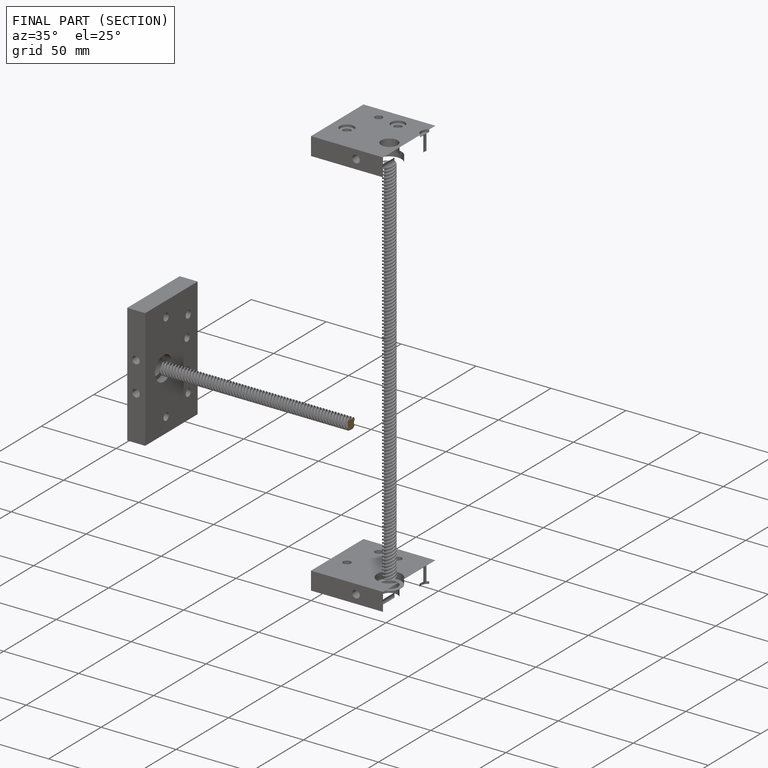
[diagram: finished part — half-section view (interior)]
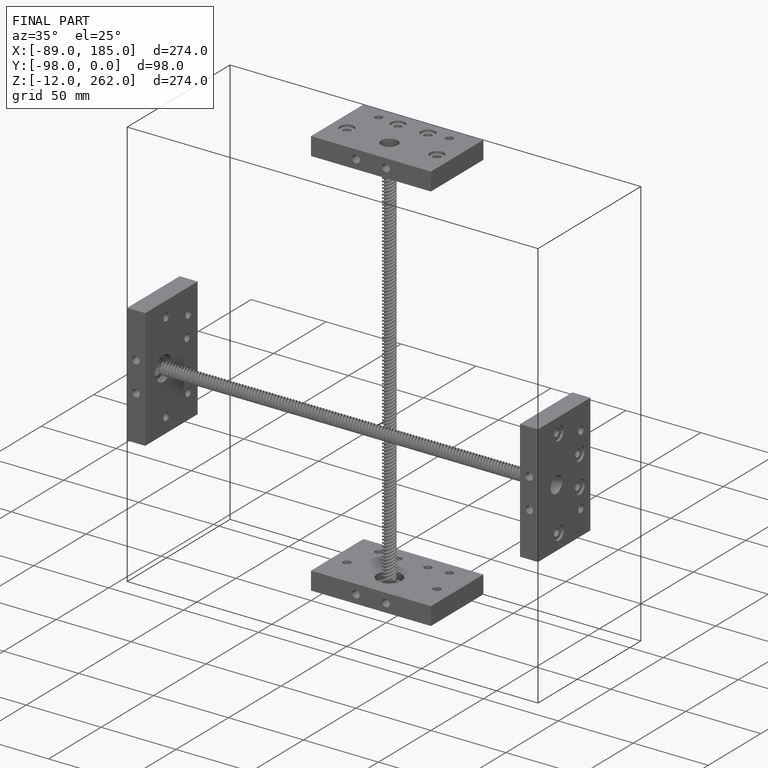
[diagram: finished part — iso view with bounding-box wireframe]
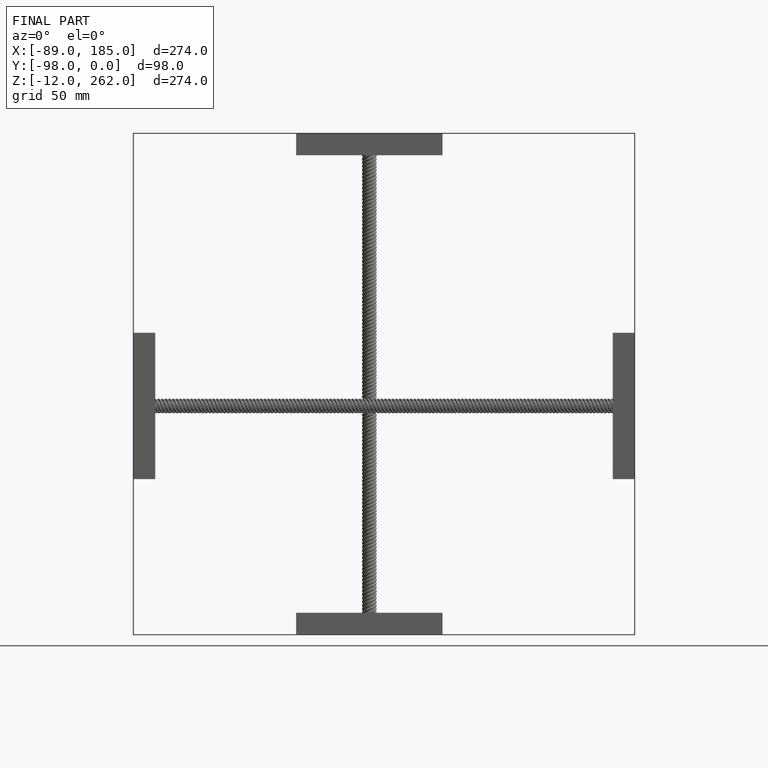
[diagram: finished part — front view with bounding-box wireframe]
